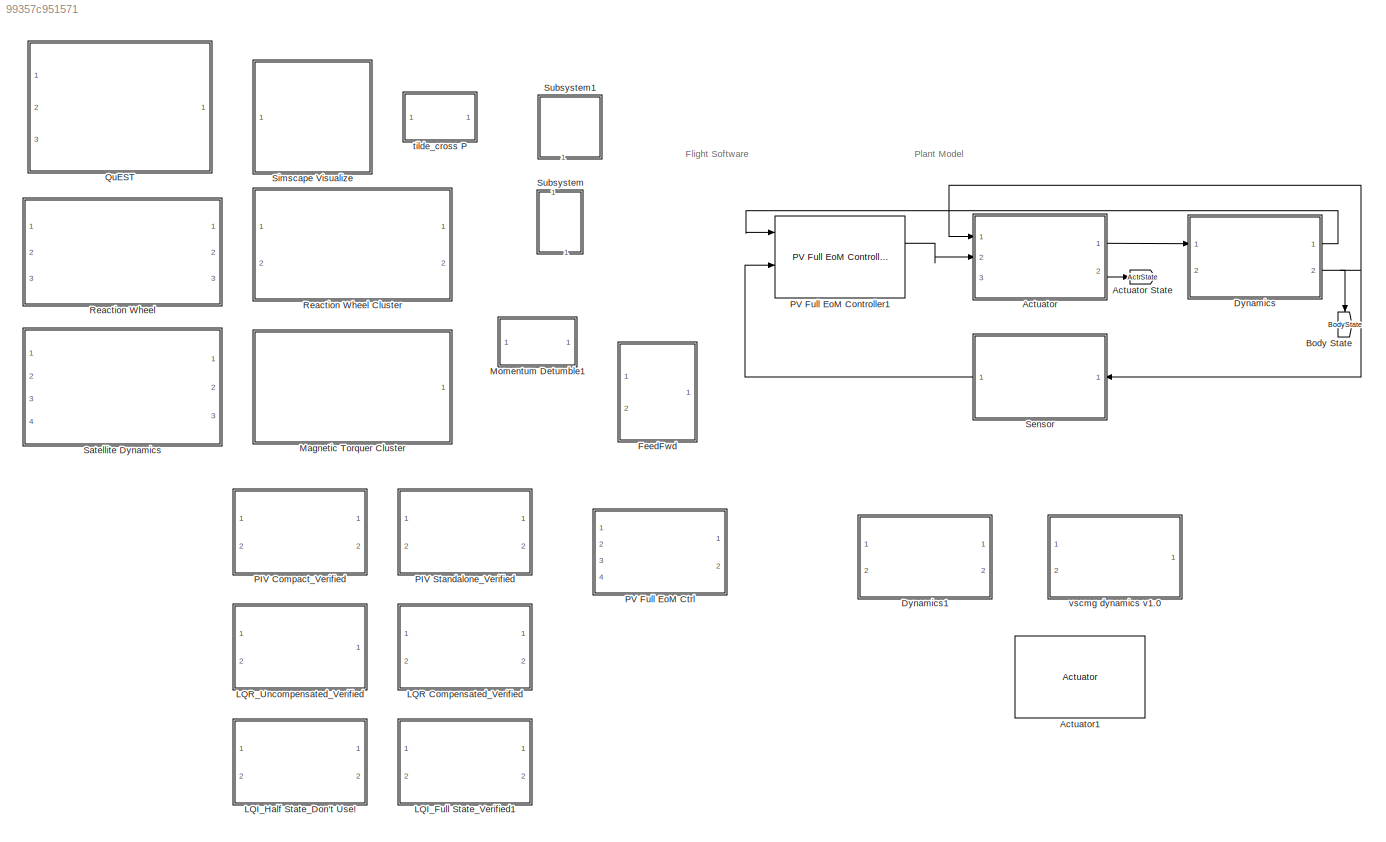
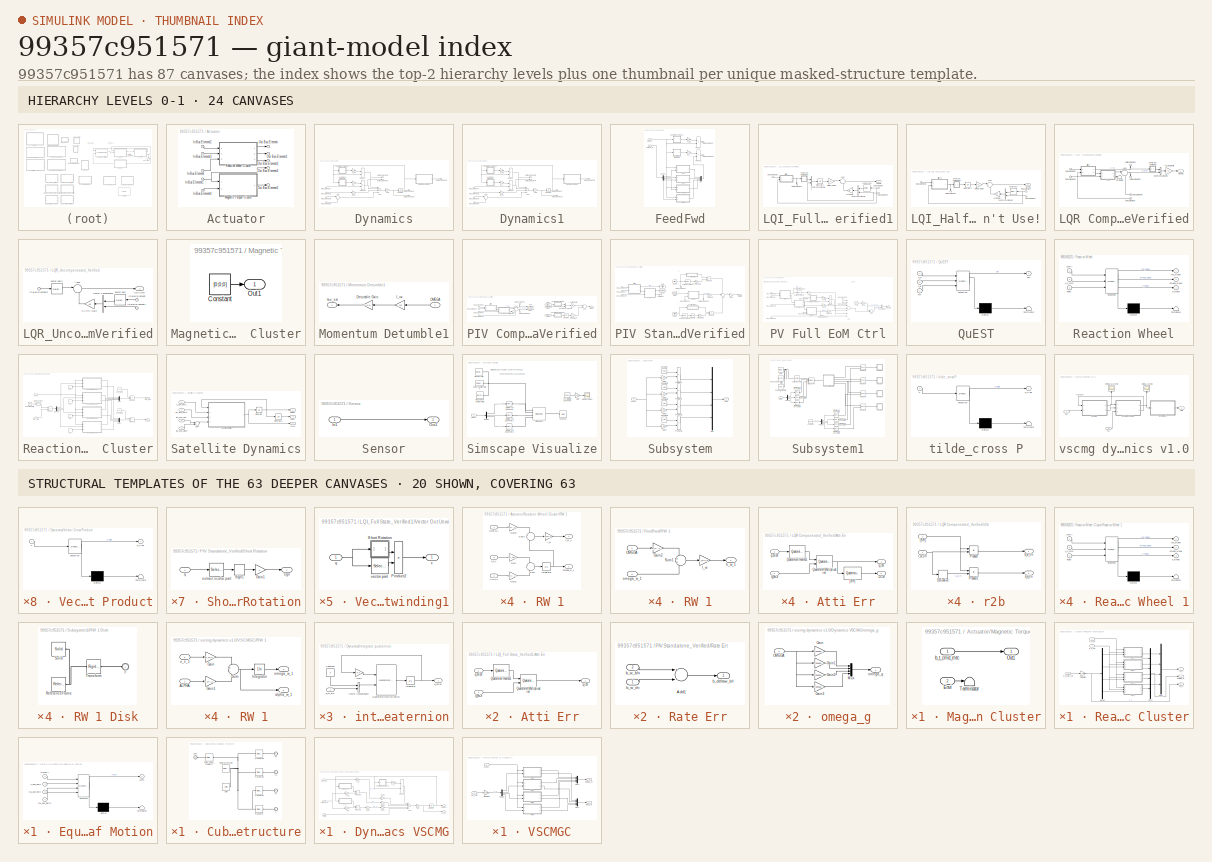
[diagram: thumbnail index - top-2 hierarchy levels (24 canvases) + 20 structural-template representatives of the remaining 63 canvases]
MODEL slx_99357c951571
KIND library
CONFIG AbsTol = auto
CONFIG EnableMultiTasking = off
CONFIG FixedStep = auto
CONFIG MaxStep = auto
CONFIG MinStep = auto
CONFIG RelTol = 1e-3
CONFIG SampleTimeConstraint = Unconstrained
CONFIG Solver = VariableStepAuto
CONFIG SolverName = VariableStepAuto
CONFIG StartTime = 0.0
CONFIG StopTime = 10.0
BLOCK [SubSystem] Actuator
  Ports = [3, 2]
  RequestExecContextInheritance = off
BLOCK [Goto] Actuator State
  GotoTag = ActrState
BLOCK [Inport] Actuator/In Bus Element
  IconDisplay = Port number
  Port = 2
BLOCK [Inport] Actuator/In Bus Element1
  IconDisplay = Port number
  Port = 2
BLOCK [Inport] Actuator/In Bus Element2
  IconDisplay = Port number
BLOCK [Inport] Actuator/In Bus Element3
  IconDisplay = Port number
BLOCK [Inport] Actuator/In Bus Element4
  IconDisplay = Port number
  Port = 3
BLOCK [SubSystem] Actuator/Magnetic Torquer Cluster
  Ports = [2, 1]
  RequestExecContextInheritance = off
BLOCK [Inport] Actuator/Magnetic Torquer Cluster/Envi
  IconDisplay = Port number
  Port = 2
BLOCK [Outport] Actuator/Magnetic Torquer Cluster/Out1
  IconDisplay = Port number
BLOCK [Terminator] Actuator/Magnetic Torquer Cluster/Terminator
BLOCK [Inport] Actuator/Magnetic Torquer Cluster/b_t_cmd_mtc
  IconDisplay = Port number
BLOCK [Outport] Actuator/Out Bus Element
  IconDisplay = Port number
BLOCK [Outport] Actuator/Out Bus Element1
  IconDisplay = Port number
BLOCK [Outport] Actuator/Out Bus Element2
  IconDisplay = Port number
BLOCK [Outport] Actuator/Out Bus Element3
  IconDisplay = Port number
  Port = 2
BLOCK [Outport] Actuator/Out Bus Element4
  IconDisplay = Port number
  Port = 2
BLOCK [SubSystem] Actuator/Reaction Wheel Cluster
  Ports = [3, 3]
  RequestExecContextInheritance = off
BLOCK [Demux] Actuator/Reaction Wheel Cluster/Demux
  DisplayOption = bar
  Ports = [1, 4]
BLOCK [Gain] Actuator/Reaction Wheel Cluster/Distri Mtx2
  Gain = D_distri
  Multiplication = Matrix(K*u)
  OutDataTypeStr = Inherit: Inherit via internal rule
  ParamDataTypeStr = Inherit: Inherit via internal rule
  SaturateOnIntegerOverflow = off
BLOCK [Mux] Actuator/Reaction Wheel Cluster/Mux1
  DisplayOption = bar
  Ports = [4, 1]
BLOCK [Mux] Actuator/Reaction Wheel Cluster/Mux2
  DisplayOption = bar
  Ports = [4, 1]
BLOCK [SubSystem] Actuator/Reaction Wheel Cluster/RW 1
  Ports = [3, 2]
  RequestExecContextInheritance = off
BLOCK [Inport] Actuator/Reaction Wheel Cluster/RW 1/ALPHA
  IconDisplay = Port number
  Port = 2
BLOCK [Gain] Actuator/Reaction Wheel Cluster/RW 1/Gain
  Gain = 1/I_w(1,1)
  OutDataTypeStr = Inherit: Inherit via internal rule
  ParamDataTypeStr = Inherit: Inherit via internal rule
  SaturateOnIntegerOverflow = off
BLOCK [Gain] Actuator/Reaction Wheel Cluster/RW 1/Gain1
  Gain = G_s(:,1).'
  Multiplication = Matrix(K*u)
  OutDataTypeStr = Inherit: Inherit via internal rule
  ParamDataTypeStr = Inherit: Inherit via internal rule
  SaturateOnIntegerOverflow = off
BLOCK [Gain] Actuator/Reaction Wheel Cluster/RW 1/Gain2
  Gain = G_s(:,1).'
  Multiplication = Matrix(K*u)
  OutDataTypeStr = Inherit: Inherit via internal rule
  ParamDataTypeStr = Inherit: Inherit via internal rule
  SaturateOnIntegerOverflow = off
BLOCK [Gain] Actuator/Reaction Wheel Cluster/RW 1/I_w
  Gain = I_w(1,1)
  OutDataTypeStr = Inherit: Inherit via internal rule
  ParamDataTypeStr = Inherit: Inherit via internal rule
  SaturateOnIntegerOverflow = off
BLOCK [Integrator] Actuator/Reaction Wheel Cluster/RW 1/Integrator
  Ports = [1, 1]
BLOCK [Inport] Actuator/Reaction Wheel Cluster/RW 1/OMEGA
  IconDisplay = Port number
BLOCK [Sum] Actuator/Reaction Wheel Cluster/RW 1/Sum
  IconShape = round
  InputSameDT = off
  Inputs = +-
  OutDataTypeStr = Inherit: Inherit via internal rule
  Ports = [2, 1]
  SaturateOnIntegerOverflow = off
BLOCK [Sum] Actuator/Reaction Wheel Cluster/RW 1/Sum1
  IconShape = round
  InputSameDT = off
  OutDataTypeStr = Inherit: Inherit via internal rule
  Ports = [2, 1]
  SaturateOnIntegerOverflow = off
BLOCK [Outport] Actuator/Reaction Wheel Cluster/RW 1/h_w_1
  IconDisplay = Port number
BLOCK [Outport] Actuator/Reaction Wheel Cluster/RW 1/omega_w_1
  IconDisplay = Port number
  Port = 2
BLOCK [Inport] Actuator/Reaction Wheel Cluster/RW 1/u_s_1
  IconDisplay = Port number
  Port = 3
BLOCK [SubSystem] Actuator/Reaction Wheel Cluster/RW 2
  Ports = [3, 2]
  RequestExecContextInheritance = off
BLOCK [Inport] Actuator/Reaction Wheel Cluster/RW 2/ALPHA
  IconDisplay = Port number
  Port = 2
BLOCK [Gain] Actuator/Reaction Wheel Cluster/RW 2/Gain
  Gain = 1/I_w(1,2)
  OutDataTypeStr = Inherit: Inherit via internal rule
  ParamDataTypeStr = Inherit: Inherit via internal rule
  SaturateOnIntegerOverflow = off
BLOCK [Gain] Actuator/Reaction Wheel Cluster/RW 2/Gain1
  Gain = G_s(:,2).'
  Multiplication = Matrix(K*u)
  OutDataTypeStr = Inherit: Inherit via internal rule
  ParamDataTypeStr = Inherit: Inherit via internal rule
  SaturateOnIntegerOverflow = off
BLOCK [Gain] Actuator/Reaction Wheel Cluster/RW 2/Gain2
  Gain = G_s(:,2).'
  Multiplication = Matrix(K*u)
  OutDataTypeStr = Inherit: Inherit via internal rule
  ParamDataTypeStr = Inherit: Inherit via internal rule
  SaturateOnIntegerOverflow = off
BLOCK [Gain] Actuator/Reaction Wheel Cluster/RW 2/I_w
  Gain = I_w(1,2)
  OutDataTypeStr = Inherit: Inherit via internal rule
  ParamDataTypeStr = Inherit: Inherit via internal rule
  SaturateOnIntegerOverflow = off
BLOCK [Integrator] Actuator/Reaction Wheel Cluster/RW 2/Integrator
  Ports = [1, 1]
BLOCK [Inport] Actuator/Reaction Wheel Cluster/RW 2/OMEGA
  IconDisplay = Port number
BLOCK [Sum] Actuator/Reaction Wheel Cluster/RW 2/Sum
  IconShape = round
  InputSameDT = off
  Inputs = +-
  OutDataTypeStr = Inherit: Inherit via internal rule
  Ports = [2, 1]
  SaturateOnIntegerOverflow = off
BLOCK [Sum] Actuator/Reaction Wheel Cluster/RW 2/Sum1
  IconShape = round
  InputSameDT = off
  OutDataTypeStr = Inherit: Inherit via internal rule
  Ports = [2, 1]
  SaturateOnIntegerOverflow = off
BLOCK [Outport] Actuator/Reaction Wheel Cluster/RW 2/h_w_2
  IconDisplay = Port number
BLOCK [Outport] Actuator/Reaction Wheel Cluster/RW 2/omega_w_2
  IconDisplay = Port number
  Port = 2
BLOCK [Inport] Actuator/Reaction Wheel Cluster/RW 2/u_s_2
  IconDisplay = Port number
  Port = 3
BLOCK [SubSystem] Actuator/Reaction Wheel Cluster/RW 3
  Ports = [3, 2]
  RequestExecContextInheritance = off
BLOCK [Inport] Actuator/Reaction Wheel Cluster/RW 3/ALPHA
  IconDisplay = Port number
  Port = 2
BLOCK [Gain] Actuator/Reaction Wheel Cluster/RW 3/Gain
  Gain = 1/I_w(1,3)
  OutDataTypeStr = Inherit: Inherit via internal rule
  ParamDataTypeStr = Inherit: Inherit via internal rule
  SaturateOnIntegerOverflow = off
BLOCK [Gain] Actuator/Reaction Wheel Cluster/RW 3/Gain1
  Gain = G_s(:,3).'
  Multiplication = Matrix(K*u)
  OutDataTypeStr = Inherit: Inherit via internal rule
  ParamDataTypeStr = Inherit: Inherit via internal rule
  SaturateOnIntegerOverflow = off
BLOCK [Gain] Actuator/Reaction Wheel Cluster/RW 3/Gain2
  Gain = G_s(:,3).'
  Multiplication = Matrix(K*u)
  OutDataTypeStr = Inherit: Inherit via internal rule
  ParamDataTypeStr = Inherit: Inherit via internal rule
  SaturateOnIntegerOverflow = off
BLOCK [Gain] Actuator/Reaction Wheel Cluster/RW 3/I_w
  Gain = I_w(1,3)
  OutDataTypeStr = Inherit: Inherit via internal rule
  ParamDataTypeStr = Inherit: Inherit via internal rule
  SaturateOnIntegerOverflow = off
BLOCK [Integrator] Actuator/Reaction Wheel Cluster/RW 3/Integrator
  Ports = [1, 1]
BLOCK [Inport] Actuator/Reaction Wheel Cluster/RW 3/OMEGA
  IconDisplay = Port number
BLOCK [Sum] Actuator/Reaction Wheel Cluster/RW 3/Sum
  IconShape = round
  InputSameDT = off
  Inputs = +-
  OutDataTypeStr = Inherit: Inherit via internal rule
  Ports = [2, 1]
  SaturateOnIntegerOverflow = off
BLOCK [Sum] Actuator/Reaction Wheel Cluster/RW 3/Sum1
  IconShape = round
  InputSameDT = off
  OutDataTypeStr = Inherit: Inherit via internal rule
  Ports = [2, 1]
  SaturateOnIntegerOverflow = off
BLOCK [Outport] Actuator/Reaction Wheel Cluster/RW 3/h_w_3
  IconDisplay = Port number
BLOCK [Outport] Actuator/Reaction Wheel Cluster/RW 3/omega_w_3
  IconDisplay = Port number
  Port = 2
BLOCK [Inport] Actuator/Reaction Wheel Cluster/RW 3/u_s_3
  IconDisplay = Port number
  Port = 3
BLOCK [SubSystem] Actuator/Reaction Wheel Cluster/RW 4
  Ports = [3, 2]
  RequestExecContextInheritance = off
BLOCK [Inport] Actuator/Reaction Wheel Cluster/RW 4/ALPHA
  IconDisplay = Port number
  Port = 2
BLOCK [Gain] Actuator/Reaction Wheel Cluster/RW 4/Gain
  Gain = 1/I_w(1,4)
  OutDataTypeStr = Inherit: Inherit via internal rule
  ParamDataTypeStr = Inherit: Inherit via internal rule
  SaturateOnIntegerOverflow = off
BLOCK [Gain] Actuator/Reaction Wheel Cluster/RW 4/Gain1
  Gain = G_s(:,4).'
  Multiplication = Matrix(K*u)
  OutDataTypeStr = Inherit: Inherit via internal rule
  ParamDataTypeStr = Inherit: Inherit via internal rule
  SaturateOnIntegerOverflow = off
BLOCK [Gain] Actuator/Reaction Wheel Cluster/RW 4/Gain2
  Gain = G_s(:,4).'
  Multiplication = Matrix(K*u)
  OutDataTypeStr = Inherit: Inherit via internal rule
  ParamDataTypeStr = Inherit: Inherit via internal rule
  SaturateOnIntegerOverflow = off
BLOCK [Gain] Actuator/Reaction Wheel Cluster/RW 4/I_w
  Gain = I_w(1,4)
  OutDataTypeStr = Inherit: Inherit via internal rule
  ParamDataTypeStr = Inherit: Inherit via internal rule
  SaturateOnIntegerOverflow = off
BLOCK [Integrator] Actuator/Reaction Wheel Cluster/RW 4/Integrator
  Ports = [1, 1]
BLOCK [Inport] Actuator/Reaction Wheel Cluster/RW 4/OMEGA
  IconDisplay = Port number
BLOCK [Sum] Actuator/Reaction Wheel Cluster/RW 4/Sum
  IconShape = round
  InputSameDT = off
  Inputs = +-
  OutDataTypeStr = Inherit: Inherit via internal rule
  Ports = [2, 1]
  SaturateOnIntegerOverflow = off
BLOCK [Sum] Actuator/Reaction Wheel Cluster/RW 4/Sum1
  IconShape = round
  InputSameDT = off
  OutDataTypeStr = Inherit: Inherit via internal rule
  Ports = [2, 1]
  SaturateOnIntegerOverflow = off
BLOCK [Outport] Actuator/Reaction Wheel Cluster/RW 4/h_w_4
  IconDisplay = Port number
BLOCK [Outport] Actuator/Reaction Wheel Cluster/RW 4/omega_w_4
  IconDisplay = Port number
  Port = 2
BLOCK [Inport] Actuator/Reaction Wheel Cluster/RW 4/u_s_4
  IconDisplay = Port number
  Port = 3
BLOCK [Inport] Actuator/Reaction Wheel Cluster/b_a_b//n
  IconDisplay = Port number
  Port = 2
BLOCK [Inport] Actuator/Reaction Wheel Cluster/b_t_cmd_rwc
  IconDisplay = Port number
  Port = 3
BLOCK [Inport] Actuator/Reaction Wheel Cluster/b_w_b//n
  IconDisplay = Port number
BLOCK [Outport] Actuator/Reaction Wheel Cluster/h_s
  IconDisplay = Port number
BLOCK [Outport] Actuator/Reaction Wheel Cluster/omega_w
  IconDisplay = Port number
  Port = 3
BLOCK [Outport] Actuator/Reaction Wheel Cluster/u_s
  IconDisplay = Port number
  Port = 2
BLOCK [Reference] Actuator1  REF=$bdroot/Actuator
  Ports = [3, 2]
  SourceBlock = $bdroot/Actuator
  SourceType = SubSystem
BLOCK [Goto] Body State
  GotoTag = BodyState
BLOCK [SubSystem] Dynamics
  Ports = [2, 2]
  RequestExecContextInheritance = off
BLOCK [Sum] Dynamics/Add
  IconShape = round
  InputSameDT = off
  Inputs = |++
  OutDataTypeStr = Inherit: Inherit via internal rule
  Ports = [2, 1]
  SaturateOnIntegerOverflow = off
BLOCK [Gain] Dynamics/G_s
  Gain = G_s
  Multiplication = Matrix(u*K)
  OutDataTypeStr = Inherit: Inherit via internal rule
  ParamDataTypeStr = Inherit: Inherit via internal rule
  SaturateOnIntegerOverflow = off
BLOCK [Gain] Dynamics/Gain
  Gain = inv(I_rw)
  Multiplication = Matrix(K*u)
  OutDataTypeStr = Inherit: Inherit via internal rule
  ParamDataTypeStr = Inherit: Inherit via internal rule
  SaturateOnIntegerOverflow = off
BLOCK [Gain] Dynamics/Gain1
  Gain = G_s
  Multiplication = Matrix(K*u)
  OutDataTypeStr = Inherit: Inherit via internal rule
  ParamDataTypeStr = Inherit: Inherit via internal rule
  SaturateOnIntegerOverflow = off
BLOCK [Gain] Dynamics/I_RW
  Gain = I_rw
  Multiplication = Matrix(u*K)
  OutDataTypeStr = Inherit: Inherit via internal rule
  ParamDataTypeStr = Inherit: Inherit via internal rule
  SaturateOnIntegerOverflow = off
BLOCK [Inport] Dynamics/In Bus Element
  IconDisplay = Port number
BLOCK [Inport] Dynamics/In Bus Element1
  IconDisplay = Port number
BLOCK [Inport] Dynamics/In Bus Element2
  IconDisplay = Port number
  Port = 2
BLOCK [Inport] Dynamics/In Bus Element3
  IconDisplay = Port number
BLOCK [Integrator] Dynamics/Integrator
  InitialCondition = OMEGA_0
  Ports = [1, 1]
BLOCK [Outport] Dynamics/Out Bus Element
  IconDisplay = Port number
  Port = 2
BLOCK [Outport] Dynamics/Out Bus Element1
  IconDisplay = Port number
  Port = 2
BLOCK [Outport] Dynamics/Out Bus Element2
  IconDisplay = Port number
  Port = 2
BLOCK [Outport] Dynamics/Out Bus Element3
  IconDisplay = Port number
BLOCK [Outport] Dynamics/Out Bus Element4
  IconDisplay = Port number
BLOCK [Product] Dynamics/Product
  InputSameDT = off
  Multiplication = Matrix(*)
  OutDataTypeStr = Inherit: Inherit via internal rule
  Ports = [2, 1]
  RndMeth = Floor
  SaturateOnIntegerOverflow = off
BLOCK [Product] Dynamics/Product1
  InputSameDT = off
  Multiplication = Matrix(*)
  OutDataTypeStr = Inherit: Inherit via internal rule
  Ports = [2, 1]
  RndMeth = Floor
  SaturateOnIntegerOverflow = off
BLOCK [Sum] Dynamics/Sum
  InputSameDT = off
  Inputs = ---+
  OutDataTypeStr = Inherit: Inherit via internal rule
  Ports = [4, 1]
  SaturateOnIntegerOverflow = off
BLOCK [SubSystem] Dynamics/Vector Cross Product
  ErrorFcn = Stateflow.Translate.translate
  PermitHierarchicalResolution = ExplicitOnly
  Ports = [1, 1]
  RequestExecContextInheritance = off
  SFBlockType = MATLAB Function
  TreatAsAtomicUnit = on
BLOCK [Demux] Dynamics/Vector Cross Product/ Demux 
  Outputs = 1
  Ports = [1, 1]
BLOCK [S-Function] Dynamics/Vector Cross Product/ SFunction 
  EnableBusSupport = on
  FunctionName = sf_sfun
  PortCounts = [1 2]
  Ports = [1, 2]
  SFcnIsStateOwnerBlock = off
  SFunctionDeploymentMode = off
  Tag = Stateflow S-Function ADCS_lib 10
BLOCK [Terminator] Dynamics/Vector Cross Product/ Terminator 
BLOCK [Inport] Dynamics/Vector Cross Product/u
  IconDisplay = Port number
BLOCK [Outport] Dynamics/Vector Cross Product/u_tilde
  IconDisplay = Port number
BLOCK [SubSystem] Dynamics/Vector Cross Product1
  ErrorFcn = Stateflow.Translate.translate
  PermitHierarchicalResolution = ExplicitOnly
  Ports = [1, 1]
  RequestExecContextInheritance = off
  SFBlockType = MATLAB Function
  TreatAsAtomicUnit = on
BLOCK [Demux] Dynamics/Vector Cross Product1/ Demux 
  Outputs = 1
  Ports = [1, 1]
BLOCK [S-Function] Dynamics/Vector Cross Product1/ SFunction 
  EnableBusSupport = on
  FunctionName = sf_sfun
  PortCounts = [1 2]
  Ports = [1, 2]
  SFcnIsStateOwnerBlock = off
  SFunctionDeploymentMode = off
  Tag = Stateflow S-Function ADCS_lib 11
BLOCK [Terminator] Dynamics/Vector Cross Product1/ Terminator 
BLOCK [Inport] Dynamics/Vector Cross Product1/u
  IconDisplay = Port number
BLOCK [Outport] Dynamics/Vector Cross Product1/u_tilde
  IconDisplay = Port number
BLOCK [SubSystem] Dynamics/integrate quaternion
  Ports = [1, 1]
  RequestExecContextInheritance = off
BLOCK [Constant] Dynamics/integrate quaternion/Constant
  Value = 0
BLOCK [Gain] Dynamics/integrate quaternion/Gain
  Gain = 0.5
  OutDataTypeStr = Inherit: Inherit via internal rule
  ParamDataTypeStr = Inherit: Inherit via internal rule
  SaturateOnIntegerOverflow = off
BLOCK [Integrator] Dynamics/integrate quaternion/Integrator
  InitialCondition = quat_0
  Ports = [1, 1]
BLOCK [Reference] Dynamics/integrate quaternion/Quaternion Multiplication  REF=aerolibutil/Quaternion
Multiplication
  Ports = [2, 1]
  SourceBlock = aerolibutil/Quaternion\nMultiplication
  SourceProductBaseCode = AE
  SourceProductName = Aerospace Blockset
  SourceType = Quaternion Multiplication
BLOCK [Concatenate] Dynamics/integrate quaternion/Vector Concatenate
  Ports = [2, 1]
BLOCK [Inport] Dynamics/integrate quaternion/b_w_b//n
  IconDisplay = Port number
BLOCK [Outport] Dynamics/integrate quaternion/q_eci2b
  IconDisplay = Port number
BLOCK [SubSystem] Dynamics1
  AncestorBlock = ADCS_lib/Dynamics
  Ports = [2, 2]
  RequestExecContextInheritance = off
BLOCK [Sum] Dynamics1/Add
  IconShape = round
  InputSameDT = off
  Inputs = |++
  OutDataTypeStr = Inherit: Inherit via internal rule
  Ports = [2, 1]
  SaturateOnIntegerOverflow = off
BLOCK [Gain] Dynamics1/G_s
  Gain = G_s
  Multiplication = Matrix(u*K)
  OutDataTypeStr = Inherit: Inherit via internal rule
  ParamDataTypeStr = Inherit: Inherit via internal rule
  SaturateOnIntegerOverflow = off
BLOCK [Gain] Dynamics1/Gain
  Gain = inv(I_rw)
  Multiplication = Matrix(K*u)
  OutDataTypeStr = Inherit: Inherit via internal rule
  ParamDataTypeStr = Inherit: Inherit via internal rule
  SaturateOnIntegerOverflow = off
BLOCK [Gain] Dynamics1/Gain1
  Gain = G_s
  Multiplication = Matrix(K*u)
  OutDataTypeStr = Inherit: Inherit via internal rule
  ParamDataTypeStr = Inherit: Inherit via internal rule
  SaturateOnIntegerOverflow = off
BLOCK [Gain] Dynamics1/I_RW
  Gain = I_rw
  Multiplication = Matrix(u*K)
  OutDataTypeStr = Inherit: Inherit via internal rule
  ParamDataTypeStr = Inherit: Inherit via internal rule
  SaturateOnIntegerOverflow = off
BLOCK [Inport] Dynamics1/In Bus Element
  IconDisplay = Port number
BLOCK [Inport] Dynamics1/In Bus Element1
  IconDisplay = Port number
BLOCK [Inport] Dynamics1/In Bus Element2
  IconDisplay = Port number
  Port = 2
BLOCK [Inport] Dynamics1/In Bus Element3
  IconDisplay = Port number
BLOCK [Integrator] Dynamics1/Integrator
  InitialCondition = OMEGA_0
  Ports = [1, 1]
BLOCK [Outport] Dynamics1/Out Bus Element
  IconDisplay = Port number
  Port = 2
BLOCK [Outport] Dynamics1/Out Bus Element1
  IconDisplay = Port number
  Port = 2
BLOCK [Outport] Dynamics1/Out Bus Element2
  IconDisplay = Port number
  Port = 2
BLOCK [Outport] Dynamics1/Out Bus Element3
  IconDisplay = Port number
BLOCK [Outport] Dynamics1/Out Bus Element4
  IconDisplay = Port number
BLOCK [Product] Dynamics1/Product
  InputSameDT = off
  Multiplication = Matrix(*)
  OutDataTypeStr = Inherit: Inherit via internal rule
  Ports = [2, 1]
  RndMeth = Floor
  SaturateOnIntegerOverflow = off
BLOCK [Product] Dynamics1/Product1
  InputSameDT = off
  Multiplication = Matrix(*)
  OutDataTypeStr = Inherit: Inherit via internal rule
  Ports = [2, 1]
  RndMeth = Floor
  SaturateOnIntegerOverflow = off
BLOCK [Sum] Dynamics1/Sum
  InputSameDT = off
  Inputs = ---+
  OutDataTypeStr = Inherit: Inherit via internal rule
  Ports = [4, 1]
  SaturateOnIntegerOverflow = off
BLOCK [SubSystem] Dynamics1/Vector Cross Product
  ErrorFcn = Stateflow.Translate.translate
  PermitHierarchicalResolution = ExplicitOnly
  Ports = [1, 1]
  RequestExecContextInheritance = off
  SFBlockType = MATLAB Function
  TreatAsAtomicUnit = on
BLOCK [Demux] Dynamics1/Vector Cross Product/ Demux 
  Outputs = 1
  Ports = [1, 1]
BLOCK [S-Function] Dynamics1/Vector Cross Product/ SFunction 
  EnableBusSupport = off
  FunctionName = sf_sfun
  PortCounts = [1 2]
  Ports = [1, 2]
  SFcnIsStateOwnerBlock = off
  SFunctionDeploymentMode = off
  Tag = Stateflow S-Function ADCS_lib 9
BLOCK [Terminator] Dynamics1/Vector Cross Product/ Terminator 
BLOCK [Inport] Dynamics1/Vector Cross Product/u
  IconDisplay = Port number
BLOCK [Outport] Dynamics1/Vector Cross Product/u_tilde
  IconDisplay = Port number
BLOCK [SubSystem] Dynamics1/Vector Cross Product1
  ErrorFcn = Stateflow.Translate.translate
  PermitHierarchicalResolution = ExplicitOnly
  Ports = [1, 1]
  RequestExecContextInheritance = off
  SFBlockType = MATLAB Function
  TreatAsAtomicUnit = on
BLOCK [Demux] Dynamics1/Vector Cross Product1/ Demux 
  Outputs = 1
  Ports = [1, 1]
BLOCK [S-Function] Dynamics1/Vector Cross Product1/ SFunction 
  EnableBusSupport = off
  FunctionName = sf_sfun
  PortCounts = [1 2]
  Ports = [1, 2]
  SFcnIsStateOwnerBlock = off
  SFunctionDeploymentMode = off
  Tag = Stateflow S-Function ADCS_lib 12
BLOCK [Terminator] Dynamics1/Vector Cross Product1/ Terminator 
BLOCK [Inport] Dynamics1/Vector Cross Product1/u
  IconDisplay = Port number
BLOCK [Outport] Dynamics1/Vector Cross Product1/u_tilde
  IconDisplay = Port number
BLOCK [SubSystem] Dynamics1/integrate quaternion
  Ports = [1, 1]
  RequestExecContextInheritance = off
BLOCK [Constant] Dynamics1/integrate quaternion/Constant
  Value = 0
BLOCK [Gain] Dynamics1/integrate quaternion/Gain
  Gain = 0.5
  OutDataTypeStr = Inherit: Inherit via internal rule
  ParamDataTypeStr = Inherit: Inherit via internal rule
  SaturateOnIntegerOverflow = off
BLOCK [Integrator] Dynamics1/integrate quaternion/Integrator
  InitialCondition = quat_0
  Ports = [1, 1]
BLOCK [Reference] Dynamics1/integrate quaternion/Quaternion Multiplication  REF=aerolibutil/Quaternion
Multiplication
  Ports = [2, 1]
  SourceBlock = aerolibutil/Quaternion\nMultiplication
  SourceProductBaseCode = AE
  SourceProductName = Aerospace Blockset
  SourceType = Quaternion Multiplication
BLOCK [Concatenate] Dynamics1/integrate quaternion/Vector Concatenate
  Ports = [2, 1]
BLOCK [Inport] Dynamics1/integrate quaternion/b_w_b//n
  IconDisplay = Port number
BLOCK [Outport] Dynamics1/integrate quaternion/q_eci2b
  IconDisplay = Port number
BLOCK [SubSystem] FeedFwd
  Ports = [2, 1]
  RequestExecContextInheritance = off
BLOCK [Demux] FeedFwd/Demux
  DisplayOption = bar
  Ports = [1, 4]
BLOCK [Gain] FeedFwd/G_s
  Gain = G_s
  Multiplication = Matrix(u*K)
  OutDataTypeStr = Inherit: Inherit via internal rule
  ParamDataTypeStr = Inherit: Inherit via internal rule
  SaturateOnIntegerOverflow = off
BLOCK [Gain] FeedFwd/I_RW
  Gain = I_rw
  Multiplication = Matrix(u*K)
  OutDataTypeStr = Inherit: Inherit via internal rule
  ParamDataTypeStr = Inherit: Inherit via internal rule
  SaturateOnIntegerOverflow = off
BLOCK [Mux] FeedFwd/Mux
  DisplayOption = bar
  Ports = [4, 1]
BLOCK [Inport] FeedFwd/OMEGA
  IconDisplay = Port number
BLOCK [Outport] FeedFwd/Out Bus Element
  IconDisplay = Port number
BLOCK [Outport] FeedFwd/Out Bus Element1
  IconDisplay = Port number
BLOCK [Product] FeedFwd/Product
  InputSameDT = off
  Multiplication = Matrix(*)
  OutDataTypeStr = Inherit: Inherit via internal rule
  Ports = [2, 1]
  RndMeth = Floor
  SaturateOnIntegerOverflow = off
BLOCK [Product] FeedFwd/Product1
  InputSameDT = off
  Multiplication = Matrix(*)
  OutDataTypeStr = Inherit: Inherit via internal rule
  Ports = [2, 1]
  RndMeth = Floor
  SaturateOnIntegerOverflow = off
BLOCK [SubSystem] FeedFwd/RW 1
  Ports = [2, 1]
  RequestExecContextInheritance = off
BLOCK [Gain] FeedFwd/RW 1/Gain2
  Gain = G_s(:,1).'
  Multiplication = Matrix(K*u)
  OutDataTypeStr = Inherit: Inherit via internal rule
  ParamDataTypeStr = Inherit: Inherit via internal rule
  SaturateOnIntegerOverflow = off
BLOCK [Gain] FeedFwd/RW 1/I_w
  Gain = I_w(1,1)
  OutDataTypeStr = Inherit: Inherit via internal rule
  ParamDataTypeStr = Inherit: Inherit via internal rule
  SaturateOnIntegerOverflow = off
BLOCK [Inport] FeedFwd/RW 1/OMEGA
  IconDisplay = Port number
BLOCK [Sum] FeedFwd/RW 1/Sum1
  IconShape = round
  InputSameDT = off
  OutDataTypeStr = Inherit: Inherit via internal rule
  Ports = [2, 1]
  SaturateOnIntegerOverflow = off
BLOCK [Outport] FeedFwd/RW 1/h_w_1
  IconDisplay = Port number
BLOCK [Inport] FeedFwd/RW 1/omega_w_1
  IconDisplay = Port number
  Port = 2
BLOCK [SubSystem] FeedFwd/RW 2
  Ports = [2, 1]
  RequestExecContextInheritance = off
BLOCK [Gain] FeedFwd/RW 2/Gain2
  Gain = G_s(:,1).'
  Multiplication = Matrix(K*u)
  OutDataTypeStr = Inherit: Inherit via internal rule
  ParamDataTypeStr = Inherit: Inherit via internal rule
  SaturateOnIntegerOverflow = off
BLOCK [Gain] FeedFwd/RW 2/I_w
  Gain = I_w(1,1)
  OutDataTypeStr = Inherit: Inherit via internal rule
  ParamDataTypeStr = Inherit: Inherit via internal rule
  SaturateOnIntegerOverflow = off
BLOCK [Inport] FeedFwd/RW 2/OMEGA
  IconDisplay = Port number
BLOCK [Sum] FeedFwd/RW 2/Sum1
  IconShape = round
  InputSameDT = off
  OutDataTypeStr = Inherit: Inherit via internal rule
  Ports = [2, 1]
  SaturateOnIntegerOverflow = off
BLOCK [Outport] FeedFwd/RW 2/h_w_1
  IconDisplay = Port number
BLOCK [Inport] FeedFwd/RW 2/omega_w_1
  IconDisplay = Port number
  Port = 2
BLOCK [SubSystem] FeedFwd/RW 3
  Ports = [2, 1]
  RequestExecContextInheritance = off
BLOCK [Gain] FeedFwd/RW 3/Gain2
  Gain = G_s(:,1).'
  Multiplication = Matrix(K*u)
  OutDataTypeStr = Inherit: Inherit via internal rule
  ParamDataTypeStr = Inherit: Inherit via internal rule
  SaturateOnIntegerOverflow = off
BLOCK [Gain] FeedFwd/RW 3/I_w
  Gain = I_w(1,1)
  OutDataTypeStr = Inherit: Inherit via internal rule
  ParamDataTypeStr = Inherit: Inherit via internal rule
  SaturateOnIntegerOverflow = off
BLOCK [Inport] FeedFwd/RW 3/OMEGA
  IconDisplay = Port number
BLOCK [Sum] FeedFwd/RW 3/Sum1
  IconShape = round
  InputSameDT = off
  OutDataTypeStr = Inherit: Inherit via internal rule
  Ports = [2, 1]
  SaturateOnIntegerOverflow = off
BLOCK [Outport] FeedFwd/RW 3/h_w_1
  IconDisplay = Port number
BLOCK [Inport] FeedFwd/RW 3/omega_w_1
  IconDisplay = Port number
  Port = 2
BLOCK [SubSystem] FeedFwd/RW 4
  Ports = [2, 1]
  RequestExecContextInheritance = off
BLOCK [Gain] FeedFwd/RW 4/Gain2
  Gain = G_s(:,1).'
  Multiplication = Matrix(K*u)
  OutDataTypeStr = Inherit: Inherit via internal rule
  ParamDataTypeStr = Inherit: Inherit via internal rule
  SaturateOnIntegerOverflow = off
BLOCK [Gain] FeedFwd/RW 4/I_w
  Gain = I_w(1,1)
  OutDataTypeStr = Inherit: Inherit via internal rule
  ParamDataTypeStr = Inherit: Inherit via internal rule
  SaturateOnIntegerOverflow = off
BLOCK [Inport] FeedFwd/RW 4/OMEGA
  IconDisplay = Port number
BLOCK [Sum] FeedFwd/RW 4/Sum1
  IconShape = round
  InputSameDT = off
  OutDataTypeStr = Inherit: Inherit via internal rule
  Ports = [2, 1]
  SaturateOnIntegerOverflow = off
BLOCK [Outport] FeedFwd/RW 4/h_w_1
  IconDisplay = Port number
BLOCK [Inport] FeedFwd/RW 4/omega_w_1
  IconDisplay = Port number
  Port = 2
BLOCK [SubSystem] FeedFwd/Vector Cross Product
  ErrorFcn = Stateflow.Translate.translate
  PermitHierarchicalResolution = ExplicitOnly
  Ports = [1, 1]
  RequestExecContextInheritance = off
  SFBlockType = MATLAB Function
  TreatAsAtomicUnit = on
BLOCK [Demux] FeedFwd/Vector Cross Product/ Demux 
  Outputs = 1
  Ports = [1, 1]
BLOCK [S-Function] FeedFwd/Vector Cross Product/ SFunction 
  EnableBusSupport = on
  FunctionName = sf_sfun
  PortCounts = [1 2]
  Ports = [1, 2]
  SFcnIsStateOwnerBlock = off
  SFunctionDeploymentMode = off
  Tag = Stateflow S-Function ADCS_lib 13
BLOCK [Terminator] FeedFwd/Vector Cross Product/ Terminator 
BLOCK [Inport] FeedFwd/Vector Cross Product/u
  IconDisplay = Port number
BLOCK [Outport] FeedFwd/Vector Cross Product/u_tilde
  IconDisplay = Port number
BLOCK [SubSystem] FeedFwd/Vector Cross Product1
  ErrorFcn = Stateflow.Translate.translate
  PermitHierarchicalResolution = ExplicitOnly
  Ports = [1, 1]
  RequestExecContextInheritance = off
  SFBlockType = MATLAB Function
  TreatAsAtomicUnit = on
BLOCK [Demux] FeedFwd/Vector Cross Product1/ Demux 
  Outputs = 1
  Ports = [1, 1]
BLOCK [S-Function] FeedFwd/Vector Cross Product1/ SFunction 
  EnableBusSupport = on
  FunctionName = sf_sfun
  PortCounts = [1 2]
  Ports = [1, 2]
  SFcnIsStateOwnerBlock = off
  SFunctionDeploymentMode = off
  Tag = Stateflow S-Function ADCS_lib 15
BLOCK [Terminator] FeedFwd/Vector Cross Product1/ Terminator 
BLOCK [Inport] FeedFwd/Vector Cross Product1/u
  IconDisplay = Port number
BLOCK [Outport] FeedFwd/Vector Cross Product1/u_tilde
  IconDisplay = Port number
BLOCK [Inport] FeedFwd/omega_w
  IconDisplay = Port number
  Port = 2
BLOCK [SubSystem] LQI_Full State_Verified1
  AncestorBlock = ADCS_lib/Full EoM Controller
  Ports = [2, 2]
  RequestExecContextInheritance = off
BLOCK [Sum] LQI_Full State_Verified1/Add2
  IconShape = round
  InputSameDT = off
  Inputs = |+-
  OutDataTypeStr = Inherit: Inherit via internal rule
  Ports = [2, 1]
  SaturateOnIntegerOverflow = off
BLOCK [SubSystem] LQI_Full State_Verified1/Atti Err
  AncestorBlock = ADCS_lib/PIV/Atti Err
  Ports = [2, 1]
  RequestExecContextInheritance = off
BLOCK [Reference] LQI_Full State_Verified1/Atti Err/Quaternion Inverse1  REF=aerolibutil/Quaternion
Inverse
  Ports = [1, 1]
  SourceBlock = aerolibutil/Quaternion\nInverse
  SourceProductBaseCode = AE
  SourceProductName = Aerospace Blockset
  SourceType = Quaternion Inverse
BLOCK [Reference] LQI_Full State_Verified1/Atti Err/Quaternion Multiplication  REF=aerolibutil/Quaternion
Multiplication
  Ports = [2, 1]
  SourceBlock = aerolibutil/Quaternion\nMultiplication
  SourceProductBaseCode = AE
  SourceProductName = Aerospace Blockset
  SourceType = Quaternion Multiplication
BLOCK [Inport] LQI_Full State_Verified1/Atti Err/q_eci2b
  IconDisplay = Port number
  Port = 2
BLOCK [Inport] LQI_Full State_Verified1/Atti Err/q_eci2r
  IconDisplay = Port number
BLOCK [Outport] LQI_Full State_Verified1/Atti Err/q_r2b
  IconDisplay = Port number
BLOCK [Outport] LQI_Full State_Verified1/CtrlCmd
  IconDisplay = Port number
BLOCK [Inport] LQI_Full State_Verified1/In Bus Element
  IconDisplay = Port number
  Port = 2
BLOCK [Inport] LQI_Full State_Verified1/In Bus Element2
  IconDisplay = Port number
BLOCK [Inport] LQI_Full State_Verified1/In Bus Element7
  IconDisplay = Port number
  Port = 2
BLOCK [Integrator] LQI_Full State_Verified1/Integrator1
  Ports = [1, 1]
BLOCK [Gain] LQI_Full State_Verified1/Kc Ctrl Gain
  Gain = -Kc
  Multiplication = Matrix(K*u)
  OutDataTypeStr = Inherit: Inherit via internal rule
  ParamDataTypeStr = Inherit: Inherit via internal rule
  SaturateOnIntegerOverflow = off
BLOCK [Gain] LQI_Full State_Verified1/Ki Integral Gain
  Gain = Ki
  Multiplication = Matrix(K*u)
  OutDataTypeStr = Inherit: Inherit via internal rule
  ParamDataTypeStr = Inherit: Inherit via internal rule
  SaturateOnIntegerOverflow = off
BLOCK [Outport] LQI_Full State_Verified1/Out Bus Element
  IconDisplay = Port number
  Port = 2
BLOCK [Concatenate] LQI_Full State_Verified1/Vector Concatenate
  Ports = [2, 1]
BLOCK [Concatenate] LQI_Full State_Verified1/Vector Concatenate1
  Ports = [2, 1]
BLOCK [SubSystem] LQI_Full State_Verified1/Vector Out Unwinding1
  Ports = [1, 1]
  RequestExecContextInheritance = off
BLOCK [Product] LQI_Full State_Verified1/Vector Out Unwinding1/Product2
  InputSameDT = off
  OutDataTypeStr = Inherit: Inherit via internal rule
  Ports = [2, 1]
  RndMeth = Floor
  SaturateOnIntegerOverflow = off
BLOCK [SubSystem] LQI_Full State_Verified1/Vector Out Unwinding1/Short Rotation
  Ports = [1, 1]
  RequestExecContextInheritance = off
BLOCK [Gain] LQI_Full State_Verified1/Vector Out Unwinding1/Short Rotation/Gain1
  Gain = -1
  OutDataTypeStr = Inherit: Inherit via internal rule
  ParamDataTypeStr = Inherit: Inherit via internal rule
  SaturateOnIntegerOverflow = off
BLOCK [Signum] LQI_Full State_Verified1/Vector Out Unwinding1/Short Rotation/Sign1
BLOCK [Selector] LQI_Full State_Verified1/Vector Out Unwinding1/Short Rotation/extract scalar part
  IndexOptions = Index vector (dialog)
  Indices = [1]
  InputPortWidth = 4
  OutputSizes = 1
  Ports = [1, 1]
BLOCK [Inport] LQI_Full State_Verified1/Vector Out Unwinding1/Short Rotation/q
  IconDisplay = Port number
BLOCK [Outport] LQI_Full State_Verified1/Vector Out Unwinding1/Short Rotation/sgn
  IconDisplay = Port number
BLOCK [Inport] LQI_Full State_Verified1/Vector Out Unwinding1/q
  IconDisplay = Port number
BLOCK [Selector] LQI_Full State_Verified1/Vector Out Unwinding1/vector part
  IndexOptions = Index vector (dialog)
  Indices = [2 3 4]
  InputPortWidth = 4
  OutputSizes = 1
  Ports = [1, 1]
BLOCK [Outport] LQI_Full State_Verified1/Vector Out Unwinding1/ε
  IconDisplay = Port number
BLOCK [Selector] LQI_Full State_Verified1/vector part1
  IndexOptions = Index vector (dialog)
  Indices = [2 3 4]
  InputPortWidth = 4
  OutputSizes = 1
  Ports = [1, 1]
BLOCK [SubSystem] LQI_Half State_Don't Use!
  AncestorBlock = ADCS_lib/Full EoM Controller
  Ports = [2, 2]
  RequestExecContextInheritance = off
BLOCK [Sum] LQI_Half State_Don't Use!/Add2
  IconShape = round
  InputSameDT = off
  Inputs = |+-
  OutDataTypeStr = Inherit: Inherit via internal rule
  Ports = [2, 1]
  SaturateOnIntegerOverflow = off
BLOCK [SubSystem] LQI_Half State_Don't Use!/Atti Err1
  Ports = [2, 1]
  RequestExecContextInheritance = off
BLOCK [Reference] LQI_Half State_Don't Use!/Atti Err1/Quaternion Inverse1  REF=aerolibutil/Quaternion
Inverse
  Ports = [1, 1]
  SourceBlock = aerolibutil/Quaternion\nInverse
  SourceProductBaseCode = AE
  SourceProductName = Aerospace Blockset
  SourceType = Quaternion Inverse
BLOCK [Reference] LQI_Half State_Don't Use!/Atti Err1/Quaternion Multiplication  REF=aerolibutil/Quaternion
Multiplication
  Ports = [2, 1]
  SourceBlock = aerolibutil/Quaternion\nMultiplication
  SourceProductBaseCode = AE
  SourceProductName = Aerospace Blockset
  SourceType = Quaternion Multiplication
BLOCK [Inport] LQI_Half State_Don't Use!/Atti Err1/q_eci2b
  IconDisplay = Port number
  Port = 2
BLOCK [Inport] LQI_Half State_Don't Use!/Atti Err1/q_eci2r
  IconDisplay = Port number
BLOCK [Outport] LQI_Half State_Don't Use!/Atti Err1/q_r2b
  IconDisplay = Port number
BLOCK [Outport] LQI_Half State_Don't Use!/CtrlCmd
  IconDisplay = Port number
BLOCK [Inport] LQI_Half State_Don't Use!/In Bus Element
  IconDisplay = Port number
  Port = 2
BLOCK [Inport] LQI_Half State_Don't Use!/In Bus Element2
  IconDisplay = Port number
BLOCK [Inport] LQI_Half State_Don't Use!/In Bus Element7
  IconDisplay = Port number
  Port = 2
BLOCK [Integrator] LQI_Half State_Don't Use!/Integrator1
  Ports = [1, 1]
BLOCK [Gain] LQI_Half State_Don't Use!/Kc Ctrl Gain
  Gain = -Kc
  Multiplication = Matrix(K*u)
  OutDataTypeStr = Inherit: Inherit via internal rule
  ParamDataTypeStr = Inherit: Inherit via internal rule
  SaturateOnIntegerOverflow = off
BLOCK [Gain] LQI_Half State_Don't Use!/Ki Integral Gain
  Gain = Ki
  Multiplication = Matrix(K*u)
  OutDataTypeStr = Inherit: Inherit via internal rule
  ParamDataTypeStr = Inherit: Inherit via internal rule
  SaturateOnIntegerOverflow = off
BLOCK [Outport] LQI_Half State_Don't Use!/Out Bus Element
  IconDisplay = Port number
  Port = 2
BLOCK [Concatenate] LQI_Half State_Don't Use!/Vector Concatenate
  Ports = [2, 1]
BLOCK [SubSystem] LQI_Half State_Don't Use!/Vector Out Unwinding2
  Ports = [1, 1]
  RequestExecContextInheritance = off
BLOCK [Product] LQI_Half State_Don't Use!/Vector Out Unwinding2/Product2
  InputSameDT = off
  OutDataTypeStr = Inherit: Inherit via internal rule
  Ports = [2, 1]
  RndMeth = Floor
  SaturateOnIntegerOverflow = off
BLOCK [SubSystem] LQI_Half State_Don't Use!/Vector Out Unwinding2/Short Rotation
  Ports = [1, 1]
  RequestExecContextInheritance = off
BLOCK [Gain] LQI_Half State_Don't Use!/Vector Out Unwinding2/Short Rotation/Gain1
  Gain = -1
  OutDataTypeStr = Inherit: Inherit via internal rule
  ParamDataTypeStr = Inherit: Inherit via internal rule
  SaturateOnIntegerOverflow = off
BLOCK [Signum] LQI_Half State_Don't Use!/Vector Out Unwinding2/Short Rotation/Sign1
BLOCK [Selector] LQI_Half State_Don't Use!/Vector Out Unwinding2/Short Rotation/extract scalar part
  IndexOptions = Index vector (dialog)
  Indices = [1]
  InputPortWidth = 4
  OutputSizes = 1
  Ports = [1, 1]
BLOCK [Inport] LQI_Half State_Don't Use!/Vector Out Unwinding2/Short Rotation/q
  IconDisplay = Port number
BLOCK [Outport] LQI_Half State_Don't Use!/Vector Out Unwinding2/Short Rotation/sgn
  IconDisplay = Port number
BLOCK [Inport] LQI_Half State_Don't Use!/Vector Out Unwinding2/q
  IconDisplay = Port number
BLOCK [Selector] LQI_Half State_Don't Use!/Vector Out Unwinding2/vector part
  IndexOptions = Index vector (dialog)
  Indices = [2 3 4]
  InputPortWidth = 4
  OutputSizes = 1
  Ports = [1, 1]
BLOCK [Outport] LQI_Half State_Don't Use!/Vector Out Unwinding2/ε
  IconDisplay = Port number
BLOCK [Selector] LQI_Half State_Don't Use!/vector part
  IndexOptions = Index vector (dialog)
  Indices = [2 3 4]
  InputPortWidth = 4
  OutputSizes = 1
  Ports = [1, 1]
BLOCK [SubSystem] LQR Compensated_Verified
  AncestorBlock = ADCS_lib/PIV
  Ports = [2, 2]
  RequestExecContextInheritance = off
BLOCK [Sum] LQR Compensated_Verified/Add1
  IconShape = round
  InputSameDT = off
  Inputs = |-+
  OutDataTypeStr = Inherit: Inherit via internal rule
  Ports = [2, 1]
  SaturateOnIntegerOverflow = off
BLOCK [SubSystem] LQR Compensated_Verified/Atti Err
  Ports = [2, 2]
  RequestExecContextInheritance = off
BLOCK [Outport] LQR Compensated_Verified/Atti Err/DCM
  IconDisplay = Port number
  Port = 2
BLOCK [Reference] LQR Compensated_Verified/Atti Err/Quaternion Inverse1  REF=aerolibutil/Quaternion
Inverse
  Ports = [1, 1]
  SourceBlock = aerolibutil/Quaternion\nInverse
  SourceProductBaseCode = AE
  SourceProductName = Aerospace Blockset
  SourceType = Quaternion Inverse
BLOCK [Reference] LQR Compensated_Verified/Atti Err/Quaternion Multiplication  REF=aerolibutil/Quaternion
Multiplication
  Ports = [2, 1]
  SourceBlock = aerolibutil/Quaternion\nMultiplication
  SourceProductBaseCode = AE
  SourceProductName = Aerospace Blockset
  SourceType = Quaternion Multiplication
BLOCK [Reference] LQR Compensated_Verified/Atti Err/[BR]  REF=sharedtransform/Quaternions to 
Direction Cosine Matrix
  Ports = [1, 1]
  SourceBlock = sharedtransform/Quaternions to \nDirection Cosine Matrix
  SourceProductBaseCode = AE
  SourceProductName = Aerospace Blockset
  SourceType = Quaternion2DCM
BLOCK [Inport] LQR Compensated_Verified/Atti Err/q_eci2b
  IconDisplay = Port number
  Port = 2
BLOCK [Inport] LQR Compensated_Verified/Atti Err/q_eci2r
  IconDisplay = Port number
BLOCK [Outport] LQR Compensated_Verified/Atti Err/q_r2b
  IconDisplay = Port number
BLOCK [Outport] LQR Compensated_Verified/CtrlCmd
  IconDisplay = Port number
BLOCK [Inport] LQR Compensated_Verified/In Bus Element
  IconDisplay = Port number
  Port = 2
BLOCK [Inport] LQR Compensated_Verified/In Bus Element1
  IconDisplay = Port number
BLOCK [Inport] LQR Compensated_Verified/In Bus Element4
  IconDisplay = Port number
BLOCK [Inport] LQR Compensated_Verified/In Bus Element7
  IconDisplay = Port number
  Port = 2
BLOCK [Gain] LQR Compensated_Verified/Kc Ctrl Gain Mtx
  Gain = Kc
  Multiplication = Matrix(K*u)
  OutDataTypeStr = Inherit: Inherit via internal rule
  ParamDataTypeStr = Inherit: Inherit via internal rule
  SaturateOnIntegerOverflow = off
BLOCK [Outport] LQR Compensated_Verified/Out Bus Element
  IconDisplay = Port number
  Port = 2
BLOCK [Outport] LQR Compensated_Verified/Out Bus Element1
  IconDisplay = Port number
  Port = 2
BLOCK [Terminator] LQR Compensated_Verified/Terminator
BLOCK [Concatenate] LQR Compensated_Verified/Vector Concatenate
  Ports = [2, 1]
BLOCK [SubSystem] LQR Compensated_Verified/Vector Out Unwinding
  Ports = [1, 1]
  RequestExecContextInheritance = off
BLOCK [Product] LQR Compensated_Verified/Vector Out Unwinding/Product2
  InputSameDT = off
  OutDataTypeStr = Inherit: Inherit via internal rule
  Ports = [2, 1]
  RndMeth = Floor
  SaturateOnIntegerOverflow = off
BLOCK [SubSystem] LQR Compensated_Verified/Vector Out Unwinding/Short Rotation
  Ports = [1, 1]
  RequestExecContextInheritance = off
BLOCK [Gain] LQR Compensated_Verified/Vector Out Unwinding/Short Rotation/Gain1
  Gain = -1
  OutDataTypeStr = Inherit: Inherit via internal rule
  ParamDataTypeStr = Inherit: Inherit via internal rule
  SaturateOnIntegerOverflow = off
BLOCK [Signum] LQR Compensated_Verified/Vector Out Unwinding/Short Rotation/Sign1
BLOCK [Selector] LQR Compensated_Verified/Vector Out Unwinding/Short Rotation/extract scalar part
  IndexOptions = Index vector (dialog)
  Indices = [1]
  InputPortWidth = 4
  OutputSizes = 1
  Ports = [1, 1]
BLOCK [Inport] LQR Compensated_Verified/Vector Out Unwinding/Short Rotation/q
  IconDisplay = Port number
BLOCK [Outport] LQR Compensated_Verified/Vector Out Unwinding/Short Rotation/sgn
  IconDisplay = Port number
BLOCK [Inport] LQR Compensated_Verified/Vector Out Unwinding/q
  IconDisplay = Port number
BLOCK [Selector] LQR Compensated_Verified/Vector Out Unwinding/vector part
  IndexOptions = Index vector (dialog)
  Indices = [2 3 4]
  InputPortWidth = 4
  OutputSizes = 1
  Ports = [1, 1]
BLOCK [Outport] LQR Compensated_Verified/Vector Out Unwinding/ε
  IconDisplay = Port number
BLOCK [SubSystem] LQR Compensated_Verified/r2b
  Ports = [2, 2]
  RequestExecContextInheritance = off
BLOCK [Derivative] LQR Compensated_Verified/r2b/Derivative
BLOCK [Product] LQR Compensated_Verified/r2b/Product
  InputSameDT = off
  Multiplication = Matrix(*)
  OutDataTypeStr = Inherit: Inherit via internal rule
  Ports = [2, 1]
  RndMeth = Floor
  SaturateOnIntegerOverflow = off
BLOCK [Product] LQR Compensated_Verified/r2b/Product1
  InputSameDT = off
  Multiplication = Matrix(*)
  OutDataTypeStr = Inherit: Inherit via internal rule
  Ports = [2, 1]
  RndMeth = Floor
  SaturateOnIntegerOverflow = off
BLOCK [Inport] LQR Compensated_Verified/r2b/[BR]
  IconDisplay = Port number
BLOCK [Outport] LQR Compensated_Verified/r2b/b_a_r//n
  IconDisplay = Port number
  Port = 2
BLOCK [Outport] LQR Compensated_Verified/r2b/b_w_r//n
  IconDisplay = Port number
BLOCK [Inport] LQR Compensated_Verified/r2b/r_w_r//n
  IconDisplay = Port number
  Port = 2
BLOCK [SubSystem] LQR_Uncompensated_Verified
  AncestorBlock = ADCS_lib/LQR
  Ports = [2, 1]
  RequestExecContextInheritance = off
BLOCK [Sum] LQR_Uncompensated_Verified/Add2
  IconShape = round
  InputSameDT = off
  Inputs = |+-
  OutDataTypeStr = Inherit: Inherit via internal rule
  Ports = [2, 1]
  SaturateOnIntegerOverflow = off
BLOCK [Outport] LQR_Uncompensated_Verified/CtrlCmd
  IconDisplay = Port number
BLOCK [Inport] LQR_Uncompensated_Verified/In Bus Element
  IconDisplay = Port number
  Port = 2
BLOCK [Inport] LQR_Uncompensated_Verified/In Bus Element2
  IconDisplay = Port number
BLOCK [Inport] LQR_Uncompensated_Verified/In Bus Element7
  IconDisplay = Port number
  Port = 2
BLOCK [Gain] LQR_Uncompensated_Verified/Kc Ctrl Gain
  Gain = -Kc
  Multiplication = Matrix(K*u)
  OutDataTypeStr = Inherit: Inherit via internal rule
  ParamDataTypeStr = Inherit: Inherit via internal rule
  SaturateOnIntegerOverflow = off
BLOCK [Concatenate] LQR_Uncompensated_Verified/Vector Concatenate
  Ports = [2, 1]
BLOCK [Selector] LQR_Uncompensated_Verified/vector part
  IndexOptions = Index vector (dialog)
  Indices = [2 3 4]
  InputPortWidth = 4
  OutputSizes = 1
  Ports = [1, 1]
BLOCK [Selector] LQR_Uncompensated_Verified/vector part1
  IndexOptions = Index vector (dialog)
  Indices = [2 3 4]
  InputPortWidth = 4
  OutputSizes = 1
  Ports = [1, 1]
BLOCK [SubSystem] Magnetic Torquer Cluster
  Ports = [0, 1]
  RequestExecContextInheritance = off
BLOCK [Constant] Magnetic Torquer Cluster/Constant
  Value = [0;0;0]
BLOCK [Outport] Magnetic Torquer Cluster/Out1
  IconDisplay = Port number
BLOCK [SubSystem] Momentum Detumble1
  Ports = [1, 1]
  RequestExecContextInheritance = off
BLOCK [Gain] Momentum Detumble1/Detumble Gain
  Gain = -[1 0 0;0 1 0;0 0 1]
  Multiplication = Matrix(K*u)
  OutDataTypeStr = Inherit: Inherit via internal rule
  ParamDataTypeStr = Inherit: Inherit via internal rule
  SaturateOnIntegerOverflow = off
BLOCK [Gain] Momentum Detumble1/I_rw
  Gain = I_rw
  Multiplication = Matrix(K*u)
  OutDataTypeStr = Inherit: Inherit via internal rule
  ParamDataTypeStr = Inherit: Inherit via internal rule
  SaturateOnIntegerOverflow = off
BLOCK [Inport] Momentum Detumble1/OMEGA
  IconDisplay = Port number
BLOCK [Outport] Momentum Detumble1/tau_ext
  IconDisplay = Port number
BLOCK [SubSystem] PIV Compact_Verified
  AncestorBlock = ADCS_lib/Full EoM Controller
  Ports = [2, 2]
  RequestExecContextInheritance = off
BLOCK [Sum] PIV Compact_Verified/Add
  InputSameDT = off
  OutDataTypeStr = Inherit: Inherit via internal rule
  Ports = [2, 1]
  SaturateOnIntegerOverflow = off
BLOCK [Sum] PIV Compact_Verified/Add1
  IconShape = round
  InputSameDT = off
  Inputs = |-+
  OutDataTypeStr = Inherit: Inherit via internal rule
  Ports = [2, 1]
  SaturateOnIntegerOverflow = off
BLOCK [SubSystem] PIV Compact_Verified/Atti Err
  Ports = [2, 2]
  RequestExecContextInheritance = off
BLOCK [Outport] PIV Compact_Verified/Atti Err/DCM_[BR]
  IconDisplay = Port number
  Port = 2
BLOCK [Reference] PIV Compact_Verified/Atti Err/Quaternion Inverse1  REF=aerolibutil/Quaternion
Inverse
  Ports = [1, 1]
  SourceBlock = aerolibutil/Quaternion\nInverse
  SourceProductBaseCode = AE
  SourceProductName = Aerospace Blockset
  SourceType = Quaternion Inverse
BLOCK [Reference] PIV Compact_Verified/Atti Err/Quaternion Multiplication  REF=aerolibutil/Quaternion
Multiplication
  Ports = [2, 1]
  SourceBlock = aerolibutil/Quaternion\nMultiplication
  SourceProductBaseCode = AE
  SourceProductName = Aerospace Blockset
  SourceType = Quaternion Multiplication
BLOCK [Reference] PIV Compact_Verified/Atti Err/[BR]  REF=sharedtransform/Quaternions to 
Direction Cosine Matrix
  Ports = [1, 1]
  SourceBlock = sharedtransform/Quaternions to \nDirection Cosine Matrix
  SourceProductBaseCode = AE
  SourceProductName = Aerospace Blockset
  SourceType = Quaternion2DCM
BLOCK [Inport] PIV Compact_Verified/Atti Err/q_eci2b
  IconDisplay = Port number
  Port = 2
BLOCK [Inport] PIV Compact_Verified/Atti Err/q_eci2r
  IconDisplay = Port number
BLOCK [Outport] PIV Compact_Verified/Atti Err/q_r2b
  IconDisplay = Port number
BLOCK [Outport] PIV Compact_Verified/CtrlCmd
  IconDisplay = Port number
BLOCK [From] PIV Compact_Verified/From
  GotoTag = AttiErr
BLOCK [From] PIV Compact_Verified/From1
  GotoTag = RateErr
BLOCK [From] PIV Compact_Verified/From2
  GotoTag = AttiErr
BLOCK [Goto] PIV Compact_Verified/Goto
  GotoTag = AttiErr
BLOCK [Goto] PIV Compact_Verified/Goto1
  GotoTag = RateErr
BLOCK [Inport] PIV Compact_Verified/In Bus Element
  IconDisplay = Port number
  Port = 2
BLOCK [Inport] PIV Compact_Verified/In Bus Element1
  IconDisplay = Port number
BLOCK [Inport] PIV Compact_Verified/In Bus Element4
  IconDisplay = Port number
BLOCK [Inport] PIV Compact_Verified/In Bus Element7
  IconDisplay = Port number
  Port = 2
BLOCK [Gain] PIV Compact_Verified/Integral Gain
  Gain = Ki
  Multiplication = Matrix(K*u)
  OutDataTypeStr = Inherit: Inherit via internal rule
  ParamDataTypeStr = Inherit: Inherit via internal rule
  SaturateOnIntegerOverflow = off
BLOCK [Integrator] PIV Compact_Verified/Integrator
  Ports = [1, 1]
BLOCK [Gain] PIV Compact_Verified/Kc Ctrl Gain Mtx
  Gain = Kc
  Multiplication = Matrix(K*u)
  OutDataTypeStr = Inherit: Inherit via internal rule
  ParamDataTypeStr = Inherit: Inherit via internal rule
  SaturateOnIntegerOverflow = off
BLOCK [Outport] PIV Compact_Verified/Out Bus Element
  IconDisplay = Port number
  Port = 2
BLOCK [Outport] PIV Compact_Verified/Out Bus Element1
  IconDisplay = Port number
  Port = 2
BLOCK [Terminator] PIV Compact_Verified/Terminator
BLOCK [Concatenate] PIV Compact_Verified/Vector Concatenate
  Ports = [2, 1]
BLOCK [SubSystem] PIV Compact_Verified/Vector Out Unwinding
  Ports = [1, 1]
  RequestExecContextInheritance = off
BLOCK [Product] PIV Compact_Verified/Vector Out Unwinding/Product2
  InputSameDT = off
  OutDataTypeStr = Inherit: Inherit via internal rule
  Ports = [2, 1]
  RndMeth = Floor
  SaturateOnIntegerOverflow = off
BLOCK [SubSystem] PIV Compact_Verified/Vector Out Unwinding/Short Rotation
  Ports = [1, 1]
  RequestExecContextInheritance = off
BLOCK [Gain] PIV Compact_Verified/Vector Out Unwinding/Short Rotation/Gain1
  Gain = -1
  OutDataTypeStr = Inherit: Inherit via internal rule
  ParamDataTypeStr = Inherit: Inherit via internal rule
  SaturateOnIntegerOverflow = off
BLOCK [Signum] PIV Compact_Verified/Vector Out Unwinding/Short Rotation/Sign1
BLOCK [Selector] PIV Compact_Verified/Vector Out Unwinding/Short Rotation/extract scalar part
  IndexOptions = Index vector (dialog)
  Indices = [1]
  InputPortWidth = 4
  OutputSizes = 1
  Ports = [1, 1]
BLOCK [Inport] PIV Compact_Verified/Vector Out Unwinding/Short Rotation/q
  IconDisplay = Port number
BLOCK [Outport] PIV Compact_Verified/Vector Out Unwinding/Short Rotation/sgn
  IconDisplay = Port number
BLOCK [Inport] PIV Compact_Verified/Vector Out Unwinding/q
  IconDisplay = Port number
BLOCK [Selector] PIV Compact_Verified/Vector Out Unwinding/vector part
  IndexOptions = Index vector (dialog)
  Indices = [2 3 4]
  InputPortWidth = 4
  OutputSizes = 1
  Ports = [1, 1]
BLOCK [Outport] PIV Compact_Verified/Vector Out Unwinding/ε
  IconDisplay = Port number
BLOCK [SubSystem] PIV Compact_Verified/Vector Out Unwinding1
  Ports = [1, 1]
  RequestExecContextInheritance = off
BLOCK [Product] PIV Compact_Verified/Vector Out Unwinding1/Product2
  InputSameDT = off
  OutDataTypeStr = Inherit: Inherit via internal rule
  Ports = [2, 1]
  RndMeth = Floor
  SaturateOnIntegerOverflow = off
BLOCK [SubSystem] PIV Compact_Verified/Vector Out Unwinding1/Short Rotation
  Ports = [1, 1]
  RequestExecContextInheritance = off
BLOCK [Gain] PIV Compact_Verified/Vector Out Unwinding1/Short Rotation/Gain1
  Gain = -1
  OutDataTypeStr = Inherit: Inherit via internal rule
  ParamDataTypeStr = Inherit: Inherit via internal rule
  SaturateOnIntegerOverflow = off
BLOCK [Signum] PIV Compact_Verified/Vector Out Unwinding1/Short Rotation/Sign1
BLOCK [Selector] PIV Compact_Verified/Vector Out Unwinding1/Short Rotation/extract scalar part
  IndexOptions = Index vector (dialog)
  Indices = [1]
  InputPortWidth = 4
  OutputSizes = 1
  Ports = [1, 1]
BLOCK [Inport] PIV Compact_Verified/Vector Out Unwinding1/Short Rotation/q
  IconDisplay = Port number
BLOCK [Outport] PIV Compact_Verified/Vector Out Unwinding1/Short Rotation/sgn
  IconDisplay = Port number
BLOCK [Inport] PIV Compact_Verified/Vector Out Unwinding1/q
  IconDisplay = Port number
BLOCK [Selector] PIV Compact_Verified/Vector Out Unwinding1/vector part
  IndexOptions = Index vector (dialog)
  Indices = [2 3 4]
  InputPortWidth = 4
  OutputSizes = 1
  Ports = [1, 1]
BLOCK [Outport] PIV Compact_Verified/Vector Out Unwinding1/ε
  IconDisplay = Port number
BLOCK [SubSystem] PIV Compact_Verified/r2b
  Ports = [2, 2]
  RequestExecContextInheritance = off
BLOCK [Derivative] PIV Compact_Verified/r2b/Derivative
BLOCK [Product] PIV Compact_Verified/r2b/Product
  InputSameDT = off
  Multiplication = Matrix(*)
  OutDataTypeStr = Inherit: Inherit via internal rule
  Ports = [2, 1]
  RndMeth = Floor
  SaturateOnIntegerOverflow = off
BLOCK [Product] PIV Compact_Verified/r2b/Product1
  InputSameDT = off
  Multiplication = Matrix(*)
  OutDataTypeStr = Inherit: Inherit via internal rule
  Ports = [2, 1]
  RndMeth = Floor
  SaturateOnIntegerOverflow = off
BLOCK [Inport] PIV Compact_Verified/r2b/[BR]
  IconDisplay = Port number
BLOCK [Outport] PIV Compact_Verified/r2b/b_a_r//n
  IconDisplay = Port number
  Port = 2
BLOCK [Outport] PIV Compact_Verified/r2b/b_w_r//n
  IconDisplay = Port number
BLOCK [Inport] PIV Compact_Verified/r2b/r_w_r//n
  IconDisplay = Port number
  Port = 2
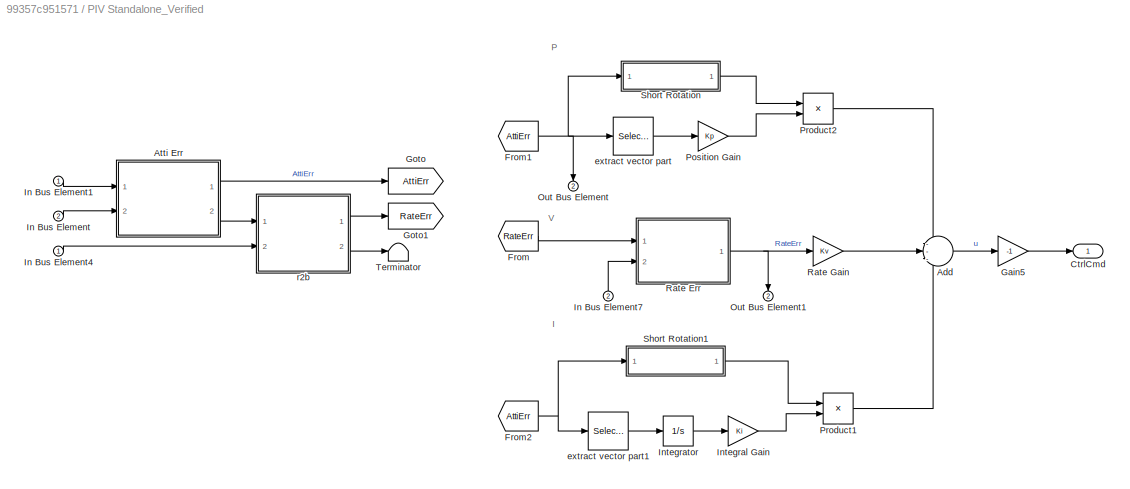
BLOCK [SubSystem] PIV Standalone_Verified
  AncestorBlock = ADCS_lib/Full EoM Controller
  Ports = [2, 2]
  RequestExecContextInheritance = off
BLOCK [Sum] PIV Standalone_Verified/Add
  IconShape = round
  InputSameDT = off
  Inputs = ---
  OutDataTypeStr = Inherit: Inherit via internal rule
  Ports = [3, 1]
  SaturateOnIntegerOverflow = off
BLOCK [SubSystem] PIV Standalone_Verified/Atti Err
  Ports = [2, 2]
  RequestExecContextInheritance = off
BLOCK [Outport] PIV Standalone_Verified/Atti Err/DCM_[BR]
  IconDisplay = Port number
  Port = 2
BLOCK [Reference] PIV Standalone_Verified/Atti Err/Quaternion Inverse1  REF=aerolibutil/Quaternion
Inverse
  Ports = [1, 1]
  SourceBlock = aerolibutil/Quaternion\nInverse
  SourceProductBaseCode = AE
  SourceProductName = Aerospace Blockset
  SourceType = Quaternion Inverse
BLOCK [Reference] PIV Standalone_Verified/Atti Err/Quaternion Multiplication  REF=aerolibutil/Quaternion
Multiplication
  Ports = [2, 1]
  SourceBlock = aerolibutil/Quaternion\nMultiplication
  SourceProductBaseCode = AE
  SourceProductName = Aerospace Blockset
  SourceType = Quaternion Multiplication
BLOCK [Reference] PIV Standalone_Verified/Atti Err/[BR]  REF=sharedtransform/Quaternions to 
Direction Cosine Matrix
  Ports = [1, 1]
  SourceBlock = sharedtransform/Quaternions to \nDirection Cosine Matrix
  SourceProductBaseCode = AE
  SourceProductName = Aerospace Blockset
  SourceType = Quaternion2DCM
BLOCK [Inport] PIV Standalone_Verified/Atti Err/q_eci2b
  IconDisplay = Port number
  Port = 2
BLOCK [Inport] PIV Standalone_Verified/Atti Err/q_eci2r
  IconDisplay = Port number
BLOCK [Outport] PIV Standalone_Verified/Atti Err/q_r2b
  IconDisplay = Port number
BLOCK [Outport] PIV Standalone_Verified/CtrlCmd
  IconDisplay = Port number
BLOCK [From] PIV Standalone_Verified/From
  GotoTag = RateErr
BLOCK [From] PIV Standalone_Verified/From1
  GotoTag = AttiErr
BLOCK [From] PIV Standalone_Verified/From2
  GotoTag = AttiErr
BLOCK [Gain] PIV Standalone_Verified/Gain5
  Gain = -1
  OutDataTypeStr = Inherit: Inherit via internal rule
  ParamDataTypeStr = Inherit: Inherit via internal rule
  SaturateOnIntegerOverflow = off
BLOCK [Goto] PIV Standalone_Verified/Goto
  GotoTag = AttiErr
BLOCK [Goto] PIV Standalone_Verified/Goto1
  GotoTag = RateErr
BLOCK [Inport] PIV Standalone_Verified/In Bus Element
  IconDisplay = Port number
  Port = 2
BLOCK [Inport] PIV Standalone_Verified/In Bus Element1
  IconDisplay = Port number
BLOCK [Inport] PIV Standalone_Verified/In Bus Element4
  IconDisplay = Port number
BLOCK [Inport] PIV Standalone_Verified/In Bus Element7
  IconDisplay = Port number
  Port = 2
BLOCK [Gain] PIV Standalone_Verified/Integral Gain
  Gain = Ki
  Multiplication = Matrix(K*u)
  OutDataTypeStr = Inherit: Inherit via internal rule
  ParamDataTypeStr = Inherit: Inherit via internal rule
  SaturateOnIntegerOverflow = off
BLOCK [Integrator] PIV Standalone_Verified/Integrator
  Ports = [1, 1]
BLOCK [Outport] PIV Standalone_Verified/Out Bus Element
  IconDisplay = Port number
  Port = 2
BLOCK [Outport] PIV Standalone_Verified/Out Bus Element1
  IconDisplay = Port number
  Port = 2
BLOCK [Gain] PIV Standalone_Verified/Position Gain
  Gain = Kp
  Multiplication = Matrix(K*u)
  OutDataTypeStr = Inherit: Inherit via internal rule
  ParamDataTypeStr = Inherit: Inherit via internal rule
  SaturateOnIntegerOverflow = off
BLOCK [Product] PIV Standalone_Verified/Product1
  InputSameDT = off
  OutDataTypeStr = Inherit: Inherit via internal rule
  Ports = [2, 1]
  RndMeth = Floor
  SaturateOnIntegerOverflow = off
BLOCK [Product] PIV Standalone_Verified/Product2
  InputSameDT = off
  OutDataTypeStr = Inherit: Inherit via internal rule
  Ports = [2, 1]
  RndMeth = Floor
  SaturateOnIntegerOverflow = off
BLOCK [SubSystem] PIV Standalone_Verified/Rate Err
  Ports = [2, 1]
  RequestExecContextInheritance = off
BLOCK [Sum] PIV Standalone_Verified/Rate Err/Add1
  InputSameDT = off
  Inputs = +-
  OutDataTypeStr = Inherit: Inherit via internal rule
  Ports = [2, 1]
  SaturateOnIntegerOverflow = off
BLOCK [Outport] PIV Standalone_Verified/Rate Err/b_deltaw_b//r
  IconDisplay = Port number
BLOCK [Inport] PIV Standalone_Verified/Rate Err/b_w_b//n
  IconDisplay = Port number
  Port = 2
BLOCK [Inport] PIV Standalone_Verified/Rate Err/b_w_r//n
  IconDisplay = Port number
BLOCK [Gain] PIV Standalone_Verified/Rate Gain
  Gain = Kv
  Multiplication = Matrix(K*u)
  OutDataTypeStr = Inherit: Inherit via internal rule
  ParamDataTypeStr = Inherit: Inherit via internal rule
  SaturateOnIntegerOverflow = off
BLOCK [SubSystem] PIV Standalone_Verified/Short Rotation
  Ports = [1, 1]
  RequestExecContextInheritance = off
BLOCK [Gain] PIV Standalone_Verified/Short Rotation/Gain1
  Gain = -1
  OutDataTypeStr = Inherit: Inherit via internal rule
  ParamDataTypeStr = Inherit: Inherit via internal rule
  SaturateOnIntegerOverflow = off
BLOCK [Signum] PIV Standalone_Verified/Short Rotation/Sign1
BLOCK [Selector] PIV Standalone_Verified/Short Rotation/extract scalar part
  IndexOptions = Index vector (dialog)
  Indices = [1]
  InputPortWidth = 4
  OutputSizes = 1
  Ports = [1, 1]
BLOCK [Inport] PIV Standalone_Verified/Short Rotation/q
  IconDisplay = Port number
BLOCK [Outport] PIV Standalone_Verified/Short Rotation/sgn
  IconDisplay = Port number
BLOCK [SubSystem] PIV Standalone_Verified/Short Rotation1
  Ports = [1, 1]
  RequestExecContextInheritance = off
BLOCK [Gain] PIV Standalone_Verified/Short Rotation1/Gain1
  Gain = -1
  OutDataTypeStr = Inherit: Inherit via internal rule
  ParamDataTypeStr = Inherit: Inherit via internal rule
  SaturateOnIntegerOverflow = off
BLOCK [Signum] PIV Standalone_Verified/Short Rotation1/Sign1
BLOCK [Selector] PIV Standalone_Verified/Short Rotation1/extract scalar part
  IndexOptions = Index vector (dialog)
  Indices = [1]
  InputPortWidth = 4
  OutputSizes = 1
  Ports = [1, 1]
BLOCK [Inport] PIV Standalone_Verified/Short Rotation1/q
  IconDisplay = Port number
BLOCK [Outport] PIV Standalone_Verified/Short Rotation1/sgn
  IconDisplay = Port number
BLOCK [Terminator] PIV Standalone_Verified/Terminator
BLOCK [Selector] PIV Standalone_Verified/extract vector part
  IndexOptions = Index vector (dialog)
  Indices = [2 3 4]
  InputPortWidth = 4
  OutputSizes = 1
  Ports = [1, 1]
BLOCK [Selector] PIV Standalone_Verified/extract vector part1
  IndexOptions = Index vector (dialog)
  Indices = [2 3 4]
  InputPortWidth = 4
  OutputSizes = 1
  Ports = [1, 1]
BLOCK [SubSystem] PIV Standalone_Verified/r2b
  Ports = [2, 2]
  RequestExecContextInheritance = off
BLOCK [Derivative] PIV Standalone_Verified/r2b/Derivative
BLOCK [Product] PIV Standalone_Verified/r2b/Product
  InputSameDT = off
  Multiplication = Matrix(*)
  OutDataTypeStr = Inherit: Inherit via internal rule
  Ports = [2, 1]
  RndMeth = Floor
  SaturateOnIntegerOverflow = off
BLOCK [Product] PIV Standalone_Verified/r2b/Product1
  InputSameDT = off
  Multiplication = Matrix(*)
  OutDataTypeStr = Inherit: Inherit via internal rule
  Ports = [2, 1]
  RndMeth = Floor
  SaturateOnIntegerOverflow = off
BLOCK [Inport] PIV Standalone_Verified/r2b/[BR]
  IconDisplay = Port number
BLOCK [Outport] PIV Standalone_Verified/r2b/b_a_r//n
  IconDisplay = Port number
  Port = 2
BLOCK [Outport] PIV Standalone_Verified/r2b/b_w_r//n
  IconDisplay = Port number
BLOCK [Inport] PIV Standalone_Verified/r2b/r_w_r//n
  IconDisplay = Port number
  Port = 2
BLOCK [Reference] PV Full EoM Controller1  REF=$bdroot/PV Full EoM Controller
  Ports = [4, 2]
  SourceBlock = $bdroot/PV Full EoM Controller
  SourceType = SubSystem
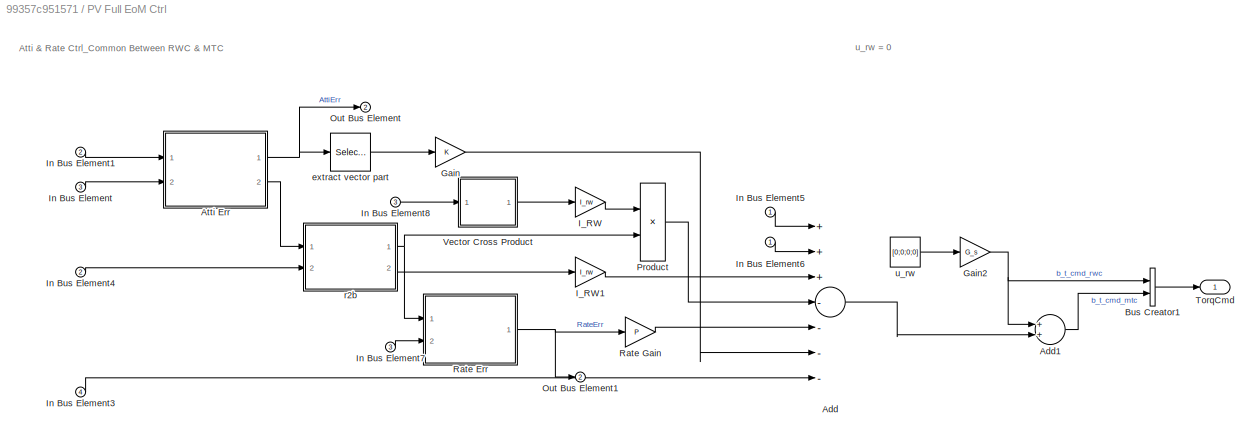
BLOCK [SubSystem] PV Full EoM Ctrl
  AncestorBlock = ADCS_lib/Full EoM Controller
  Ports = [4, 2]
  RequestExecContextInheritance = off
BLOCK [Sum] PV Full EoM Ctrl/Add
  InputSameDT = off
  Inputs = +++----
  OutDataTypeStr = Inherit: Inherit via internal rule
  Ports = [7, 1]
  SaturateOnIntegerOverflow = off
BLOCK [Sum] PV Full EoM Ctrl/Add1
  InputSameDT = off
  OutDataTypeStr = Inherit: Inherit via internal rule
  Ports = [2, 1]
  SaturateOnIntegerOverflow = off
BLOCK [SubSystem] PV Full EoM Ctrl/Atti Err
  Ports = [2, 2]
  RequestExecContextInheritance = off
BLOCK [Outport] PV Full EoM Ctrl/Atti Err/DCM_[BR]
  IconDisplay = Port number
  Port = 2
BLOCK [Reference] PV Full EoM Ctrl/Atti Err/Quaternion Inverse1  REF=aerolibutil/Quaternion
Inverse
  Ports = [1, 1]
  SourceBlock = aerolibutil/Quaternion\nInverse
  SourceProductBaseCode = AE
  SourceProductName = Aerospace Blockset
  SourceType = Quaternion Inverse
BLOCK [Reference] PV Full EoM Ctrl/Atti Err/Quaternion Multiplication  REF=aerolibutil/Quaternion
Multiplication
  Ports = [2, 1]
  SourceBlock = aerolibutil/Quaternion\nMultiplication
  SourceProductBaseCode = AE
  SourceProductName = Aerospace Blockset
  SourceType = Quaternion Multiplication
BLOCK [Reference] PV Full EoM Ctrl/Atti Err/[BR]  REF=sharedtransform/Quaternions to 
Direction Cosine Matrix
  Ports = [1, 1]
  SourceBlock = sharedtransform/Quaternions to \nDirection Cosine Matrix
  SourceProductBaseCode = AE
  SourceProductName = Aerospace Blockset
  SourceType = Quaternion2DCM
BLOCK [Inport] PV Full EoM Ctrl/Atti Err/q_eci2b
  IconDisplay = Port number
  Port = 2
BLOCK [Inport] PV Full EoM Ctrl/Atti Err/q_eci2r
  IconDisplay = Port number
BLOCK [Outport] PV Full EoM Ctrl/Atti Err/q_r2b
  IconDisplay = Port number
BLOCK [BusCreator] PV Full EoM Ctrl/Bus Creator1
  DisplayOption = bar
  InheritFromInputs = on
  Inputs = 2
  Ports = [2, 1]
BLOCK [Gain] PV Full EoM Ctrl/Gain
  Gain = K
  OutDataTypeStr = Inherit: Inherit via internal rule
  ParamDataTypeStr = Inherit: Inherit via internal rule
  SaturateOnIntegerOverflow = off
BLOCK [Gain] PV Full EoM Ctrl/Gain2
  Gain = G_s
  Multiplication = Matrix(K*u)
  OutDataTypeStr = Inherit: Inherit via internal rule
  ParamDataTypeStr = Inherit: Inherit via internal rule
  SaturateOnIntegerOverflow = off
BLOCK [Gain] PV Full EoM Ctrl/I_RW
  Gain = I_rw
  Multiplication = Matrix(u*K)
  OutDataTypeStr = Inherit: Inherit via internal rule
  ParamDataTypeStr = Inherit: Inherit via internal rule
  SaturateOnIntegerOverflow = off
BLOCK [Gain] PV Full EoM Ctrl/I_RW1
  Gain = I_rw
  Multiplication = Matrix(K*u)
  OutDataTypeStr = Inherit: Inherit via internal rule
  ParamDataTypeStr = Inherit: Inherit via internal rule
  SaturateOnIntegerOverflow = off
BLOCK [Inport] PV Full EoM Ctrl/In Bus Element
  IconDisplay = Port number
  Port = 3
BLOCK [Inport] PV Full EoM Ctrl/In Bus Element1
  IconDisplay = Port number
  Port = 2
BLOCK [Inport] PV Full EoM Ctrl/In Bus Element3
  IconDisplay = Port number
  Port = 4
BLOCK [Inport] PV Full EoM Ctrl/In Bus Element4
  IconDisplay = Port number
  Port = 2
BLOCK [Inport] PV Full EoM Ctrl/In Bus Element5
  IconDisplay = Port number
BLOCK [Inport] PV Full EoM Ctrl/In Bus Element6
  IconDisplay = Port number
BLOCK [Inport] PV Full EoM Ctrl/In Bus Element7
  IconDisplay = Port number
  Port = 3
BLOCK [Inport] PV Full EoM Ctrl/In Bus Element8
  IconDisplay = Port number
  Port = 3
BLOCK [Outport] PV Full EoM Ctrl/Out Bus Element
  IconDisplay = Port number
  Port = 2
BLOCK [Outport] PV Full EoM Ctrl/Out Bus Element1
  IconDisplay = Port number
  Port = 2
BLOCK [Product] PV Full EoM Ctrl/Product
  InputSameDT = off
  Multiplication = Matrix(*)
  OutDataTypeStr = Inherit: Inherit via internal rule
  Ports = [2, 1]
  RndMeth = Floor
  SaturateOnIntegerOverflow = off
BLOCK [SubSystem] PV Full EoM Ctrl/Rate Err
  Ports = [2, 1]
  RequestExecContextInheritance = off
BLOCK [Sum] PV Full EoM Ctrl/Rate Err/Add1
  InputSameDT = off
  Inputs = +-
  OutDataTypeStr = Inherit: Inherit via internal rule
  Ports = [2, 1]
  SaturateOnIntegerOverflow = off
BLOCK [Outport] PV Full EoM Ctrl/Rate Err/b_deltaw_b//r
  IconDisplay = Port number
BLOCK [Inport] PV Full EoM Ctrl/Rate Err/b_w_b//n
  IconDisplay = Port number
  Port = 2
BLOCK [Inport] PV Full EoM Ctrl/Rate Err/b_w_r//n
  IconDisplay = Port number
BLOCK [Gain] PV Full EoM Ctrl/Rate Gain
  Gain = P
  Multiplication = Matrix(K*u)
  OutDataTypeStr = Inherit: Inherit via internal rule
  ParamDataTypeStr = Inherit: Inherit via internal rule
  SaturateOnIntegerOverflow = off
BLOCK [Outport] PV Full EoM Ctrl/TorqCmd
  IconDisplay = Port number
BLOCK [SubSystem] PV Full EoM Ctrl/Vector Cross Product
  ErrorFcn = Stateflow.Translate.translate
  PermitHierarchicalResolution = ExplicitOnly
  Ports = [1, 1]
  RequestExecContextInheritance = off
  SFBlockType = MATLAB Function
  TreatAsAtomicUnit = on
BLOCK [Demux] PV Full EoM Ctrl/Vector Cross Product/ Demux 
  Outputs = 1
  Ports = [1, 1]
BLOCK [S-Function] PV Full EoM Ctrl/Vector Cross Product/ SFunction 
  EnableBusSupport = on
  FunctionName = sf_sfun
  PortCounts = [1 2]
  Ports = [1, 2]
  SFcnIsStateOwnerBlock = off
  SFunctionDeploymentMode = off
  Tag = Stateflow S-Function ADCS_lib 17
BLOCK [Terminator] PV Full EoM Ctrl/Vector Cross Product/ Terminator 
BLOCK [Inport] PV Full EoM Ctrl/Vector Cross Product/u
  IconDisplay = Port number
BLOCK [Outport] PV Full EoM Ctrl/Vector Cross Product/u_tilde
  IconDisplay = Port number
BLOCK [Selector] PV Full EoM Ctrl/extract vector part
  IndexOptions = Index vector (dialog)
  Indices = [2 3 4]
  InputPortWidth = 4
  OutputSizes = 1
  Ports = [1, 1]
BLOCK [SubSystem] PV Full EoM Ctrl/r2b
  Ports = [2, 2]
  RequestExecContextInheritance = off
BLOCK [Derivative] PV Full EoM Ctrl/r2b/Derivative
BLOCK [Product] PV Full EoM Ctrl/r2b/Product
  InputSameDT = off
  Multiplication = Matrix(*)
  OutDataTypeStr = Inherit: Inherit via internal rule
  Ports = [2, 1]
  RndMeth = Floor
  SaturateOnIntegerOverflow = off
BLOCK [Product] PV Full EoM Ctrl/r2b/Product1
  InputSameDT = off
  Multiplication = Matrix(*)
  OutDataTypeStr = Inherit: Inherit via internal rule
  Ports = [2, 1]
  RndMeth = Floor
  SaturateOnIntegerOverflow = off
BLOCK [Inport] PV Full EoM Ctrl/r2b/[BR]
  IconDisplay = Port number
BLOCK [Outport] PV Full EoM Ctrl/r2b/b_a_r//n
  IconDisplay = Port number
  Port = 2
BLOCK [Outport] PV Full EoM Ctrl/r2b/b_w_r//n
  IconDisplay = Port number
BLOCK [Inport] PV Full EoM Ctrl/r2b/r_w_r//n
  IconDisplay = Port number
  Port = 2
BLOCK [Constant] PV Full EoM Ctrl/u_rw
  Value = [0;0;0;0]
BLOCK [SubSystem] QuEST
  ErrorFcn = Stateflow.Translate.translate
  PermitHierarchicalResolution = ExplicitOnly
  Ports = [3, 1]
  RequestExecContextInheritance = off
  SFBlockType = MATLAB Function
  TreatAsAtomicUnit = on
BLOCK [Demux] QuEST/ Demux 
  Outputs = 1
  Ports = [1, 1]
BLOCK [S-Function] QuEST/ SFunction 
  EnableBusSupport = off
  FunctionName = sf_sfun
  PortCounts = [3 2]
  Ports = [3, 2]
  SFcnIsStateOwnerBlock = off
  SFunctionDeploymentMode = off
  Tag = Stateflow S-Function ADCS_lib 2
BLOCK [Terminator] QuEST/ Terminator 
BLOCK [Outport] QuEST/BN
  IconDisplay = Port number
BLOCK [Inport] QuEST/V_B
  IconDisplay = Port number
  Port = 2
BLOCK [Inport] QuEST/V_N
  IconDisplay = Port number
BLOCK [Inport] QuEST/WT
  IconDisplay = Port number
  Port = 3
BLOCK [SubSystem] Reaction Wheel
  ErrorFcn = Stateflow.Translate.translate
  PermitHierarchicalResolution = ExplicitOnly
  Ports = [3, 3]
  RequestExecContextInheritance = off
  SFBlockType = MATLAB Function
  TreatAsAtomicUnit = on
BLOCK [SubSystem] Reaction Wheel Cluster
  Ports = [2, 2]
  RequestExecContextInheritance = off
BLOCK [Constant] Reaction Wheel Cluster/#1
BLOCK [Constant] Reaction Wheel Cluster/#2
  Value = 2
BLOCK [Constant] Reaction Wheel Cluster/#3
  Value = 3
BLOCK [Constant] Reaction Wheel Cluster/#4
  Value = 4
BLOCK [Inport] Reaction Wheel Cluster/ALPHA
  IconDisplay = Port number
BLOCK [Constant] Reaction Wheel Cluster/Constant1
  Value = Gs
BLOCK [Constant] Reaction Wheel Cluster/Constant2
  Value = Gs
BLOCK [Demux] Reaction Wheel Cluster/Demux
  DisplayOption = bar
  Ports = [1, 4]
BLOCK [Math] Reaction Wheel Cluster/Math Function
  Operator = transpose
  Ports = [1, 1]
BLOCK [Constant] Reaction Wheel Cluster/Mounting Matrix
  Value = Gs
BLOCK [Mux] Reaction Wheel Cluster/Mux
  DisplayOption = bar
  Ports = [4, 1]
BLOCK [Mux] Reaction Wheel Cluster/Mux1
  DisplayOption = bar
  Ports = [4, 1]
BLOCK [Product] Reaction Wheel Cluster/Product
  InputSameDT = off
  Multiplication = Matrix(*)
  OutDataTypeStr = Inherit: Inherit via internal rule
  Ports = [2, 1]
  RndMeth = Floor
  SaturateOnIntegerOverflow = off
BLOCK [Product] Reaction Wheel Cluster/Product1
  InputSameDT = off
  Multiplication = Matrix(*)
  OutDataTypeStr = Inherit: Inherit via internal rule
  Ports = [2, 1]
  RndMeth = Floor
  SaturateOnIntegerOverflow = off
BLOCK [Product] Reaction Wheel Cluster/Product2
  InputSameDT = off
  Multiplication = Matrix(*)
  OutDataTypeStr = Inherit: Inherit via internal rule
  Ports = [2, 1]
  RndMeth = Floor
  SaturateOnIntegerOverflow = off
BLOCK [SubSystem] Reaction Wheel Cluster/Reaction Wheel 1
  ErrorFcn = Stateflow.Translate.translate
  PermitHierarchicalResolution = ExplicitOnly
  Ports = [3, 3]
  RequestExecContextInheritance = off
  SFBlockType = MATLAB Function
  TreatAsAtomicUnit = on
BLOCK [Demux] Reaction Wheel Cluster/Reaction Wheel 1/ Demux 
  Outputs = 1
  Ports = [1, 1]
BLOCK [S-Function] Reaction Wheel Cluster/Reaction Wheel 1/ SFunction 
  EnableBusSupport = off
  FunctionName = sf_sfun
  PortCounts = [3 4]
  Ports = [3, 4]
  SFcnIsStateOwnerBlock = off
  SFunctionDeploymentMode = off
  Tag = Stateflow S-Function ADCS_lib 3
BLOCK [Terminator] Reaction Wheel Cluster/Reaction Wheel 1/ Terminator 
BLOCK [Inport] Reaction Wheel Cluster/Reaction Wheel 1/ALPHA
  IconDisplay = Port number
BLOCK [Outport] Reaction Wheel Cluster/Reaction Wheel 1/h_wheel
  IconDisplay = Port number
  Port = 3
BLOCK [Inport] Reaction Wheel Cluster/Reaction Wheel 1/index
  IconDisplay = Port number
  Port = 3
BLOCK [Outport] Reaction Wheel Cluster/Reaction Wheel 1/omega_wheel
  IconDisplay = Port number
  Port = 2
BLOCK [Outport] Reaction Wheel Cluster/Reaction Wheel 1/tau_wheel
  IconDisplay = Port number
BLOCK [Inport] Reaction Wheel Cluster/Reaction Wheel 1/u_s_cmd
  IconDisplay = Port number
  Port = 2
BLOCK [SubSystem] Reaction Wheel Cluster/Reaction Wheel 2
  ErrorFcn = Stateflow.Translate.translate
  PermitHierarchicalResolution = ExplicitOnly
  Ports = [3, 3]
  RequestExecContextInheritance = off
  SFBlockType = MATLAB Function
  TreatAsAtomicUnit = on
BLOCK [Demux] Reaction Wheel Cluster/Reaction Wheel 2/ Demux 
  Outputs = 1
  Ports = [1, 1]
BLOCK [S-Function] Reaction Wheel Cluster/Reaction Wheel 2/ SFunction 
  EnableBusSupport = off
  FunctionName = sf_sfun
  PortCounts = [3 4]
  Ports = [3, 4]
  SFcnIsStateOwnerBlock = off
  SFunctionDeploymentMode = off
  Tag = Stateflow S-Function ADCS_lib 4
BLOCK [Terminator] Reaction Wheel Cluster/Reaction Wheel 2/ Terminator 
BLOCK [Inport] Reaction Wheel Cluster/Reaction Wheel 2/ALPHA
  IconDisplay = Port number
BLOCK [Outport] Reaction Wheel Cluster/Reaction Wheel 2/h_wheel
  IconDisplay = Port number
  Port = 3
BLOCK [Inport] Reaction Wheel Cluster/Reaction Wheel 2/index
  IconDisplay = Port number
  Port = 3
BLOCK [Outport] Reaction Wheel Cluster/Reaction Wheel 2/omega_wheel
  IconDisplay = Port number
  Port = 2
BLOCK [Outport] Reaction Wheel Cluster/Reaction Wheel 2/tau_wheel
  IconDisplay = Port number
BLOCK [Inport] Reaction Wheel Cluster/Reaction Wheel 2/u_s_cmd
  IconDisplay = Port number
  Port = 2
BLOCK [SubSystem] Reaction Wheel Cluster/Reaction Wheel 3
  ErrorFcn = Stateflow.Translate.translate
  PermitHierarchicalResolution = ExplicitOnly
  Ports = [3, 3]
  RequestExecContextInheritance = off
  SFBlockType = MATLAB Function
  TreatAsAtomicUnit = on
BLOCK [Demux] Reaction Wheel Cluster/Reaction Wheel 3/ Demux 
  Outputs = 1
  Ports = [1, 1]
BLOCK [S-Function] Reaction Wheel Cluster/Reaction Wheel 3/ SFunction 
  EnableBusSupport = off
  FunctionName = sf_sfun
  PortCounts = [3 4]
  Ports = [3, 4]
  SFcnIsStateOwnerBlock = off
  SFunctionDeploymentMode = off
  Tag = Stateflow S-Function ADCS_lib 5
BLOCK [Terminator] Reaction Wheel Cluster/Reaction Wheel 3/ Terminator 
BLOCK [Inport] Reaction Wheel Cluster/Reaction Wheel 3/ALPHA
  IconDisplay = Port number
BLOCK [Outport] Reaction Wheel Cluster/Reaction Wheel 3/h_wheel
  IconDisplay = Port number
  Port = 3
BLOCK [Inport] Reaction Wheel Cluster/Reaction Wheel 3/index
  IconDisplay = Port number
  Port = 3
BLOCK [Outport] Reaction Wheel Cluster/Reaction Wheel 3/omega_wheel
  IconDisplay = Port number
  Port = 2
BLOCK [Outport] Reaction Wheel Cluster/Reaction Wheel 3/tau_wheel
  IconDisplay = Port number
BLOCK [Inport] Reaction Wheel Cluster/Reaction Wheel 3/u_s_cmd
  IconDisplay = Port number
  Port = 2
BLOCK [SubSystem] Reaction Wheel Cluster/Reaction Wheel 4
  ErrorFcn = Stateflow.Translate.translate
  PermitHierarchicalResolution = ExplicitOnly
  Ports = [3, 3]
  RequestExecContextInheritance = off
  SFBlockType = MATLAB Function
  TreatAsAtomicUnit = on
BLOCK [Demux] Reaction Wheel Cluster/Reaction Wheel 4/ Demux 
  Outputs = 1
  Ports = [1, 1]
BLOCK [S-Function] Reaction Wheel Cluster/Reaction Wheel 4/ SFunction 
  EnableBusSupport = off
  FunctionName = sf_sfun
  PortCounts = [3 4]
  Ports = [3, 4]
  SFcnIsStateOwnerBlock = off
  SFunctionDeploymentMode = off
  Tag = Stateflow S-Function ADCS_lib 6
BLOCK [Terminator] Reaction Wheel Cluster/Reaction Wheel 4/ Terminator 
BLOCK [Inport] Reaction Wheel Cluster/Reaction Wheel 4/ALPHA
  IconDisplay = Port number
BLOCK [Outport] Reaction Wheel Cluster/Reaction Wheel 4/h_wheel
  IconDisplay = Port number
  Port = 3
BLOCK [Inport] Reaction Wheel Cluster/Reaction Wheel 4/index
  IconDisplay = Port number
  Port = 3
BLOCK [Outport] Reaction Wheel Cluster/Reaction Wheel 4/omega_wheel
  IconDisplay = Port number
  Port = 2
BLOCK [Outport] Reaction Wheel Cluster/Reaction Wheel 4/tau_wheel
  IconDisplay = Port number
BLOCK [Inport] Reaction Wheel Cluster/Reaction Wheel 4/u_s_cmd
  IconDisplay = Port number
  Port = 2
BLOCK [Outport] Reaction Wheel Cluster/h_app
  IconDisplay = Port number
BLOCK [Outport] Reaction Wheel Cluster/tau_app
  IconDisplay = Port number
  Port = 2
BLOCK [Inport] Reaction Wheel Cluster/tau_cmd
  IconDisplay = Port number
  Port = 2
BLOCK [Demux] Reaction Wheel/ Demux 
  Outputs = 1
  Ports = [1, 1]
BLOCK [S-Function] Reaction Wheel/ SFunction 
  EnableBusSupport = off
  FunctionName = sf_sfun
  PortCounts = [3 4]
  Ports = [3, 4]
  SFcnIsStateOwnerBlock = off
  SFunctionDeploymentMode = off
  Tag = Stateflow S-Function ADCS_lib 1
BLOCK [Terminator] Reaction Wheel/ Terminator 
BLOCK [Inport] Reaction Wheel/ALPHA
  IconDisplay = Port number
BLOCK [Outport] Reaction Wheel/h_wheel
  IconDisplay = Port number
  Port = 3
BLOCK [Inport] Reaction Wheel/index
  IconDisplay = Port number
  Port = 3
BLOCK [Outport] Reaction Wheel/omega_wheel
  IconDisplay = Port number
  Port = 2
BLOCK [Outport] Reaction Wheel/tau_wheel
  IconDisplay = Port number
BLOCK [Inport] Reaction Wheel/u_s_cmd
  IconDisplay = Port number
  Port = 2
BLOCK [SubSystem] Satellite Dynamics
  Ports = [4, 3]
  RequestExecContextInheritance = off
BLOCK [Outport] Satellite Dynamics/ALPHA
  IconDisplay = Port number
BLOCK [SubSystem] Satellite Dynamics/Equation of Motion
  ErrorFcn = Stateflow.Translate.translate
  PermitHierarchicalResolution = ExplicitOnly
  Ports = [4, 1]
  RequestExecContextInheritance = off
  SFBlockType = MATLAB Function
  TreatAsAtomicUnit = on
BLOCK [Demux] Satellite Dynamics/Equation of Motion/ Demux 
  Outputs = 1
  Ports = [1, 1]
BLOCK [S-Function] Satellite Dynamics/Equation of Motion/ SFunction 
  EnableBusSupport = off
  FunctionName = sf_sfun
  PortCounts = [4 2]
  Ports = [4, 2]
  SFcnIsStateOwnerBlock = off
  SFunctionDeploymentMode = off
  Tag = Stateflow S-Function ADCS_lib 8
BLOCK [Terminator] Satellite Dynamics/Equation of Motion/ Terminator 
BLOCK [Outport] Satellite Dynamics/Equation of Motion/ALPHA
  IconDisplay = Port number
BLOCK [Inport] Satellite Dynamics/Equation of Motion/OMEGA
  IconDisplay = Port number
BLOCK [Inport] Satellite Dynamics/Equation of Motion/h_app_RWC
  IconDisplay = Port number
  Port = 2
BLOCK [Inport] Satellite Dynamics/Equation of Motion/tau_app_RWC
  IconDisplay = Port number
  Port = 3
BLOCK [Inport] Satellite Dynamics/Equation of Motion/tau_app_distrb
  IconDisplay = Port number
  Port = 4
BLOCK [Integrator] Satellite Dynamics/Integrator
  Ports = [1, 1]
BLOCK [Integrator] Satellite Dynamics/Integrator1
  Ports = [1, 1]
BLOCK [Outport] Satellite Dynamics/OMEGA
  IconDisplay = Port number
  Port = 2
BLOCK [Sum] Satellite Dynamics/Sum
  IconShape = round
  InputSameDT = off
  Inputs = |++
  OutDataTypeStr = Inherit: Inherit via internal rule
  Ports = [2, 1]
  SaturateOnIntegerOverflow = off
BLOCK [Outport] Satellite Dynamics/THETA
  IconDisplay = Port number
  Port = 3
BLOCK [Inport] Satellite Dynamics/h_app_RWC
  IconDisplay = Port number
BLOCK [Inport] Satellite Dynamics/tau_app_Distrb
  IconDisplay = Port number
  Port = 4
BLOCK [Inport] Satellite Dynamics/tau_app_MTC
  IconDisplay = Port number
  Port = 3
BLOCK [Inport] Satellite Dynamics/tau_app_RWC
  IconDisplay = Port number
  Port = 2
BLOCK [SubSystem] Sensor
  Ports = [1, 1]
  RequestExecContextInheritance = off
BLOCK [Inport] Sensor/In1
  IconDisplay = Port number
BLOCK [Outport] Sensor/Out1
  IconDisplay = Port number
BLOCK [SubSystem] Simscape Visualize
  Ports = [1]
  RequestExecContextInheritance = off
BLOCK [Reference] Simscape Visualize/CubeSat  REF=sm_lib/Body Elements/Solid
  Ports = [0, 0, 0, 0, 0, 1, 1]
  SourceBlock = sm_lib/Body Elements/Solid
  SourceProductBaseCode = MS
  SourceProductName = Simscape Multibody
  SourceType = Solid
BLOCK [Demux] Simscape Visualize/Demux
  DisplayOption = bar
  Outputs = 3
  Ports = [1, 3]
BLOCK [Gain] Simscape Visualize/Gain
  Commented = on
  Gain = 57.2958
  OutDataTypeStr = Inherit: Inherit via internal rule
  ParamDataTypeStr = Inherit: Inherit via internal rule
  SaturateOnIntegerOverflow = off
BLOCK [Reference] Simscape Visualize/Gimbal Joint  REF=sm_lib/Joints/Gimbal Joint
  Ports = [0, 0, 0, 0, 0, 4, 1]
  SourceBlock = sm_lib/Joints/Gimbal Joint
  SourceProductBaseCode = MS
  SourceProductName = Simscape Multibody
  SourceType = Gimbal Joint
BLOCK [Reference] Simscape Visualize/Mechanism Configuration  REF=sm_lib/Utilities/Mechanism
Configuration
  Ports = [0, 0, 0, 0, 0, 0, 1]
  SourceBlock = sm_lib/Utilities/Mechanism\nConfiguration
  SourceProductBaseCode = MS
  SourceProductName = Simscape Multibody
  SourceType = Mechanism\nConfiguration
BLOCK [Reference] Simscape Visualize/PS-Simulink Converter  REF=nesl_utility/PS-Simulink
Converter
  Commented = on
  Ports = [0, 1, 0, 0, 0, 1]
  SourceBlock = nesl_utility/PS-Simulink\nConverter
  SourceProductBaseCode = SS
  SourceProductName = Simscape
  SourceType = PS-Simulink\nConverter
BLOCK [Reference] Simscape Visualize/Simulink-PS Converter  REF=nesl_utility/Simulink-PS
Converter
  Ports = [1, 0, 0, 0, 0, 0, 1]
  SourceBlock = nesl_utility/Simulink-PS\nConverter
  SourceProductBaseCode = SS
  SourceProductName = Simscape
  SourceType = Simulink-PS\nConverter
BLOCK [Reference] Simscape Visualize/Simulink-PS Converter1  REF=nesl_utility/Simulink-PS
Converter
  Ports = [1, 0, 0, 0, 0, 0, 1]
  SourceBlock = nesl_utility/Simulink-PS\nConverter
  SourceProductBaseCode = SS
  SourceProductName = Simscape
  SourceType = Simulink-PS\nConverter
BLOCK [Reference] Simscape Visualize/Simulink-PS Converter2  REF=nesl_utility/Simulink-PS
Converter
  Ports = [1, 0, 0, 0, 0, 0, 1]
  SourceBlock = nesl_utility/Simulink-PS\nConverter
  SourceProductBaseCode = SS
  SourceProductName = Simscape
  SourceType = Simulink-PS\nConverter
BLOCK [Reference] Simscape Visualize/Solver Configuration  REF=nesl_utility/Solver
Configuration
  Ports = [0, 0, 0, 0, 0, 0, 1]
  SourceBlock = nesl_utility/Solver\nConfiguration
  SourceProductBaseCode = SS
  SourceProductName = Simscape
  SourceType = Solver\nConfiguration
BLOCK [Inport] Simscape Visualize/THETA
  IconDisplay = Port number
BLOCK [Scope] Simscape Visualize/Velocity (deg//s)
  Commented = on
  Floating = off
  NumInputPorts = 1
  Ports = [1]
  ScopeSpecificationString = Simulink.scopes.TimeScopeBlockCfg('CurrentConfiguration', extmgr.ConfigurationSet(extmgr.Configuration('Core','General UI',true),extmgr.Configuration('Core','Source UI',true),extmgr.Configuration('Sources','WiredSimulink',true,'DataLoggingVariableName','ScopeData1'),extmgr.Configuration('Visuals','Time Domain',true,'SerializedDisplays',{struct('MinYLimReal','-4.15063','MaxYLimReal','6.04105','YLab...<+1427ch>
BLOCK [Reference] Simscape Visualize/World Frame  REF=sm_lib/Frames and
Transforms/World Frame
  Ports = [0, 0, 0, 0, 0, 0, 1]
  SourceBlock = sm_lib/Frames and\nTransforms/World Frame
  SourceProductBaseCode = MS
  SourceProductName = Simscape Multibody
  SourceType = World Frame
BLOCK [SubSystem] Subsystem
  Ports = [1, 1]
  RequestExecContextInheritance = off
BLOCK [Inport] Subsystem/ALPHA
  IconDisplay = Port number
BLOCK [Constant] Subsystem/Constant
  Value = I_w(1,1)
BLOCK [Constant] Subsystem/Constant1
  Value = I_w(1,2)
BLOCK [Constant] Subsystem/Constant2
  Value = I_w(1,3)
BLOCK [Constant] Subsystem/Constant3
  Value = I_w(1,4)
BLOCK [Gain] Subsystem/Gain1
  Gain = G_s(:,1).'
  Multiplication = Matrix(K*u)
  OutDataTypeStr = Inherit: Inherit via internal rule
  ParamDataTypeStr = Inherit: Inherit via internal rule
  SaturateOnIntegerOverflow = off
BLOCK [Gain] Subsystem/Gain2
  Gain = G_s(:,2).'
  Multiplication = Matrix(K*u)
  OutDataTypeStr = Inherit: Inherit via internal rule
  ParamDataTypeStr = Inherit: Inherit via internal rule
  SaturateOnIntegerOverflow = off
BLOCK [Gain] Subsystem/Gain3
  Gain = G_s(:,3).'
  Multiplication = Matrix(K*u)
  OutDataTypeStr = Inherit: Inherit via internal rule
  ParamDataTypeStr = Inherit: Inherit via internal rule
  SaturateOnIntegerOverflow = off
BLOCK [Gain] Subsystem/Gain4
  Gain = G_s(:,4).'
  Multiplication = Matrix(K*u)
  OutDataTypeStr = Inherit: Inherit via internal rule
  ParamDataTypeStr = Inherit: Inherit via internal rule
  SaturateOnIntegerOverflow = off
BLOCK [Mux] Subsystem/Mux
  DisplayOption = bar
  Ports = [4, 1]
BLOCK [Outport] Subsystem/Out1
  IconDisplay = Port number
BLOCK [Product] Subsystem/Product
  InputSameDT = off
  OutDataTypeStr = Inherit: Inherit via internal rule
  Ports = [2, 1]
  RndMeth = Floor
  SaturateOnIntegerOverflow = off
BLOCK [Product] Subsystem/Product1
  InputSameDT = off
  OutDataTypeStr = Inherit: Inherit via internal rule
  Ports = [2, 1]
  RndMeth = Floor
  SaturateOnIntegerOverflow = off
BLOCK [Product] Subsystem/Product2
  InputSameDT = off
  OutDataTypeStr = Inherit: Inherit via internal rule
  Ports = [2, 1]
  RndMeth = Floor
  SaturateOnIntegerOverflow = off
BLOCK [Product] Subsystem/Product3
  InputSameDT = off
  OutDataTypeStr = Inherit: Inherit via internal rule
  Ports = [2, 1]
  RndMeth = Floor
  SaturateOnIntegerOverflow = off
BLOCK [SubSystem] Subsystem1
  Ports = [1]
  RequestExecContextInheritance = off
BLOCK [Reference] Subsystem1/Cartesian Joint  REF=sm_lib/Joints/Cartesian
Joint
  Ports = [0, 0, 0, 0, 0, 1, 1]
  SourceBlock = sm_lib/Joints/Cartesian\nJoint
  SourceProductBaseCode = MS
  SourceProductName = Simscape Multibody
  SourceType = Cartesian\nJoint
BLOCK [Constant] Subsystem1/Constant
  Value = [0;0;0;0]
BLOCK [SubSystem] Subsystem1/CubeSat Structure
  Ports = [0, 0, 0, 0, 0, 1, 4]
  RequestExecContextInheritance = off
BLOCK [Reference] Subsystem1/CubeSat Structure/BODY_FIXED_CoMXform  REF=sm_lib/Frames and
Transforms/Rigid
Transform
  Ports = [0, 0, 0, 0, 0, 1, 1]
  SourceBlock = sm_lib/Frames and\nTransforms/Rigid\nTransform
  SourceProductBaseCode = MS
  SourceProductName = Simscape Multibody
  SourceType = Rigid\nTransform
BLOCK [PMIOPort] Subsystem1/CubeSat Structure/CoM
  Side = Left
BLOCK [PMIOPort] Subsystem1/CubeSat Structure/F
  Port = 5
  Side = Right
BLOCK [PMIOPort] Subsystem1/CubeSat Structure/F1
  Port = 4
  Side = Right
BLOCK [PMIOPort] Subsystem1/CubeSat Structure/F2
  Port = 3
  Side = Right
BLOCK [PMIOPort] Subsystem1/CubeSat Structure/F3
  Port = 2
  Side = Right
BLOCK [Reference] Subsystem1/CubeSat Structure/ReferenceFrame  REF=sm_lib/Frames and
Transforms/Reference
Frame
  Ports = [0, 0, 0, 0, 0, 0, 1]
  SourceBlock = sm_lib/Frames and\nTransforms/Reference\nFrame
  SourceProductBaseCode = MS
  SourceProductName = Simscape Multibody
  SourceType = Reference\nFrame
BLOCK [Reference] Subsystem1/CubeSat Structure/Solid  REF=sm_lib/Body Elements/Solid
  Ports = [0, 0, 0, 0, 0, 1, 1]
  SourceBlock = sm_lib/Body Elements/Solid
  SourceProductBaseCode = MS
  SourceProductName = Simscape Multibody
  SourceType = Solid
BLOCK [Reference] Subsystem1/CubeSat Structure/Transform  REF=sm_lib/Frames and
Transforms/Rigid
Transform
  Ports = [0, 0, 0, 0, 0, 1, 1]
  SourceBlock = sm_lib/Frames and\nTransforms/Rigid\nTransform
  SourceProductBaseCode = MS
  SourceProductName = Simscape Multibody
  SourceType = Rigid\nTransform
BLOCK [Reference] Subsystem1/CubeSat Structure/Transform1  REF=sm_lib/Frames and
Transforms/Rigid
Transform
  Ports = [0, 0, 0, 0, 0, 1, 1]
  SourceBlock = sm_lib/Frames and\nTransforms/Rigid\nTransform
  SourceProductBaseCode = MS
  SourceProductName = Simscape Multibody
  SourceType = Rigid\nTransform
BLOCK [Reference] Subsystem1/CubeSat Structure/Transform2  REF=sm_lib/Frames and
Transforms/Rigid
Transform
  Ports = [0, 0, 0, 0, 0, 1, 1]
  SourceBlock = sm_lib/Frames and\nTransforms/Rigid\nTransform
  SourceProductBaseCode = MS
  SourceProductName = Simscape Multibody
  SourceType = Rigid\nTransform
BLOCK [Reference] Subsystem1/CubeSat Structure/Transform3  REF=sm_lib/Frames and
Transforms/Rigid
Transform
  Ports = [0, 0, 0, 0, 0, 1, 1]
  SourceBlock = sm_lib/Frames and\nTransforms/Rigid\nTransform
  SourceProductBaseCode = MS
  SourceProductName = Simscape Multibody
  SourceType = Rigid\nTransform
BLOCK [Demux] Subsystem1/Demux
  DisplayOption = bar
  Outputs = 3
  Ports = [1, 3]
BLOCK [Demux] Subsystem1/Demux2
  DisplayOption = bar
  Ports = [1, 4]
BLOCK [Reference] Subsystem1/Gimbal Joint  REF=sm_lib/Joints/Gimbal Joint
  Ports = [0, 0, 0, 0, 0, 4, 1]
  SourceBlock = sm_lib/Joints/Gimbal Joint
  SourceProductBaseCode = MS
  SourceProductName = Simscape Multibody
  SourceType = Gimbal Joint
BLOCK [Reference] Subsystem1/MechanismConfiguration  REF=sm_lib/Utilities/Mechanism
Configuration
  Ports = [0, 0, 0, 0, 0, 0, 1]
  SourceBlock = sm_lib/Utilities/Mechanism\nConfiguration
  SourceProductBaseCode = MS
  SourceProductName = Simscape Multibody
  SourceType = Mechanism\nConfiguration
BLOCK [SubSystem] Subsystem1/RW 1 Disk
  Ports = [0, 0, 0, 0, 0, 1]
  RequestExecContextInheritance = off
BLOCK [PMIOPort] Subsystem1/RW 1 Disk/F
  Side = Left
BLOCK [Reference] Subsystem1/RW 1 Disk/ReferenceFrame  REF=sm_lib/Frames and
Transforms/Reference
Frame
  Ports = [0, 0, 0, 0, 0, 0, 1]
  SourceBlock = sm_lib/Frames and\nTransforms/Reference\nFrame
  SourceProductBaseCode = MS
  SourceProductName = Simscape Multibody
  SourceType = Reference\nFrame
BLOCK [Reference] Subsystem1/RW 1 Disk/Solid  REF=sm_lib/Body Elements/Solid
  Ports = [0, 0, 0, 0, 0, 0, 1]
  SourceBlock = sm_lib/Body Elements/Solid
  SourceProductBaseCode = MS
  SourceProductName = Simscape Multibody
  SourceType = Solid
BLOCK [Reference] Subsystem1/RW 1 Disk/Transform  REF=sm_lib/Frames and
Transforms/Rigid
Transform
  Ports = [0, 0, 0, 0, 0, 1, 1]
  SourceBlock = sm_lib/Frames and\nTransforms/Rigid\nTransform
  SourceProductBaseCode = MS
  SourceProductName = Simscape Multibody
  SourceType = Rigid\nTransform
BLOCK [Reference] Subsystem1/RW 1 Motor  REF=sm_lib/Joints/Revolute Joint
  Ports = [0, 0, 0, 0, 0, 2, 1]
  SourceBlock = sm_lib/Joints/Revolute Joint
  SourceProductBaseCode = MS
  SourceProductName = Simscape Multibody
  SourceType = Revolute Joint
BLOCK [SubSystem] Subsystem1/RW 2 Disk
  Ports = [0, 0, 0, 0, 0, 1]
  RequestExecContextInheritance = off
BLOCK [PMIOPort] Subsystem1/RW 2 Disk/F
  Side = Left
BLOCK [Reference] Subsystem1/RW 2 Disk/ReferenceFrame  REF=sm_lib/Frames and
Transforms/Reference
Frame
  Ports = [0, 0, 0, 0, 0, 0, 1]
  SourceBlock = sm_lib/Frames and\nTransforms/Reference\nFrame
  SourceProductBaseCode = MS
  SourceProductName = Simscape Multibody
  SourceType = Reference\nFrame
BLOCK [Reference] Subsystem1/RW 2 Disk/Solid  REF=sm_lib/Body Elements/Solid
  Ports = [0, 0, 0, 0, 0, 0, 1]
  SourceBlock = sm_lib/Body Elements/Solid
  SourceProductBaseCode = MS
  SourceProductName = Simscape Multibody
  SourceType = Solid
BLOCK [Reference] Subsystem1/RW 2 Disk/Transform  REF=sm_lib/Frames and
Transforms/Rigid
Transform
  Ports = [0, 0, 0, 0, 0, 1, 1]
  SourceBlock = sm_lib/Frames and\nTransforms/Rigid\nTransform
  SourceProductBaseCode = MS
  SourceProductName = Simscape Multibody
  SourceType = Rigid\nTransform
BLOCK [Reference] Subsystem1/RW 2 Motor  REF=sm_lib/Joints/Revolute Joint
  Ports = [0, 0, 0, 0, 0, 2, 1]
  SourceBlock = sm_lib/Joints/Revolute Joint
  SourceProductBaseCode = MS
  SourceProductName = Simscape Multibody
  SourceType = Revolute Joint
BLOCK [SubSystem] Subsystem1/RW 3 Disk
  Ports = [0, 0, 0, 0, 0, 1]
  RequestExecContextInheritance = off
BLOCK [PMIOPort] Subsystem1/RW 3 Disk/F
  Side = Left
BLOCK [Reference] Subsystem1/RW 3 Disk/ReferenceFrame  REF=sm_lib/Frames and
Transforms/Reference
Frame
  Ports = [0, 0, 0, 0, 0, 0, 1]
  SourceBlock = sm_lib/Frames and\nTransforms/Reference\nFrame
  SourceProductBaseCode = MS
  SourceProductName = Simscape Multibody
  SourceType = Reference\nFrame
BLOCK [Reference] Subsystem1/RW 3 Disk/Solid  REF=sm_lib/Body Elements/Solid
  Ports = [0, 0, 0, 0, 0, 0, 1]
  SourceBlock = sm_lib/Body Elements/Solid
  SourceProductBaseCode = MS
  SourceProductName = Simscape Multibody
  SourceType = Solid
BLOCK [Reference] Subsystem1/RW 3 Disk/Transform  REF=sm_lib/Frames and
Transforms/Rigid
Transform
  Ports = [0, 0, 0, 0, 0, 1, 1]
  SourceBlock = sm_lib/Frames and\nTransforms/Rigid\nTransform
  SourceProductBaseCode = MS
  SourceProductName = Simscape Multibody
  SourceType = Rigid\nTransform
BLOCK [Reference] Subsystem1/RW 3 Motor  REF=sm_lib/Joints/Revolute Joint
  Ports = [0, 0, 0, 0, 0, 2, 1]
  SourceBlock = sm_lib/Joints/Revolute Joint
  SourceProductBaseCode = MS
  SourceProductName = Simscape Multibody
  SourceType = Revolute Joint
BLOCK [SubSystem] Subsystem1/RW 4 Disk
  Ports = [0, 0, 0, 0, 0, 1]
  RequestExecContextInheritance = off
BLOCK [PMIOPort] Subsystem1/RW 4 Disk/F
  Side = Left
BLOCK [Reference] Subsystem1/RW 4 Disk/ReferenceFrame  REF=sm_lib/Frames and
Transforms/Reference
Frame
  Ports = [0, 0, 0, 0, 0, 0, 1]
  SourceBlock = sm_lib/Frames and\nTransforms/Reference\nFrame
  SourceProductBaseCode = MS
  SourceProductName = Simscape Multibody
  SourceType = Reference\nFrame
BLOCK [Reference] Subsystem1/RW 4 Disk/Solid  REF=sm_lib/Body Elements/Solid
  Ports = [0, 0, 0, 0, 0, 0, 1]
  SourceBlock = sm_lib/Body Elements/Solid
  SourceProductBaseCode = MS
  SourceProductName = Simscape Multibody
  SourceType = Solid
BLOCK [Reference] Subsystem1/RW 4 Disk/Transform  REF=sm_lib/Frames and
Transforms/Rigid
Transform
  Ports = [0, 0, 0, 0, 0, 1, 1]
  SourceBlock = sm_lib/Frames and\nTransforms/Rigid\nTransform
  SourceProductBaseCode = MS
  SourceProductName = Simscape Multibody
  SourceType = Rigid\nTransform
BLOCK [Reference] Subsystem1/RW 4 Motor  REF=sm_lib/Joints/Revolute Joint
  Ports = [0, 0, 0, 0, 0, 2, 1]
  SourceBlock = sm_lib/Joints/Revolute Joint
  SourceProductBaseCode = MS
  SourceProductName = Simscape Multibody
  SourceType = Revolute Joint
BLOCK [Reference] Subsystem1/Simulink-PS Converter1  REF=nesl_utility/Simulink-PS
Converter
  Ports = [1, 0, 0, 0, 0, 0, 1]
  SourceBlock = nesl_utility/Simulink-PS\nConverter
  SourceProductBaseCode = SS
  SourceProductName = Simscape
  SourceType = Simulink-PS\nConverter
BLOCK [Reference] Subsystem1/Simulink-PS Converter2  REF=nesl_utility/Simulink-PS
Converter
  Ports = [1, 0, 0, 0, 0, 0, 1]
  SourceBlock = nesl_utility/Simulink-PS\nConverter
  SourceProductBaseCode = SS
  SourceProductName = Simscape
  SourceType = Simulink-PS\nConverter
BLOCK [Reference] Subsystem1/Simulink-PS Converter3  REF=nesl_utility/Simulink-PS
Converter
  Ports = [1, 0, 0, 0, 0, 0, 1]
  SourceBlock = nesl_utility/Simulink-PS\nConverter
  SourceProductBaseCode = SS
  SourceProductName = Simscape
  SourceType = Simulink-PS\nConverter
BLOCK [Reference] Subsystem1/Simulink-PS Converter4  REF=nesl_utility/Simulink-PS
Converter
  Ports = [1, 0, 0, 0, 0, 0, 1]
  SourceBlock = nesl_utility/Simulink-PS\nConverter
  SourceProductBaseCode = SS
  SourceProductName = Simscape
  SourceType = Simulink-PS\nConverter
BLOCK [Reference] Subsystem1/Simulink-PS Converter5  REF=nesl_utility/Simulink-PS
Converter
  Ports = [1, 0, 0, 0, 0, 0, 1]
  SourceBlock = nesl_utility/Simulink-PS\nConverter
  SourceProductBaseCode = SS
  SourceProductName = Simscape
  SourceType = Simulink-PS\nConverter
BLOCK [Reference] Subsystem1/Simulink-PS Converter6  REF=nesl_utility/Simulink-PS
Converter
  Ports = [1, 0, 0, 0, 0, 0, 1]
  SourceBlock = nesl_utility/Simulink-PS\nConverter
  SourceProductBaseCode = SS
  SourceProductName = Simscape
  SourceType = Simulink-PS\nConverter
BLOCK [Reference] Subsystem1/Simulink-PS Converter7  REF=nesl_utility/Simulink-PS
Converter
  Ports = [1, 0, 0, 0, 0, 0, 1]
  SourceBlock = nesl_utility/Simulink-PS\nConverter
  SourceProductBaseCode = SS
  SourceProductName = Simscape
  SourceType = Simulink-PS\nConverter
BLOCK [Reference] Subsystem1/Solver Configuration  REF=nesl_utility/Solver
Configuration
  Ports = [0, 0, 0, 0, 0, 0, 1]
  SourceBlock = nesl_utility/Solver\nConfiguration
  SourceProductBaseCode = SS
  SourceProductName = Simscape
  SourceType = Solver\nConfiguration
BLOCK [Reference] Subsystem1/World  REF=sm_lib/Frames and
Transforms/World Frame
  Ports = [0, 0, 0, 0, 0, 0, 1]
  SourceBlock = sm_lib/Frames and\nTransforms/World Frame
  SourceProductBaseCode = MS
  SourceProductName = Simscape Multibody
  SourceType = World Frame
BLOCK [Inport] Subsystem1/motion
  IconDisplay = Port number
BLOCK [SubSystem] tilde_cross P
  ErrorFcn = Stateflow.Translate.translate
  PermitHierarchicalResolution = ExplicitOnly
  Ports = [1, 1]
  RequestExecContextInheritance = off
  SFBlockType = MATLAB Function
  TreatAsAtomicUnit = on
BLOCK [Demux] tilde_cross P/ Demux 
  Outputs = 1
  Ports = [1, 1]
BLOCK [S-Function] tilde_cross P/ SFunction 
  EnableBusSupport = off
  FunctionName = sf_sfun
  PortCounts = [1 2]
  Ports = [1, 2]
  SFcnIsStateOwnerBlock = off
  SFunctionDeploymentMode = off
  Tag = Stateflow S-Function ADCS_lib 7
BLOCK [Terminator] tilde_cross P/ Terminator 
BLOCK [Inport] tilde_cross P/u
  IconDisplay = Port number
BLOCK [Outport] tilde_cross P/u_tilde
  IconDisplay = Port number
BLOCK [SubSystem] vscmg dynamics v1.0
  Ports = [2, 1]
  RequestExecContextInheritance = off
BLOCK [SubSystem] vscmg dynamics v1.0/Dynamics VSCMG
  Ports = [3, 2]
  RequestExecContextInheritance = off
BLOCK [Outport] vscmg dynamics v1.0/Dynamics VSCMG/ALPHA
  IconDisplay = Port number
  Port = 2
BLOCK [Gain] vscmg dynamics v1.0/Dynamics VSCMG/Gain
  Gain = inv(I_vscmg)
  Multiplication = Matrix(K*u)
  OutDataTypeStr = Inherit: Inherit via internal rule
  ParamDataTypeStr = Inherit: Inherit via internal rule
  SaturateOnIntegerOverflow = off
BLOCK [Gain] vscmg dynamics v1.0/Dynamics VSCMG/Gain1
  Gain = G_g
  Multiplication = Matrix(K*u)
  OutDataTypeStr = Inherit: Inherit via internal rule
  ParamDataTypeStr = Inherit: Inherit via internal rule
  SaturateOnIntegerOverflow = off
BLOCK [Gain] vscmg dynamics v1.0/Dynamics VSCMG/Gain2
  Gain = -1
  OutDataTypeStr = Inherit: Inherit via internal rule
  ParamDataTypeStr = Inherit: Inherit via internal rule
  SaturateOnIntegerOverflow = off
BLOCK [Gain] vscmg dynamics v1.0/Dynamics VSCMG/Gain3
  Gain = G_t
  Multiplication = Matrix(K*u)
  OutDataTypeStr = Inherit: Inherit via internal rule
  ParamDataTypeStr = Inherit: Inherit via internal rule
  SaturateOnIntegerOverflow = off
BLOCK [Gain] vscmg dynamics v1.0/Dynamics VSCMG/Gain4
  Gain = G_s
  Multiplication = Matrix(K*u)
  OutDataTypeStr = Inherit: Inherit via internal rule
  ParamDataTypeStr = Inherit: Inherit via internal rule
  SaturateOnIntegerOverflow = off
BLOCK [Gain] vscmg dynamics v1.0/Dynamics VSCMG/I_t
  Gain = I_vscmg
  Multiplication = Matrix(u*K)
  OutDataTypeStr = Inherit: Inherit via internal rule
  ParamDataTypeStr = Inherit: Inherit via internal rule
  SaturateOnIntegerOverflow = off
BLOCK [Gain] vscmg dynamics v1.0/Dynamics VSCMG/I_w
  Gain = transpose(I_w(1,:))
  OutDataTypeStr = Inherit: Inherit via internal rule
  ParamDataTypeStr = Inherit: Inherit via internal rule
  SaturateOnIntegerOverflow = off
BLOCK [Gain] vscmg dynamics v1.0/Dynamics VSCMG/I_w1
  Gain = transpose(I_w(1,:))
  OutDataTypeStr = Inherit: Inherit via internal rule
  ParamDataTypeStr = Inherit: Inherit via internal rule
  SaturateOnIntegerOverflow = off
BLOCK [Gain] vscmg dynamics v1.0/Dynamics VSCMG/I_w2
  Gain = transpose(I_w(1,:))
  OutDataTypeStr = Inherit: Inherit via internal rule
  ParamDataTypeStr = Inherit: Inherit via internal rule
  SaturateOnIntegerOverflow = off
BLOCK [Integrator] vscmg dynamics v1.0/Dynamics VSCMG/Integrator
  InitialCondition = OMEGA_0
  Ports = [1, 1]
BLOCK [Outport] vscmg dynamics v1.0/Dynamics VSCMG/OMEGA
  IconDisplay = Port number
BLOCK [Product] vscmg dynamics v1.0/Dynamics VSCMG/Product
  InputSameDT = off
  Multiplication = Matrix(*)
  OutDataTypeStr = Inherit: Inherit via internal rule
  Ports = [2, 1]
  RndMeth = Floor
  SaturateOnIntegerOverflow = off
BLOCK [Product] vscmg dynamics v1.0/Dynamics VSCMG/Product2
  InputSameDT = off
  OutDataTypeStr = Inherit: Inherit via internal rule
  Ports = [2, 1]
  RndMeth = Floor
  SaturateOnIntegerOverflow = off
BLOCK [Product] vscmg dynamics v1.0/Dynamics VSCMG/Product3
  InputSameDT = off
  OutDataTypeStr = Inherit: Inherit via internal rule
  Ports = [2, 1]
  RndMeth = Floor
  SaturateOnIntegerOverflow = off
BLOCK [Sum] vscmg dynamics v1.0/Dynamics VSCMG/Sum
  InputSameDT = off
  Inputs = ----+
  OutDataTypeStr = Inherit: Inherit via internal rule
  Ports = [5, 1]
  SaturateOnIntegerOverflow = off
BLOCK [SubSystem] vscmg dynamics v1.0/Dynamics VSCMG/Vector Cross Product
  ErrorFcn = Stateflow.Translate.translate
  PermitHierarchicalResolution = ExplicitOnly
  Ports = [1, 1]
  RequestExecContextInheritance = off
  SFBlockType = MATLAB Function
  TreatAsAtomicUnit = on
BLOCK [Demux] vscmg dynamics v1.0/Dynamics VSCMG/Vector Cross Product/ Demux 
  Outputs = 1
  Ports = [1, 1]
BLOCK [S-Function] vscmg dynamics v1.0/Dynamics VSCMG/Vector Cross Product/ SFunction 
  EnableBusSupport = off
  FunctionName = sf_sfun
  PortCounts = [1 2]
  Ports = [1, 2]
  SFcnIsStateOwnerBlock = off
  SFunctionDeploymentMode = off
  Tag = Stateflow S-Function ADCS_lib 14
BLOCK [Terminator] vscmg dynamics v1.0/Dynamics VSCMG/Vector Cross Product/ Terminator 
BLOCK [Inport] vscmg dynamics v1.0/Dynamics VSCMG/Vector Cross Product/u
  IconDisplay = Port number
BLOCK [Outport] vscmg dynamics v1.0/Dynamics VSCMG/Vector Cross Product/u_tilde
  IconDisplay = Port number
BLOCK [Inport] vscmg dynamics v1.0/Dynamics VSCMG/alpha_w
  IconDisplay = Port number
  Port = 2
BLOCK [Inport] vscmg dynamics v1.0/Dynamics VSCMG/ext.torq
  IconDisplay = Port number
  Port = 3
BLOCK [SubSystem] vscmg dynamics v1.0/Dynamics VSCMG/omega_g
  Ports = [1, 1]
  RequestExecContextInheritance = off
BLOCK [Gain] vscmg dynamics v1.0/Dynamics VSCMG/omega_g/Gain
  Gain = transpose(G_g(:,1))
  Multiplication = Matrix(K*u)
  OutDataTypeStr = Inherit: Inherit via internal rule
  ParamDataTypeStr = Inherit: Inherit via internal rule
  SaturateOnIntegerOverflow = off
BLOCK [Gain] vscmg dynamics v1.0/Dynamics VSCMG/omega_g/Gain1
  Gain = transpose(G_g(:,2))
  Multiplication = Matrix(K*u)
  OutDataTypeStr = Inherit: Inherit via internal rule
  ParamDataTypeStr = Inherit: Inherit via internal rule
  SaturateOnIntegerOverflow = off
BLOCK [Gain] vscmg dynamics v1.0/Dynamics VSCMG/omega_g/Gain2
  Gain = transpose(G_g(:,3))
  Multiplication = Matrix(K*u)
  OutDataTypeStr = Inherit: Inherit via internal rule
  ParamDataTypeStr = Inherit: Inherit via internal rule
  SaturateOnIntegerOverflow = off
BLOCK [Gain] vscmg dynamics v1.0/Dynamics VSCMG/omega_g/Gain3
  Gain = transpose(G_g(:,4))
  Multiplication = Matrix(K*u)
  OutDataTypeStr = Inherit: Inherit via internal rule
  ParamDataTypeStr = Inherit: Inherit via internal rule
  SaturateOnIntegerOverflow = off
BLOCK [Mux] vscmg dynamics v1.0/Dynamics VSCMG/omega_g/Mux
  DisplayOption = bar
  Ports = [4, 1]
BLOCK [Inport] vscmg dynamics v1.0/Dynamics VSCMG/omega_g/OMEGA
  IconDisplay = Port number
BLOCK [Outport] vscmg dynamics v1.0/Dynamics VSCMG/omega_g/omega_g
  IconDisplay = Port number
BLOCK [SubSystem] vscmg dynamics v1.0/Dynamics VSCMG/omega_t
  Ports = [1, 1]
  RequestExecContextInheritance = off
BLOCK [Gain] vscmg dynamics v1.0/Dynamics VSCMG/omega_t/Gain
  Gain = transpose(G_t(:,1))
  Multiplication = Matrix(K*u)
  OutDataTypeStr = Inherit: Inherit via internal rule
  ParamDataTypeStr = Inherit: Inherit via internal rule
  SaturateOnIntegerOverflow = off
BLOCK [Gain] vscmg dynamics v1.0/Dynamics VSCMG/omega_t/Gain1
  Gain = transpose(G_t(:,2))
  Multiplication = Matrix(K*u)
  OutDataTypeStr = Inherit: Inherit via internal rule
  ParamDataTypeStr = Inherit: Inherit via internal rule
  SaturateOnIntegerOverflow = off
BLOCK [Gain] vscmg dynamics v1.0/Dynamics VSCMG/omega_t/Gain2
  Gain = transpose(G_t(:,3))
  Multiplication = Matrix(K*u)
  OutDataTypeStr = Inherit: Inherit via internal rule
  ParamDataTypeStr = Inherit: Inherit via internal rule
  SaturateOnIntegerOverflow = off
BLOCK [Gain] vscmg dynamics v1.0/Dynamics VSCMG/omega_t/Gain3
  Gain = transpose(G_t(:,4))
  Multiplication = Matrix(K*u)
  OutDataTypeStr = Inherit: Inherit via internal rule
  ParamDataTypeStr = Inherit: Inherit via internal rule
  SaturateOnIntegerOverflow = off
BLOCK [Mux] vscmg dynamics v1.0/Dynamics VSCMG/omega_t/Mux
  DisplayOption = bar
  Ports = [4, 1]
BLOCK [Inport] vscmg dynamics v1.0/Dynamics VSCMG/omega_t/OMEGA
  IconDisplay = Port number
BLOCK [Outport] vscmg dynamics v1.0/Dynamics VSCMG/omega_t/omega_t
  IconDisplay = Port number
BLOCK [Inport] vscmg dynamics v1.0/Dynamics VSCMG/omega_w
  IconDisplay = Port number
BLOCK [Inport] vscmg dynamics v1.0/In1
  IconDisplay = Port number
BLOCK [Inport] vscmg dynamics v1.0/In2
  IconDisplay = Port number
  Port = 2
BLOCK [SubSystem] vscmg dynamics v1.0/Kinematics1
  Ports = [1, 1]
  RequestExecContextInheritance = off
BLOCK [Constant] vscmg dynamics v1.0/Kinematics1/Constant
  Value = 0
BLOCK [Gain] vscmg dynamics v1.0/Kinematics1/Gain
  Gain = 0.5
  OutDataTypeStr = Inherit: Inherit via internal rule
  ParamDataTypeStr = Inherit: Inherit via internal rule
  SaturateOnIntegerOverflow = off
BLOCK [Integrator] vscmg dynamics v1.0/Kinematics1/Integrator
  InitialCondition = quat_0
  Ports = [1, 1]
BLOCK [Inport] vscmg dynamics v1.0/Kinematics1/OMEGA
  IconDisplay = Port number
BLOCK [Reference] vscmg dynamics v1.0/Kinematics1/Quaternion Multiplication  REF=aerolibutil/Quaternion
Multiplication
  Ports = [2, 1]
  SourceBlock = aerolibutil/Quaternion\nMultiplication
  SourceProductBaseCode = AE
  SourceProductName = Aerospace Blockset
  SourceType = Quaternion Multiplication
BLOCK [Concatenate] vscmg dynamics v1.0/Kinematics1/Vector Concatenate
  Ports = [2, 1]
BLOCK [Outport] vscmg dynamics v1.0/Kinematics1/q
  IconDisplay = Port number
BLOCK [Scope] vscmg dynamics v1.0/OMEGA_vscmg
  Floating = off
  NumInputPorts = 1
  Ports = [1]
  ScopeSpecificationString = Simulink.scopes.TimeScopeBlockCfg('CurrentConfiguration', extmgr.ConfigurationSet(extmgr.Configuration('Core','General UI',true),extmgr.Configuration('Core','Source UI',true),extmgr.Configuration('Sources','WiredSimulink',true,'DataLoggingVariableName','ScopeData3'),extmgr.Configuration('Visuals','Time Domain',true,'SerializedDisplays',{struct('MinYLimReal','-10.69233','MaxYLimReal','1.18804','YLa...<+1843ch>
BLOCK [Outport] vscmg dynamics v1.0/Out1
  IconDisplay = Port number
BLOCK [SubSystem] vscmg dynamics v1.0/VSCMGC
  Ports = [2, 2]
  RequestExecContextInheritance = off
BLOCK [Inport] vscmg dynamics v1.0/VSCMGC/ALPHA
  IconDisplay = Port number
BLOCK [Demux] vscmg dynamics v1.0/VSCMGC/Demux
  DisplayOption = bar
  Ports = [1, 4]
BLOCK [Gain] vscmg dynamics v1.0/VSCMGC/Distri Mtx2
  Gain = D_distri
  Multiplication = Matrix(K*u)
  OutDataTypeStr = Inherit: Inherit via internal rule
  ParamDataTypeStr = Inherit: Inherit via internal rule
  SaturateOnIntegerOverflow = off
BLOCK [Mux] vscmg dynamics v1.0/VSCMGC/Mux1
  DisplayOption = bar
  Ports = [4, 1]
BLOCK [Mux] vscmg dynamics v1.0/VSCMGC/Mux2
  DisplayOption = bar
  Ports = [4, 1]
BLOCK [SubSystem] vscmg dynamics v1.0/VSCMGC/RW 1
  Ports = [2, 2]
  RequestExecContextInheritance = off
BLOCK [Inport] vscmg dynamics v1.0/VSCMGC/RW 1/ALPHA
  IconDisplay = Port number
BLOCK [Gain] vscmg dynamics v1.0/VSCMGC/RW 1/Gain
  Gain = 1/I_w(1,1)
  OutDataTypeStr = Inherit: Inherit via internal rule
  ParamDataTypeStr = Inherit: Inherit via internal rule
  SaturateOnIntegerOverflow = off
BLOCK [Gain] vscmg dynamics v1.0/VSCMGC/RW 1/Gain1
  Gain = G_s(:,1).'
  Multiplication = Matrix(K*u)
  OutDataTypeStr = Inherit: Inherit via internal rule
  ParamDataTypeStr = Inherit: Inherit via internal rule
  SaturateOnIntegerOverflow = off
BLOCK [Integrator] vscmg dynamics v1.0/VSCMGC/RW 1/Integrator
  Ports = [1, 1]
BLOCK [Sum] vscmg dynamics v1.0/VSCMGC/RW 1/Sum
  IconShape = round
  InputSameDT = off
  Inputs = +-
  OutDataTypeStr = Inherit: Inherit via internal rule
  Ports = [2, 1]
  SaturateOnIntegerOverflow = off
BLOCK [Outport] vscmg dynamics v1.0/VSCMGC/RW 1/alpha_w_1
  IconDisplay = Port number
  Port = 2
BLOCK [Outport] vscmg dynamics v1.0/VSCMGC/RW 1/omega_w_1
  IconDisplay = Port number
BLOCK [Inport] vscmg dynamics v1.0/VSCMGC/RW 1/u_s_1
  IconDisplay = Port number
  Port = 2
BLOCK [SubSystem] vscmg dynamics v1.0/VSCMGC/RW 2
  Ports = [2, 2]
  RequestExecContextInheritance = off
BLOCK [Inport] vscmg dynamics v1.0/VSCMGC/RW 2/ALPHA
  IconDisplay = Port number
BLOCK [Gain] vscmg dynamics v1.0/VSCMGC/RW 2/Gain
  Gain = 1/I_w(1,2)
  OutDataTypeStr = Inherit: Inherit via internal rule
  ParamDataTypeStr = Inherit: Inherit via internal rule
  SaturateOnIntegerOverflow = off
BLOCK [Gain] vscmg dynamics v1.0/VSCMGC/RW 2/Gain1
  Gain = G_s(:,2).'
  Multiplication = Matrix(K*u)
  OutDataTypeStr = Inherit: Inherit via internal rule
  ParamDataTypeStr = Inherit: Inherit via internal rule
  SaturateOnIntegerOverflow = off
BLOCK [Integrator] vscmg dynamics v1.0/VSCMGC/RW 2/Integrator
  Ports = [1, 1]
BLOCK [Sum] vscmg dynamics v1.0/VSCMGC/RW 2/Sum
  IconShape = round
  InputSameDT = off
  Inputs = +-
  OutDataTypeStr = Inherit: Inherit via internal rule
  Ports = [2, 1]
  SaturateOnIntegerOverflow = off
BLOCK [Outport] vscmg dynamics v1.0/VSCMGC/RW 2/alpha_w_2
  IconDisplay = Port number
  Port = 2
BLOCK [Outport] vscmg dynamics v1.0/VSCMGC/RW 2/omega_w_2
  IconDisplay = Port number
BLOCK [Inport] vscmg dynamics v1.0/VSCMGC/RW 2/u_s_2
  IconDisplay = Port number
  Port = 2
BLOCK [SubSystem] vscmg dynamics v1.0/VSCMGC/RW 3
  Ports = [2, 2]
  RequestExecContextInheritance = off
BLOCK [Inport] vscmg dynamics v1.0/VSCMGC/RW 3/ALPHA
  IconDisplay = Port number
BLOCK [Gain] vscmg dynamics v1.0/VSCMGC/RW 3/Gain
  Gain = 1/I_w(1,3)
  OutDataTypeStr = Inherit: Inherit via internal rule
  ParamDataTypeStr = Inherit: Inherit via internal rule
  SaturateOnIntegerOverflow = off
BLOCK [Gain] vscmg dynamics v1.0/VSCMGC/RW 3/Gain1
  Gain = G_s(:,3).'
  Multiplication = Matrix(K*u)
  OutDataTypeStr = Inherit: Inherit via internal rule
  ParamDataTypeStr = Inherit: Inherit via internal rule
  SaturateOnIntegerOverflow = off
BLOCK [Integrator] vscmg dynamics v1.0/VSCMGC/RW 3/Integrator
  Ports = [1, 1]
BLOCK [Sum] vscmg dynamics v1.0/VSCMGC/RW 3/Sum
  IconShape = round
  InputSameDT = off
  Inputs = +-
  OutDataTypeStr = Inherit: Inherit via internal rule
  Ports = [2, 1]
  SaturateOnIntegerOverflow = off
BLOCK [Outport] vscmg dynamics v1.0/VSCMGC/RW 3/alpha_w_3
  IconDisplay = Port number
  Port = 2
BLOCK [Outport] vscmg dynamics v1.0/VSCMGC/RW 3/omega_w_3
  IconDisplay = Port number
BLOCK [Inport] vscmg dynamics v1.0/VSCMGC/RW 3/u_s_3
  IconDisplay = Port number
  Port = 2
BLOCK [SubSystem] vscmg dynamics v1.0/VSCMGC/RW 4
  Ports = [2, 2]
  RequestExecContextInheritance = off
BLOCK [Inport] vscmg dynamics v1.0/VSCMGC/RW 4/ALPHA
  IconDisplay = Port number
BLOCK [Gain] vscmg dynamics v1.0/VSCMGC/RW 4/Gain
  Gain = 1/I_w(1,4)
  OutDataTypeStr = Inherit: Inherit via internal rule
  ParamDataTypeStr = Inherit: Inherit via internal rule
  SaturateOnIntegerOverflow = off
BLOCK [Gain] vscmg dynamics v1.0/VSCMGC/RW 4/Gain1
  Gain = G_s(:,4).'
  Multiplication = Matrix(K*u)
  OutDataTypeStr = Inherit: Inherit via internal rule
  ParamDataTypeStr = Inherit: Inherit via internal rule
  SaturateOnIntegerOverflow = off
BLOCK [Integrator] vscmg dynamics v1.0/VSCMGC/RW 4/Integrator
  Ports = [1, 1]
BLOCK [Sum] vscmg dynamics v1.0/VSCMGC/RW 4/Sum
  IconShape = round
  InputSameDT = off
  Inputs = +-
  OutDataTypeStr = Inherit: Inherit via internal rule
  Ports = [2, 1]
  SaturateOnIntegerOverflow = off
BLOCK [Outport] vscmg dynamics v1.0/VSCMGC/RW 4/alpha_w_4
  IconDisplay = Port number
  Port = 2
BLOCK [Outport] vscmg dynamics v1.0/VSCMGC/RW 4/omega_w_4
  IconDisplay = Port number
BLOCK [Inport] vscmg dynamics v1.0/VSCMGC/RW 4/u_s_4
  IconDisplay = Port number
  Port = 2
BLOCK [Outport] vscmg dynamics v1.0/VSCMGC/alpha_w
  IconDisplay = Port number
  Port = 2
BLOCK [Outport] vscmg dynamics v1.0/VSCMGC/omega_w
  IconDisplay = Port number
BLOCK [Inport] vscmg dynamics v1.0/VSCMGC/tau_cmd
  IconDisplay = Port number
  Port = 2
BLOCK [Scope] vscmg dynamics v1.0/omega_w_vscmg
  Floating = off
  NumInputPorts = 1
  Ports = [1]
  ScopeSpecificationString = Simulink.scopes.TimeScopeBlockCfg('CurrentConfiguration', extmgr.ConfigurationSet(extmgr.Configuration('Core','General UI',true),extmgr.Configuration('Core','Source UI',true),extmgr.Configuration('Sources','WiredSimulink',true,'DataLoggingVariableName','ScopeData4'),extmgr.Configuration('Visuals','Time Domain',true,'SerializedDisplays',{struct('MinYLimReal','1084.73717','MaxYLimReal','1130.00373',...<+1829ch>
ANNOTATION (root): Flight Software
ANNOTATION (root): Plant Model
ANNOTATION PIV Standalone_Verified: I
ANNOTATION PIV Standalone_Verified: P
ANNOTATION PIV Standalone_Verified: V
ANNOTATION PV Full EoM Ctrl: Atti & Rate Ctrl_Common Between RWC & MTC
ANNOTATION PV Full EoM Ctrl: u_rw = 0
ANNOTATION Simscape Visualize: Deployment velocity ranges 0.5 to 2 m/s
ANNOTATION Simscape Visualize: Initial tip off angular velocities range from -5 to 5 deg/s
ANNOTATION vscmg dynamics v1.0: VSCMG Eqn
NET Actuator/In Bus Element1:1 -> Actuator/Magnetic Torquer Cluster:1, Actuator/Out Bus Element4:1
LINE Actuator/In Bus Element2:1 -> Actuator/Reaction Wheel Cluster:1
LINE Actuator/In Bus Element3:1 -> Actuator/Reaction Wheel Cluster:2
LINE Actuator/In Bus Element4:1 -> Actuator/Magnetic Torquer Cluster:2
LINE Actuator/In Bus Element:1 -> Actuator/Reaction Wheel Cluster:3
LINE Actuator/Magnetic Torquer Cluster/Envi:1 -> Actuator/Magnetic Torquer Cluster/Terminator:1
LINE Actuator/Magnetic Torquer Cluster/b_t_cmd_mtc:1 -> Actuator/Magnetic Torquer Cluster/Out1:1
LINE Actuator/Magnetic Torquer Cluster:1 -> Actuator/Out Bus Element2:1
LINE Actuator/Reaction Wheel Cluster/Demux:1 -> Actuator/Reaction Wheel Cluster/RW 1:3
LINE Actuator/Reaction Wheel Cluster/Demux:2 -> Actuator/Reaction Wheel Cluster/RW 2:3
LINE Actuator/Reaction Wheel Cluster/Demux:3 -> Actuator/Reaction Wheel Cluster/RW 3:3
LINE Actuator/Reaction Wheel Cluster/Demux:4 -> Actuator/Reaction Wheel Cluster/RW 4:3
NET Actuator/Reaction Wheel Cluster/Distri Mtx2:1 -> Actuator/Reaction Wheel Cluster/Demux:1, Actuator/Reaction Wheel Cluster/u_s:1
LINE Actuator/Reaction Wheel Cluster/Mux1:1 -> Actuator/Reaction Wheel Cluster/h_s:1
LINE Actuator/Reaction Wheel Cluster/Mux2:1 -> Actuator/Reaction Wheel Cluster/omega_w:1
LINE Actuator/Reaction Wheel Cluster/RW 1/ALPHA:1 -> Actuator/Reaction Wheel Cluster/RW 1/Gain1:1
LINE Actuator/Reaction Wheel Cluster/RW 1/Gain1:1 -> Actuator/Reaction Wheel Cluster/RW 1/Sum:2
LINE Actuator/Reaction Wheel Cluster/RW 1/Gain2:1 -> Actuator/Reaction Wheel Cluster/RW 1/Sum1:1
LINE Actuator/Reaction Wheel Cluster/RW 1/Gain:1 -> Actuator/Reaction Wheel Cluster/RW 1/Sum:1
LINE Actuator/Reaction Wheel Cluster/RW 1/I_w:1 -> Actuator/Reaction Wheel Cluster/RW 1/h_w_1:1
NET Actuator/Reaction Wheel Cluster/RW 1/Integrator:1 -> Actuator/Reaction Wheel Cluster/RW 1/Sum1:2, Actuator/Reaction Wheel Cluster/RW 1/omega_w_1:1
LINE Actuator/Reaction Wheel Cluster/RW 1/OMEGA:1 -> Actuator/Reaction Wheel Cluster/RW 1/Gain2:1
LINE Actuator/Reaction Wheel Cluster/RW 1/Sum1:1 -> Actuator/Reaction Wheel Cluster/RW 1/I_w:1
LINE Actuator/Reaction Wheel Cluster/RW 1/Sum:1 -> Actuator/Reaction Wheel Cluster/RW 1/Integrator:1
LINE Actuator/Reaction Wheel Cluster/RW 1/u_s_1:1 -> Actuator/Reaction Wheel Cluster/RW 1/Gain:1
LINE Actuator/Reaction Wheel Cluster/RW 1:1 -> Actuator/Reaction Wheel Cluster/Mux1:1
LINE Actuator/Reaction Wheel Cluster/RW 1:2 -> Actuator/Reaction Wheel Cluster/Mux2:1
LINE Actuator/Reaction Wheel Cluster/RW 2/ALPHA:1 -> Actuator/Reaction Wheel Cluster/RW 2/Gain1:1
LINE Actuator/Reaction Wheel Cluster/RW 2/Gain1:1 -> Actuator/Reaction Wheel Cluster/RW 2/Sum:2
LINE Actuator/Reaction Wheel Cluster/RW 2/Gain2:1 -> Actuator/Reaction Wheel Cluster/RW 2/Sum1:1
LINE Actuator/Reaction Wheel Cluster/RW 2/Gain:1 -> Actuator/Reaction Wheel Cluster/RW 2/Sum:1
LINE Actuator/Reaction Wheel Cluster/RW 2/I_w:1 -> Actuator/Reaction Wheel Cluster/RW 2/h_w_2:1
NET Actuator/Reaction Wheel Cluster/RW 2/Integrator:1 -> Actuator/Reaction Wheel Cluster/RW 2/Sum1:2, Actuator/Reaction Wheel Cluster/RW 2/omega_w_2:1
LINE Actuator/Reaction Wheel Cluster/RW 2/OMEGA:1 -> Actuator/Reaction Wheel Cluster/RW 2/Gain2:1
LINE Actuator/Reaction Wheel Cluster/RW 2/Sum1:1 -> Actuator/Reaction Wheel Cluster/RW 2/I_w:1
LINE Actuator/Reaction Wheel Cluster/RW 2/Sum:1 -> Actuator/Reaction Wheel Cluster/RW 2/Integrator:1
LINE Actuator/Reaction Wheel Cluster/RW 2/u_s_2:1 -> Actuator/Reaction Wheel Cluster/RW 2/Gain:1
LINE Actuator/Reaction Wheel Cluster/RW 2:1 -> Actuator/Reaction Wheel Cluster/Mux1:2
LINE Actuator/Reaction Wheel Cluster/RW 2:2 -> Actuator/Reaction Wheel Cluster/Mux2:2
LINE Actuator/Reaction Wheel Cluster/RW 3/ALPHA:1 -> Actuator/Reaction Wheel Cluster/RW 3/Gain1:1
LINE Actuator/Reaction Wheel Cluster/RW 3/Gain1:1 -> Actuator/Reaction Wheel Cluster/RW 3/Sum:2
LINE Actuator/Reaction Wheel Cluster/RW 3/Gain2:1 -> Actuator/Reaction Wheel Cluster/RW 3/Sum1:1
LINE Actuator/Reaction Wheel Cluster/RW 3/Gain:1 -> Actuator/Reaction Wheel Cluster/RW 3/Sum:1
LINE Actuator/Reaction Wheel Cluster/RW 3/I_w:1 -> Actuator/Reaction Wheel Cluster/RW 3/h_w_3:1
NET Actuator/Reaction Wheel Cluster/RW 3/Integrator:1 -> Actuator/Reaction Wheel Cluster/RW 3/Sum1:2, Actuator/Reaction Wheel Cluster/RW 3/omega_w_3:1
LINE Actuator/Reaction Wheel Cluster/RW 3/OMEGA:1 -> Actuator/Reaction Wheel Cluster/RW 3/Gain2:1
LINE Actuator/Reaction Wheel Cluster/RW 3/Sum1:1 -> Actuator/Reaction Wheel Cluster/RW 3/I_w:1
LINE Actuator/Reaction Wheel Cluster/RW 3/Sum:1 -> Actuator/Reaction Wheel Cluster/RW 3/Integrator:1
LINE Actuator/Reaction Wheel Cluster/RW 3/u_s_3:1 -> Actuator/Reaction Wheel Cluster/RW 3/Gain:1
LINE Actuator/Reaction Wheel Cluster/RW 3:1 -> Actuator/Reaction Wheel Cluster/Mux1:3
LINE Actuator/Reaction Wheel Cluster/RW 3:2 -> Actuator/Reaction Wheel Cluster/Mux2:3
LINE Actuator/Reaction Wheel Cluster/RW 4/ALPHA:1 -> Actuator/Reaction Wheel Cluster/RW 4/Gain1:1
LINE Actuator/Reaction Wheel Cluster/RW 4/Gain1:1 -> Actuator/Reaction Wheel Cluster/RW 4/Sum:2
LINE Actuator/Reaction Wheel Cluster/RW 4/Gain2:1 -> Actuator/Reaction Wheel Cluster/RW 4/Sum1:1
LINE Actuator/Reaction Wheel Cluster/RW 4/Gain:1 -> Actuator/Reaction Wheel Cluster/RW 4/Sum:1
LINE Actuator/Reaction Wheel Cluster/RW 4/I_w:1 -> Actuator/Reaction Wheel Cluster/RW 4/h_w_4:1
NET Actuator/Reaction Wheel Cluster/RW 4/Integrator:1 -> Actuator/Reaction Wheel Cluster/RW 4/Sum1:2, Actuator/Reaction Wheel Cluster/RW 4/omega_w_4:1
LINE Actuator/Reaction Wheel Cluster/RW 4/OMEGA:1 -> Actuator/Reaction Wheel Cluster/RW 4/Gain2:1
LINE Actuator/Reaction Wheel Cluster/RW 4/Sum1:1 -> Actuator/Reaction Wheel Cluster/RW 4/I_w:1
LINE Actuator/Reaction Wheel Cluster/RW 4/Sum:1 -> Actuator/Reaction Wheel Cluster/RW 4/Integrator:1
LINE Actuator/Reaction Wheel Cluster/RW 4/u_s_4:1 -> Actuator/Reaction Wheel Cluster/RW 4/Gain:1
LINE Actuator/Reaction Wheel Cluster/RW 4:1 -> Actuator/Reaction Wheel Cluster/Mux1:4
LINE Actuator/Reaction Wheel Cluster/RW 4:2 -> Actuator/Reaction Wheel Cluster/Mux2:4
NET Actuator/Reaction Wheel Cluster/b_a_b//n:1 -> Actuator/Reaction Wheel Cluster/RW 1:2, Actuator/Reaction Wheel Cluster/RW 2:2, Actuator/Reaction Wheel Cluster/RW 3:2, Actuator/Reaction Wheel Cluster/RW 4:2
LINE Actuator/Reaction Wheel Cluster/b_t_cmd_rwc:1 -> Actuator/Reaction Wheel Cluster/Distri Mtx2:1
NET Actuator/Reaction Wheel Cluster/b_w_b//n:1 -> Actuator/Reaction Wheel Cluster/RW 1:1, Actuator/Reaction Wheel Cluster/RW 2:1, Actuator/Reaction Wheel Cluster/RW 3:1, Actuator/Reaction Wheel Cluster/RW 4:1
LINE Actuator/Reaction Wheel Cluster:1 -> Actuator/Out Bus Element:1
LINE Actuator/Reaction Wheel Cluster:2 -> Actuator/Out Bus Element1:1
LINE Actuator/Reaction Wheel Cluster:3 -> Actuator/Out Bus Element3:1
LINE Actuator:1 -> Dynamics:1
LINE Actuator:2 -> Actuator State:1
LINE Dynamics/Add:1 -> Dynamics/Sum:4
LINE Dynamics/G_s:1 -> Dynamics/Product1:1
LINE Dynamics/Gain1:1 -> Dynamics/Sum:3
NET Dynamics/Gain:1 -> Dynamics/Integrator:1, Dynamics/Out Bus Element1:1
LINE Dynamics/I_RW:1 -> Dynamics/Product:1
LINE Dynamics/In Bus Element1:1 -> Dynamics/Gain1:1
LINE Dynamics/In Bus Element2:1 -> Dynamics/Add:2
LINE Dynamics/In Bus Element3:1 -> Dynamics/Add:1
LINE Dynamics/In Bus Element:1 -> Dynamics/Product1:2
NET Dynamics/Integrator:1 -> Dynamics/Out Bus Element:1, Dynamics/Product:2, Dynamics/Vector Cross Product1:1, Dynamics/Vector Cross Product:1, Dynamics/integrate quaternion:1
NET Dynamics/Product1:1 -> Dynamics/Out Bus Element4:1, Dynamics/Sum:2
NET Dynamics/Product:1 -> Dynamics/Out Bus Element3:1, Dynamics/Sum:1
LINE Dynamics/Sum:1 -> Dynamics/Gain:1
LINE Dynamics/Vector Cross Product1:1 -> Dynamics/G_s:1
LINE Dynamics/Vector Cross Product:1 -> Dynamics/I_RW:1
LINE Dynamics/integrate quaternion/Constant:1 -> Dynamics/integrate quaternion/Vector Concatenate:1
LINE Dynamics/integrate quaternion/Gain:1 -> Dynamics/integrate quaternion/Quaternion Multiplication:1
NET Dynamics/integrate quaternion/Integrator:1 -> Dynamics/integrate quaternion/Gain:1, Dynamics/integrate quaternion/q_eci2b:1
LINE Dynamics/integrate quaternion/Quaternion Multiplication:1 -> Dynamics/integrate quaternion/Integrator:1
LINE Dynamics/integrate quaternion/Vector Concatenate:1 -> Dynamics/integrate quaternion/Quaternion Multiplication:2
LINE Dynamics/integrate quaternion/b_w_b//n:1 -> Dynamics/integrate quaternion/Vector Concatenate:2
LINE Dynamics/integrate quaternion:1 -> Dynamics/Out Bus Element2:1
LINE Dynamics:1 -> PV Full EoM Controller1:1
NET Dynamics:2 -> Actuator:1, Body State:1, Sensor:1
LINE FeedFwd/Demux:1 -> FeedFwd/RW 1:2
LINE FeedFwd/Demux:2 -> FeedFwd/RW 2:2
LINE FeedFwd/Demux:3 -> FeedFwd/RW 3:2
LINE FeedFwd/Demux:4 -> FeedFwd/RW 4:2
LINE FeedFwd/G_s:1 -> FeedFwd/Product1:1
LINE FeedFwd/I_RW:1 -> FeedFwd/Product:1
LINE FeedFwd/Mux:1 -> FeedFwd/Product1:2
NET FeedFwd/OMEGA:1 -> FeedFwd/Product:2, FeedFwd/RW 1:1, FeedFwd/RW 2:1, FeedFwd/RW 3:1, FeedFwd/RW 4:1, FeedFwd/Vector Cross Product1:1, FeedFwd/Vector Cross Product:1
LINE FeedFwd/Product1:1 -> FeedFwd/Out Bus Element1:1
LINE FeedFwd/Product:1 -> FeedFwd/Out Bus Element:1
LINE FeedFwd/RW 1/Gain2:1 -> FeedFwd/RW 1/Sum1:1
LINE FeedFwd/RW 1/I_w:1 -> FeedFwd/RW 1/h_w_1:1
LINE FeedFwd/RW 1/OMEGA:1 -> FeedFwd/RW 1/Gain2:1
LINE FeedFwd/RW 1/Sum1:1 -> FeedFwd/RW 1/I_w:1
LINE FeedFwd/RW 1/omega_w_1:1 -> FeedFwd/RW 1/Sum1:2
LINE FeedFwd/RW 1:1 -> FeedFwd/Mux:1
LINE FeedFwd/RW 2/Gain2:1 -> FeedFwd/RW 2/Sum1:1
LINE FeedFwd/RW 2/I_w:1 -> FeedFwd/RW 2/h_w_1:1
LINE FeedFwd/RW 2/OMEGA:1 -> FeedFwd/RW 2/Gain2:1
LINE FeedFwd/RW 2/Sum1:1 -> FeedFwd/RW 2/I_w:1
LINE FeedFwd/RW 2/omega_w_1:1 -> FeedFwd/RW 2/Sum1:2
LINE FeedFwd/RW 2:1 -> FeedFwd/Mux:2
LINE FeedFwd/RW 3/Gain2:1 -> FeedFwd/RW 3/Sum1:1
LINE FeedFwd/RW 3/I_w:1 -> FeedFwd/RW 3/h_w_1:1
LINE FeedFwd/RW 3/OMEGA:1 -> FeedFwd/RW 3/Gain2:1
LINE FeedFwd/RW 3/Sum1:1 -> FeedFwd/RW 3/I_w:1
LINE FeedFwd/RW 3/omega_w_1:1 -> FeedFwd/RW 3/Sum1:2
LINE FeedFwd/RW 3:1 -> FeedFwd/Mux:3
LINE FeedFwd/RW 4/Gain2:1 -> FeedFwd/RW 4/Sum1:1
LINE FeedFwd/RW 4/I_w:1 -> FeedFwd/RW 4/h_w_1:1
LINE FeedFwd/RW 4/OMEGA:1 -> FeedFwd/RW 4/Gain2:1
LINE FeedFwd/RW 4/Sum1:1 -> FeedFwd/RW 4/I_w:1
LINE FeedFwd/RW 4/omega_w_1:1 -> FeedFwd/RW 4/Sum1:2
LINE FeedFwd/RW 4:1 -> FeedFwd/Mux:4
LINE FeedFwd/Vector Cross Product1:1 -> FeedFwd/G_s:1
LINE FeedFwd/Vector Cross Product:1 -> FeedFwd/I_RW:1
LINE FeedFwd/omega_w:1 -> FeedFwd/Demux:1
LINE Magnetic Torquer Cluster/Constant:1 -> Magnetic Torquer Cluster/Out1:1
LINE Momentum Detumble1/Detumble Gain:1 -> Momentum Detumble1/tau_ext:1
LINE Momentum Detumble1/I_rw:1 -> Momentum Detumble1/Detumble Gain:1
LINE Momentum Detumble1/OMEGA:1 -> Momentum Detumble1/I_rw:1
LINE PV Full EoM Controller1:1 -> Actuator:2
LINE Reaction Wheel Cluster/#1:1 -> Reaction Wheel Cluster/Reaction Wheel 1:3
LINE Reaction Wheel Cluster/#2:1 -> Reaction Wheel Cluster/Reaction Wheel 2:3
LINE Reaction Wheel Cluster/#3:1 -> Reaction Wheel Cluster/Reaction Wheel 3:3
LINE Reaction Wheel Cluster/#4:1 -> Reaction Wheel Cluster/Reaction Wheel 4:3
NET Reaction Wheel Cluster/ALPHA:1 -> Reaction Wheel Cluster/Reaction Wheel 1:1, Reaction Wheel Cluster/Reaction Wheel 2:1, Reaction Wheel Cluster/Reaction Wheel 3:1, Reaction Wheel Cluster/Reaction Wheel 4:1
LINE Reaction Wheel Cluster/Constant1:1 -> Reaction Wheel Cluster/Product1:1
LINE Reaction Wheel Cluster/Constant2:1 -> Reaction Wheel Cluster/Product2:1
LINE Reaction Wheel Cluster/Demux:1 -> Reaction Wheel Cluster/Reaction Wheel 1:2
LINE Reaction Wheel Cluster/Demux:2 -> Reaction Wheel Cluster/Reaction Wheel 2:2
LINE Reaction Wheel Cluster/Demux:3 -> Reaction Wheel Cluster/Reaction Wheel 3:2
LINE Reaction Wheel Cluster/Demux:4 -> Reaction Wheel Cluster/Reaction Wheel 4:2
LINE Reaction Wheel Cluster/Math Function:1 -> Reaction Wheel Cluster/Product:1
LINE Reaction Wheel Cluster/Mounting Matrix:1 -> Reaction Wheel Cluster/Math Function:1
LINE Reaction Wheel Cluster/Mux1:1 -> Reaction Wheel Cluster/Product2:2
LINE Reaction Wheel Cluster/Mux:1 -> Reaction Wheel Cluster/Product1:2
LINE Reaction Wheel Cluster/Product1:1 -> Reaction Wheel Cluster/tau_app:1
LINE Reaction Wheel Cluster/Product2:1 -> Reaction Wheel Cluster/h_app:1
LINE Reaction Wheel Cluster/Product:1 -> Reaction Wheel Cluster/Demux:1
LINE Reaction Wheel Cluster/Reaction Wheel 1:1 -> Reaction Wheel Cluster/Mux:1
LINE Reaction Wheel Cluster/Reaction Wheel 1:3 -> Reaction Wheel Cluster/Mux1:1
LINE Reaction Wheel Cluster/Reaction Wheel 2:1 -> Reaction Wheel Cluster/Mux:2
LINE Reaction Wheel Cluster/Reaction Wheel 2:3 -> Reaction Wheel Cluster/Mux1:2
LINE Reaction Wheel Cluster/Reaction Wheel 3:1 -> Reaction Wheel Cluster/Mux:3
LINE Reaction Wheel Cluster/Reaction Wheel 3:3 -> Reaction Wheel Cluster/Mux1:3
LINE Reaction Wheel Cluster/Reaction Wheel 4:1 -> Reaction Wheel Cluster/Mux:4
LINE Reaction Wheel Cluster/Reaction Wheel 4:3 -> Reaction Wheel Cluster/Mux1:4
LINE Reaction Wheel Cluster/tau_cmd:1 -> Reaction Wheel Cluster/Product:2
NET Satellite Dynamics/Equation of Motion:1 -> Satellite Dynamics/ALPHA:1, Satellite Dynamics/Integrator:1
LINE Satellite Dynamics/Integrator1:1 -> Satellite Dynamics/THETA:1
NET Satellite Dynamics/Integrator:1 -> Satellite Dynamics/Equation of Motion:1, Satellite Dynamics/Integrator1:1, Satellite Dynamics/OMEGA:1
LINE Satellite Dynamics/Sum:1 -> Satellite Dynamics/Equation of Motion:4
LINE Satellite Dynamics/h_app_RWC:1 -> Satellite Dynamics/Equation of Motion:2
LINE Satellite Dynamics/tau_app_Distrb:1 -> Satellite Dynamics/Sum:2
LINE Satellite Dynamics/tau_app_MTC:1 -> Satellite Dynamics/Sum:1
LINE Satellite Dynamics/tau_app_RWC:1 -> Satellite Dynamics/Equation of Motion:3
LINE Sensor/In1:1 -> Sensor/Out1:1
LINE Sensor:1 -> PV Full EoM Controller1:3
LINE Simscape Visualize/Demux:1 -> Simscape Visualize/Simulink-PS Converter:1
LINE Simscape Visualize/Demux:2 -> Simscape Visualize/Simulink-PS Converter1:1
LINE Simscape Visualize/Demux:3 -> Simscape Visualize/Simulink-PS Converter2:1
LINE Simscape Visualize/Gain:1 -> Simscape Visualize/Velocity (deg//s):1
LINE Simscape Visualize/PS-Simulink Converter:1 -> Simscape Visualize/Gain:1
LINE Simscape Visualize/THETA:1 -> Simscape Visualize/Demux:1
NET Subsystem/ALPHA:1 -> Subsystem/Gain1:1, Subsystem/Gain2:1, Subsystem/Gain3:1, Subsystem/Gain4:1
LINE Subsystem/Constant1:1 -> Subsystem/Product1:1
LINE Subsystem/Constant2:1 -> Subsystem/Product2:1
LINE Subsystem/Constant3:1 -> Subsystem/Product3:1
LINE Subsystem/Constant:1 -> Subsystem/Product:1
LINE Subsystem/Gain1:1 -> Subsystem/Product:2
LINE Subsystem/Gain2:1 -> Subsystem/Product1:2
LINE Subsystem/Gain3:1 -> Subsystem/Product2:2
LINE Subsystem/Gain4:1 -> Subsystem/Product3:2
LINE Subsystem/Mux:1 -> Subsystem/Out1:1
LINE Subsystem/Product1:1 -> Subsystem/Mux:2
LINE Subsystem/Product2:1 -> Subsystem/Mux:3
LINE Subsystem/Product3:1 -> Subsystem/Mux:4
LINE Subsystem/Product:1 -> Subsystem/Mux:1
LINE Subsystem1/Constant:1 -> Subsystem1/Demux2:1
LINE Subsystem1/Demux2:1 -> Subsystem1/Simulink-PS Converter1:1
LINE Subsystem1/Demux2:2 -> Subsystem1/Simulink-PS Converter2:1
LINE Subsystem1/Demux2:3 -> Subsystem1/Simulink-PS Converter7:1
LINE Subsystem1/Demux2:4 -> Subsystem1/Simulink-PS Converter3:1
LINE Subsystem1/Demux:1 -> Subsystem1/Simulink-PS Converter4:1
LINE Subsystem1/Demux:2 -> Subsystem1/Simulink-PS Converter5:1
LINE Subsystem1/Demux:3 -> Subsystem1/Simulink-PS Converter6:1
LINE Subsystem1/motion:1 -> Subsystem1/Demux:1
LINE vscmg dynamics v1.0/Dynamics VSCMG/Gain1:1 -> vscmg dynamics v1.0/Dynamics VSCMG/Sum:4
LINE vscmg dynamics v1.0/Dynamics VSCMG/Gain2:1 -> vscmg dynamics v1.0/Dynamics VSCMG/Gain1:1
LINE vscmg dynamics v1.0/Dynamics VSCMG/Gain3:1 -> vscmg dynamics v1.0/Dynamics VSCMG/Sum:3
LINE vscmg dynamics v1.0/Dynamics VSCMG/Gain4:1 -> vscmg dynamics v1.0/Dynamics VSCMG/Sum:2
NET vscmg dynamics v1.0/Dynamics VSCMG/Gain:1 -> vscmg dynamics v1.0/Dynamics VSCMG/ALPHA:1, vscmg dynamics v1.0/Dynamics VSCMG/Integrator:1
LINE vscmg dynamics v1.0/Dynamics VSCMG/I_t:1 -> vscmg dynamics v1.0/Dynamics VSCMG/Product:1
LINE vscmg dynamics v1.0/Dynamics VSCMG/I_w1:1 -> vscmg dynamics v1.0/Dynamics VSCMG/Product2:2
LINE vscmg dynamics v1.0/Dynamics VSCMG/I_w2:1 -> vscmg dynamics v1.0/Dynamics VSCMG/Product3:2
LINE vscmg dynamics v1.0/Dynamics VSCMG/I_w:1 -> vscmg dynamics v1.0/Dynamics VSCMG/Gain4:1
NET vscmg dynamics v1.0/Dynamics VSCMG/Integrator:1 -> vscmg dynamics v1.0/Dynamics VSCMG/OMEGA:1, vscmg dynamics v1.0/Dynamics VSCMG/Product:2, vscmg dynamics v1.0/Dynamics VSCMG/Vector Cross Product:1, vscmg dynamics v1.0/Dynamics VSCMG/omega_g:1, vscmg dynamics v1.0/Dynamics VSCMG/omega_t:1
LINE vscmg dynamics v1.0/Dynamics VSCMG/Product2:1 -> vscmg dynamics v1.0/Dynamics VSCMG/Gain3:1
LINE vscmg dynamics v1.0/Dynamics VSCMG/Product3:1 -> vscmg dynamics v1.0/Dynamics VSCMG/Gain2:1
LINE vscmg dynamics v1.0/Dynamics VSCMG/Product:1 -> vscmg dynamics v1.0/Dynamics VSCMG/Sum:1
LINE vscmg dynamics v1.0/Dynamics VSCMG/Sum:1 -> vscmg dynamics v1.0/Dynamics VSCMG/Gain:1
LINE vscmg dynamics v1.0/Dynamics VSCMG/Vector Cross Product:1 -> vscmg dynamics v1.0/Dynamics VSCMG/I_t:1
LINE vscmg dynamics v1.0/Dynamics VSCMG/alpha_w:1 -> vscmg dynamics v1.0/Dynamics VSCMG/I_w:1
LINE vscmg dynamics v1.0/Dynamics VSCMG/ext.torq:1 -> vscmg dynamics v1.0/Dynamics VSCMG/Sum:5
LINE vscmg dynamics v1.0/Dynamics VSCMG/omega_g/Gain1:1 -> vscmg dynamics v1.0/Dynamics VSCMG/omega_g/Mux:2
LINE vscmg dynamics v1.0/Dynamics VSCMG/omega_g/Gain2:1 -> vscmg dynamics v1.0/Dynamics VSCMG/omega_g/Mux:3
LINE vscmg dynamics v1.0/Dynamics VSCMG/omega_g/Gain3:1 -> vscmg dynamics v1.0/Dynamics VSCMG/omega_g/Mux:4
LINE vscmg dynamics v1.0/Dynamics VSCMG/omega_g/Gain:1 -> vscmg dynamics v1.0/Dynamics VSCMG/omega_g/Mux:1
LINE vscmg dynamics v1.0/Dynamics VSCMG/omega_g/Mux:1 -> vscmg dynamics v1.0/Dynamics VSCMG/omega_g/omega_g:1
NET vscmg dynamics v1.0/Dynamics VSCMG/omega_g/OMEGA:1 -> vscmg dynamics v1.0/Dynamics VSCMG/omega_g/Gain1:1, vscmg dynamics v1.0/Dynamics VSCMG/omega_g/Gain2:1, vscmg dynamics v1.0/Dynamics VSCMG/omega_g/Gain3:1, vscmg dynamics v1.0/Dynamics VSCMG/omega_g/Gain:1
LINE vscmg dynamics v1.0/Dynamics VSCMG/omega_g:1 -> vscmg dynamics v1.0/Dynamics VSCMG/Product2:1
LINE vscmg dynamics v1.0/Dynamics VSCMG/omega_t/Gain1:1 -> vscmg dynamics v1.0/Dynamics VSCMG/omega_t/Mux:2
LINE vscmg dynamics v1.0/Dynamics VSCMG/omega_t/Gain2:1 -> vscmg dynamics v1.0/Dynamics VSCMG/omega_t/Mux:3
LINE vscmg dynamics v1.0/Dynamics VSCMG/omega_t/Gain3:1 -> vscmg dynamics v1.0/Dynamics VSCMG/omega_t/Mux:4
LINE vscmg dynamics v1.0/Dynamics VSCMG/omega_t/Gain:1 -> vscmg dynamics v1.0/Dynamics VSCMG/omega_t/Mux:1
LINE vscmg dynamics v1.0/Dynamics VSCMG/omega_t/Mux:1 -> vscmg dynamics v1.0/Dynamics VSCMG/omega_t/omega_t:1
NET vscmg dynamics v1.0/Dynamics VSCMG/omega_t/OMEGA:1 -> vscmg dynamics v1.0/Dynamics VSCMG/omega_t/Gain1:1, vscmg dynamics v1.0/Dynamics VSCMG/omega_t/Gain2:1, vscmg dynamics v1.0/Dynamics VSCMG/omega_t/Gain3:1, vscmg dynamics v1.0/Dynamics VSCMG/omega_t/Gain:1
LINE vscmg dynamics v1.0/Dynamics VSCMG/omega_t:1 -> vscmg dynamics v1.0/Dynamics VSCMG/Product3:1
NET vscmg dynamics v1.0/Dynamics VSCMG/omega_w:1 -> vscmg dynamics v1.0/Dynamics VSCMG/I_w1:1, vscmg dynamics v1.0/Dynamics VSCMG/I_w2:1
NET vscmg dynamics v1.0/Dynamics VSCMG:1 -> vscmg dynamics v1.0/Kinematics1:1, vscmg dynamics v1.0/OMEGA_vscmg:1
LINE vscmg dynamics v1.0/Dynamics VSCMG:2 -> vscmg dynamics v1.0/VSCMGC:1
LINE vscmg dynamics v1.0/In1:1 -> vscmg dynamics v1.0/VSCMGC:2
LINE vscmg dynamics v1.0/In2:1 -> vscmg dynamics v1.0/Dynamics VSCMG:3
LINE vscmg dynamics v1.0/Kinematics1/Constant:1 -> vscmg dynamics v1.0/Kinematics1/Vector Concatenate:1
LINE vscmg dynamics v1.0/Kinematics1/Gain:1 -> vscmg dynamics v1.0/Kinematics1/Quaternion Multiplication:1
NET vscmg dynamics v1.0/Kinematics1/Integrator:1 -> vscmg dynamics v1.0/Kinematics1/Gain:1, vscmg dynamics v1.0/Kinematics1/q:1
LINE vscmg dynamics v1.0/Kinematics1/OMEGA:1 -> vscmg dynamics v1.0/Kinematics1/Vector Concatenate:2
LINE vscmg dynamics v1.0/Kinematics1/Quaternion Multiplication:1 -> vscmg dynamics v1.0/Kinematics1/Integrator:1
LINE vscmg dynamics v1.0/Kinematics1/Vector Concatenate:1 -> vscmg dynamics v1.0/Kinematics1/Quaternion Multiplication:2
LINE vscmg dynamics v1.0/Kinematics1:1 -> vscmg dynamics v1.0/Out1:1
NET vscmg dynamics v1.0/VSCMGC/ALPHA:1 -> vscmg dynamics v1.0/VSCMGC/RW 1:1, vscmg dynamics v1.0/VSCMGC/RW 2:1, vscmg dynamics v1.0/VSCMGC/RW 3:1, vscmg dynamics v1.0/VSCMGC/RW 4:1
LINE vscmg dynamics v1.0/VSCMGC/Demux:1 -> vscmg dynamics v1.0/VSCMGC/RW 1:2
LINE vscmg dynamics v1.0/VSCMGC/Demux:2 -> vscmg dynamics v1.0/VSCMGC/RW 2:2
LINE vscmg dynamics v1.0/VSCMGC/Demux:3 -> vscmg dynamics v1.0/VSCMGC/RW 3:2
LINE vscmg dynamics v1.0/VSCMGC/Demux:4 -> vscmg dynamics v1.0/VSCMGC/RW 4:2
LINE vscmg dynamics v1.0/VSCMGC/Distri Mtx2:1 -> vscmg dynamics v1.0/VSCMGC/Demux:1
LINE vscmg dynamics v1.0/VSCMGC/Mux1:1 -> vscmg dynamics v1.0/VSCMGC/alpha_w:1
LINE vscmg dynamics v1.0/VSCMGC/Mux2:1 -> vscmg dynamics v1.0/VSCMGC/omega_w:1
LINE vscmg dynamics v1.0/VSCMGC/RW 1/ALPHA:1 -> vscmg dynamics v1.0/VSCMGC/RW 1/Gain1:1
LINE vscmg dynamics v1.0/VSCMGC/RW 1/Gain1:1 -> vscmg dynamics v1.0/VSCMGC/RW 1/Sum:2
LINE vscmg dynamics v1.0/VSCMGC/RW 1/Gain:1 -> vscmg dynamics v1.0/VSCMGC/RW 1/Sum:1
LINE vscmg dynamics v1.0/VSCMGC/RW 1/Integrator:1 -> vscmg dynamics v1.0/VSCMGC/RW 1/omega_w_1:1
NET vscmg dynamics v1.0/VSCMGC/RW 1/Sum:1 -> vscmg dynamics v1.0/VSCMGC/RW 1/Integrator:1, vscmg dynamics v1.0/VSCMGC/RW 1/alpha_w_1:1
LINE vscmg dynamics v1.0/VSCMGC/RW 1/u_s_1:1 -> vscmg dynamics v1.0/VSCMGC/RW 1/Gain:1
LINE vscmg dynamics v1.0/VSCMGC/RW 1:1 -> vscmg dynamics v1.0/VSCMGC/Mux2:1
LINE vscmg dynamics v1.0/VSCMGC/RW 1:2 -> vscmg dynamics v1.0/VSCMGC/Mux1:1
LINE vscmg dynamics v1.0/VSCMGC/RW 2/ALPHA:1 -> vscmg dynamics v1.0/VSCMGC/RW 2/Gain1:1
LINE vscmg dynamics v1.0/VSCMGC/RW 2/Gain1:1 -> vscmg dynamics v1.0/VSCMGC/RW 2/Sum:2
LINE vscmg dynamics v1.0/VSCMGC/RW 2/Gain:1 -> vscmg dynamics v1.0/VSCMGC/RW 2/Sum:1
LINE vscmg dynamics v1.0/VSCMGC/RW 2/Integrator:1 -> vscmg dynamics v1.0/VSCMGC/RW 2/omega_w_2:1
NET vscmg dynamics v1.0/VSCMGC/RW 2/Sum:1 -> vscmg dynamics v1.0/VSCMGC/RW 2/Integrator:1, vscmg dynamics v1.0/VSCMGC/RW 2/alpha_w_2:1
LINE vscmg dynamics v1.0/VSCMGC/RW 2/u_s_2:1 -> vscmg dynamics v1.0/VSCMGC/RW 2/Gain:1
LINE vscmg dynamics v1.0/VSCMGC/RW 2:1 -> vscmg dynamics v1.0/VSCMGC/Mux2:2
LINE vscmg dynamics v1.0/VSCMGC/RW 2:2 -> vscmg dynamics v1.0/VSCMGC/Mux1:2
LINE vscmg dynamics v1.0/VSCMGC/RW 3/ALPHA:1 -> vscmg dynamics v1.0/VSCMGC/RW 3/Gain1:1
LINE vscmg dynamics v1.0/VSCMGC/RW 3/Gain1:1 -> vscmg dynamics v1.0/VSCMGC/RW 3/Sum:2
LINE vscmg dynamics v1.0/VSCMGC/RW 3/Gain:1 -> vscmg dynamics v1.0/VSCMGC/RW 3/Sum:1
LINE vscmg dynamics v1.0/VSCMGC/RW 3/Integrator:1 -> vscmg dynamics v1.0/VSCMGC/RW 3/omega_w_3:1
NET vscmg dynamics v1.0/VSCMGC/RW 3/Sum:1 -> vscmg dynamics v1.0/VSCMGC/RW 3/Integrator:1, vscmg dynamics v1.0/VSCMGC/RW 3/alpha_w_3:1
LINE vscmg dynamics v1.0/VSCMGC/RW 3/u_s_3:1 -> vscmg dynamics v1.0/VSCMGC/RW 3/Gain:1
LINE vscmg dynamics v1.0/VSCMGC/RW 3:1 -> vscmg dynamics v1.0/VSCMGC/Mux2:3
LINE vscmg dynamics v1.0/VSCMGC/RW 3:2 -> vscmg dynamics v1.0/VSCMGC/Mux1:3
LINE vscmg dynamics v1.0/VSCMGC/RW 4/ALPHA:1 -> vscmg dynamics v1.0/VSCMGC/RW 4/Gain1:1
LINE vscmg dynamics v1.0/VSCMGC/RW 4/Gain1:1 -> vscmg dynamics v1.0/VSCMGC/RW 4/Sum:2
LINE vscmg dynamics v1.0/VSCMGC/RW 4/Gain:1 -> vscmg dynamics v1.0/VSCMGC/RW 4/Sum:1
LINE vscmg dynamics v1.0/VSCMGC/RW 4/Integrator:1 -> vscmg dynamics v1.0/VSCMGC/RW 4/omega_w_4:1
NET vscmg dynamics v1.0/VSCMGC/RW 4/Sum:1 -> vscmg dynamics v1.0/VSCMGC/RW 4/Integrator:1, vscmg dynamics v1.0/VSCMGC/RW 4/alpha_w_4:1
LINE vscmg dynamics v1.0/VSCMGC/RW 4/u_s_4:1 -> vscmg dynamics v1.0/VSCMGC/RW 4/Gain:1
LINE vscmg dynamics v1.0/VSCMGC/RW 4:1 -> vscmg dynamics v1.0/VSCMGC/Mux2:4
LINE vscmg dynamics v1.0/VSCMGC/RW 4:2 -> vscmg dynamics v1.0/VSCMGC/Mux1:4
LINE vscmg dynamics v1.0/VSCMGC/tau_cmd:1 -> vscmg dynamics v1.0/VSCMGC/Distri Mtx2:1
NET vscmg dynamics v1.0/VSCMGC:1 -> vscmg dynamics v1.0/Dynamics VSCMG:1, vscmg dynamics v1.0/omega_w_vscmg:1
LINE vscmg dynamics v1.0/VSCMGC:2 -> vscmg dynamics v1.0/Dynamics VSCMG:2
PLINE Simscape Visualize/CubeSat:RConn1 -- Simscape Visualize/Gimbal Joint:RConn1
PNET net1: Simscape Visualize/Gimbal Joint:LConn1 -- Simscape Visualize/Mechanism Configuration:RConn1 -- Simscape Visualize/Solver Configuration:RConn1 -- Simscape Visualize/World Frame:RConn1
PLINE Simscape Visualize/Gimbal Joint:LConn2 -- Simscape Visualize/Simulink-PS Converter:RConn1
PLINE Simscape Visualize/Gimbal Joint:LConn3 -- Simscape Visualize/Simulink-PS Converter1:RConn1
PLINE Simscape Visualize/Gimbal Joint:LConn4 -- Simscape Visualize/Simulink-PS Converter2:RConn1
PNET net2: Subsystem1/Cartesian Joint:LConn1 -- Subsystem1/MechanismConfiguration:RConn1 -- Subsystem1/Solver Configuration:RConn1 -- Subsystem1/World:RConn1
PLINE Subsystem1/Cartesian Joint:RConn1 -- Subsystem1/Gimbal Joint:LConn1
PLINE Subsystem1/CubeSat Structure/BODY_FIXED_CoMXform:LConn1 -- Subsystem1/CubeSat Structure/CoM:RConn1
PNET net3: Subsystem1/CubeSat Structure/BODY_FIXED_CoMXform:RConn1 -- Subsystem1/CubeSat Structure/ReferenceFrame:RConn1 -- Subsystem1/CubeSat Structure/Solid:RConn1 -- Subsystem1/CubeSat Structure/Transform1:LConn1 -- Subsystem1/CubeSat Structure/Transform2:LConn1 -- Subsystem1/CubeSat Structure/Transform3:LConn1 -- Subsystem1/CubeSat Structure/Transform:LConn1
PLINE Subsystem1/CubeSat Structure/F1:RConn1 -- Subsystem1/CubeSat Structure/Transform1:RConn1
PLINE Subsystem1/CubeSat Structure/F2:RConn1 -- Subsystem1/CubeSat Structure/Transform2:RConn1
PLINE Subsystem1/CubeSat Structure/F3:RConn1 -- Subsystem1/CubeSat Structure/Transform3:RConn1
PLINE Subsystem1/CubeSat Structure/F:RConn1 -- Subsystem1/CubeSat Structure/Transform:RConn1
PLINE Subsystem1/CubeSat Structure:LConn1 -- Subsystem1/Gimbal Joint:RConn1
PLINE Subsystem1/CubeSat Structure:RConn1 -- Subsystem1/RW 3 Motor:LConn1
PLINE Subsystem1/CubeSat Structure:RConn2 -- Subsystem1/RW 2 Motor:LConn1
PLINE Subsystem1/CubeSat Structure:RConn3 -- Subsystem1/RW 1 Motor:LConn1
PLINE Subsystem1/CubeSat Structure:RConn4 -- Subsystem1/RW 4 Motor:LConn1
PLINE Subsystem1/Gimbal Joint:LConn2 -- Subsystem1/Simulink-PS Converter4:RConn1
PLINE Subsystem1/Gimbal Joint:LConn3 -- Subsystem1/Simulink-PS Converter5:RConn1
PLINE Subsystem1/Gimbal Joint:LConn4 -- Subsystem1/Simulink-PS Converter6:RConn1
PLINE Subsystem1/RW 1 Disk/F:RConn1 -- Subsystem1/RW 1 Disk/Transform:RConn1
PNET net4: Subsystem1/RW 1 Disk/ReferenceFrame:RConn1 -- Subsystem1/RW 1 Disk/Solid:RConn1 -- Subsystem1/RW 1 Disk/Transform:LConn1
PLINE Subsystem1/RW 1 Disk:LConn1 -- Subsystem1/RW 1 Motor:RConn1
PLINE Subsystem1/RW 1 Motor:LConn2 -- Subsystem1/Simulink-PS Converter1:RConn1
PLINE Subsystem1/RW 2 Disk/F:RConn1 -- Subsystem1/RW 2 Disk/Transform:RConn1
PNET net5: Subsystem1/RW 2 Disk/ReferenceFrame:RConn1 -- Subsystem1/RW 2 Disk/Solid:RConn1 -- Subsystem1/RW 2 Disk/Transform:LConn1
PLINE Subsystem1/RW 2 Disk:LConn1 -- Subsystem1/RW 2 Motor:RConn1
PLINE Subsystem1/RW 2 Motor:LConn2 -- Subsystem1/Simulink-PS Converter2:RConn1
PLINE Subsystem1/RW 3 Disk/F:RConn1 -- Subsystem1/RW 3 Disk/Transform:RConn1
PNET net6: Subsystem1/RW 3 Disk/ReferenceFrame:RConn1 -- Subsystem1/RW 3 Disk/Solid:RConn1 -- Subsystem1/RW 3 Disk/Transform:LConn1
PLINE Subsystem1/RW 3 Disk:LConn1 -- Subsystem1/RW 3 Motor:RConn1
PLINE Subsystem1/RW 3 Motor:LConn2 -- Subsystem1/Simulink-PS Converter7:RConn1
PLINE Subsystem1/RW 4 Disk/F:RConn1 -- Subsystem1/RW 4 Disk/Transform:RConn1
PNET net7: Subsystem1/RW 4 Disk/ReferenceFrame:RConn1 -- Subsystem1/RW 4 Disk/Solid:RConn1 -- Subsystem1/RW 4 Disk/Transform:LConn1
PLINE Subsystem1/RW 4 Disk:LConn1 -- Subsystem1/RW 4 Motor:RConn1
PLINE Subsystem1/RW 4 Motor:LConn2 -- Subsystem1/Simulink-PS Converter3:RConn1
note: NET lines group one-source signal fan-out (src -> all destinations, sorted); 1:1 wires keep LINE; PNET lines group multi-terminal physical nets as a canonical sorted terminal list (undirected conserving connections); 2-terminal nets keep the pairwise PLINE form
CHART Reaction Wheel states=1 transitions=1
  STATE_LABEL 'eML_blk_kernel()'
  STATE_LABEL 'SCRIPT:\nfunction [tau_wheel,omega_wheel,h_wheel] = RW(ALPHA,u_s_cmd,index)\n\ntau_wheel = u_s_cmd-J_w(1,index)*(transpose(Gs(:,index))*ALPHA);\nomega_wheel = (tau_wheel^2)/(2*J_w(1,index));\nh_wheel = J_w(1,index)*omega_wheel;\n\n'  <repeated x5 — deduplicated; at blocks: Reaction Wheel, Reaction Wheel 1, Reaction Wheel 2, Reaction Wheel 3, Reaction Wheel 4>
CHART QuEST states=1 transitions=1
  STATE_LABEL 'eML_blk_kernel()'
  STATE_LABEL 'SCRIPT:\nfunction BN = quest(V_N,V_B,WT)\nB = zeros(3);\n\n% count # of sensors\ndim = size(V_N); \nn_sensor = dim(2);\n\n% normalize V_N\nfor n = 1:n_sensor\n    V_N(:,n)=V_N(:,n)/norm(V_N(:,n));\nend\n    \n% normalize V_B\nfor n = 1:n_sensor\n    V_B(:,n)=V_B(:,n)/norm(V_B(:,n));\nend\n\n% assemble K matrix\nfor n = 1:n_sensor\n    B=WT(n)*V_B(:,n)*transpose(V_N(:,n))+B;\nend\nS = B+transpose(B);\nsigma = trace(B);\nZ...<+451ch>'
CHART Reaction Wheel Cluster/Reaction Wheel 1 states=1 transitions=1
  STATE_LABEL 'eML_blk_kernel()'
CHART Reaction Wheel Cluster/Reaction Wheel 2 states=1 transitions=1
  STATE_LABEL 'eML_blk_kernel()'
CHART Reaction Wheel Cluster/Reaction Wheel 3 states=1 transitions=1
  STATE_LABEL 'eML_blk_kernel()'
CHART Reaction Wheel Cluster/Reaction Wheel 4 states=1 transitions=1
  STATE_LABEL 'eML_blk_kernel()'
CHART tilde_cross P states=1 transitions=1
  STATE_LABEL 'eML_blk_kernel()'
  STATE_LABEL 'SCRIPT:\nfunction u_tilde = tilde(u)\nu_tilde = [0 -u(3) u(2);\n           u(3) 0 -u(1);\n           -u(2) u(1) 0];\n'
CHART Satellite Dynamics/Equation of Motion states=1 transitions=1
  STATE_LABEL 'eML_blk_kernel()'
  STATE_LABEL 'SCRIPT:\nfunction ALPHA = dynamics(OMEGA,h_app_RWC,tau_app_RWC,tau_app_distrb)\n\n% assemble OMEGA_tilde for cross product\nOMEGA_tilde = [0 -OMEGA(3) OMEGA(2);\n               OMEGA(3) 0 -OMEGA(1);\n              -OMEGA(2) OMEGA(1) 0];\n          \n% calculate ALPHA\nALPHA = inv(I_tot) * (-OMEGA_tilde*I_tot*OMEGA - tau_app_RWC - OMEGA_tilde*h_app_RWC + tau_app_distrb)\n'
CHART Dynamics1/Vector Cross Product states=1 transitions=1
  STATE_LABEL 'eML_blk_kernel()'
  STATE_LABEL 'SCRIPT:\nfunction u_tilde = tilde(u)\nu_tilde = [0 -u(3) u(2);\n           u(3) 0 -u(1);\n           -u(2) u(1) 0];'
CHART Dynamics/Vector Cross Product states=1 transitions=1
  STATE_LABEL 'eML_blk_kernel()'
  STATE_LABEL 'SCRIPT:\nfunction u_tilde = tilde(u)\nu_tilde = [0 -u(3) u(2);\n           u(3) 0 -u(1);\n           -u(2) u(1) 0];'
CHART Dynamics/Vector Cross Product1 states=1 transitions=1
  STATE_LABEL 'eML_blk_kernel()'
  STATE_LABEL 'SCRIPT:\nfunction u_tilde = tilde(u)\nu_tilde = [0 -u(3,1) u(2,1);\n           u(3,1) 0 -u(1,1);\n           -u(2,1) u(1,1) 0];'
CHART Dynamics1/Vector Cross Product1 states=1 transitions=1
  STATE_LABEL 'eML_blk_kernel()'
  STATE_LABEL 'SCRIPT:\nfunction u_tilde = tilde(u)\nu_tilde = [0 -u(3,1) u(2,1);\n           u(3,1) 0 -u(1,1);\n           -u(2,1) u(1,1) 0];'
CHART FeedFwd/Vector Cross Product states=1 transitions=1
  STATE_LABEL 'eML_blk_kernel()'
  STATE_LABEL 'SCRIPT:\nfunction u_tilde = tilde(u)\nu_tilde = [0 -u(3) u(2);\n           u(3) 0 -u(1);\n           -u(2) u(1) 0];'
CHART vscmg dynamics v1.0/Dynamics VSCMG/Vector Cross Product states=1 transitions=1
  STATE_LABEL 'eML_blk_kernel()'
  STATE_LABEL 'SCRIPT:\nfunction u_tilde = tilde(u)\nu_tilde = [0 -u(3) u(2);\n           u(3) 0 -u(1);\n           -u(2) u(1) 0];'
CHART FeedFwd/Vector Cross Product1 states=1 transitions=1
  STATE_LABEL 'eML_blk_kernel()'
  STATE_LABEL 'SCRIPT:\nfunction u_tilde = tilde(u)\nu_tilde = [0 -u(3,1) u(2,1);\n           u(3,1) 0 -u(1,1);\n           -u(2,1) u(1,1) 0];'
CHART PV Full EoM Ctrl/Vector Cross Product states=1 transitions=1
  STATE_LABEL 'eML_blk_kernel()'
  STATE_LABEL 'SCRIPT:\nfunction u_tilde = tilde(u)\nu_tilde = [0 -u(3) u(2);\n           u(3) 0 -u(1);\n           -u(2) u(1) 0];'
